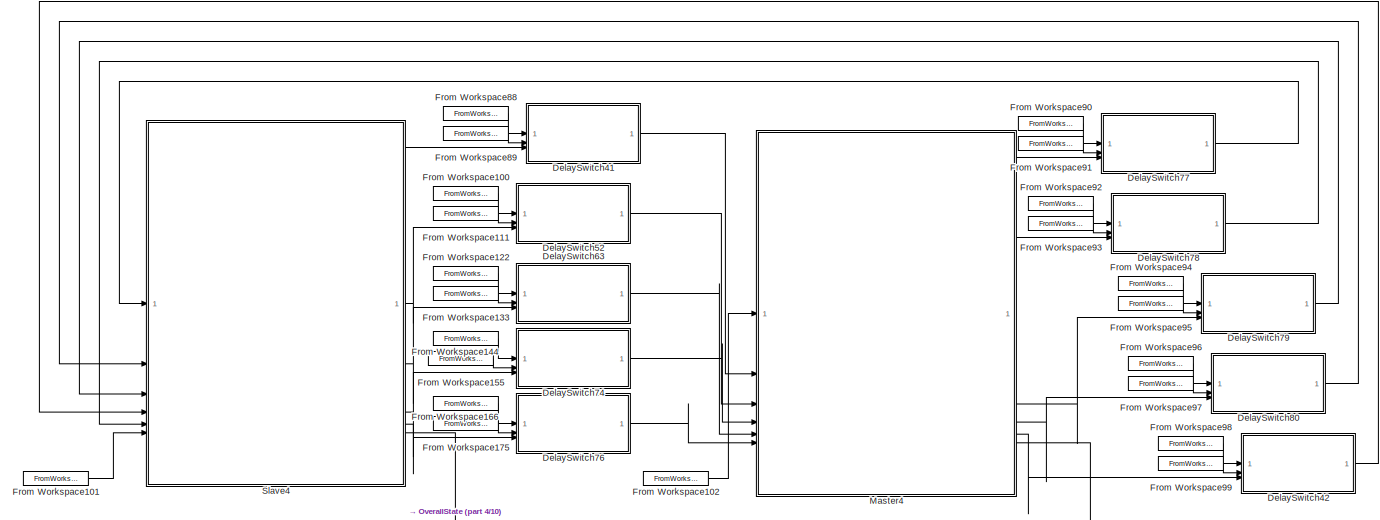
[diagram: root canvas - part 1/10, top left region]
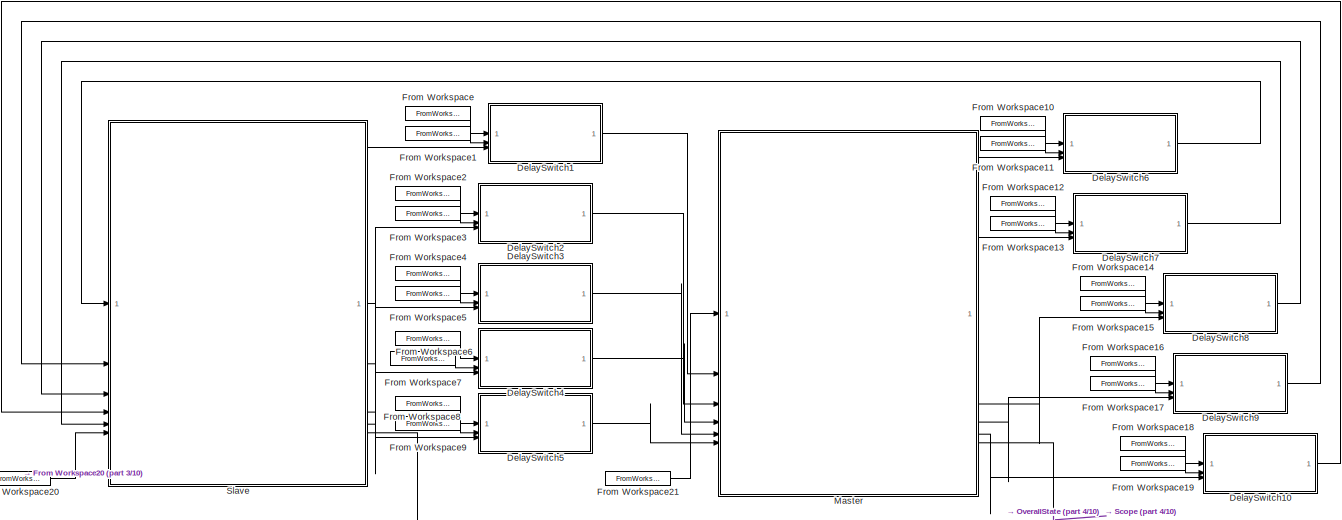
[diagram: root canvas - part 2/10, top right region]
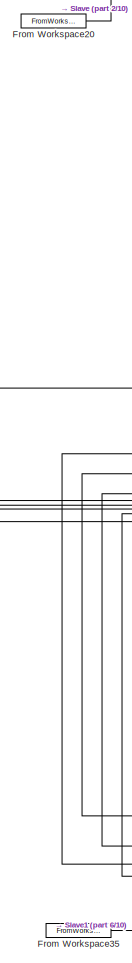
[diagram: root canvas - part 3/10, central region]
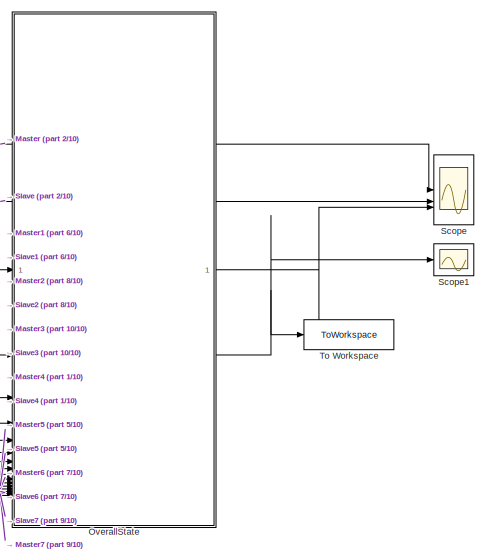
[diagram: root canvas - part 4/10, top right region]
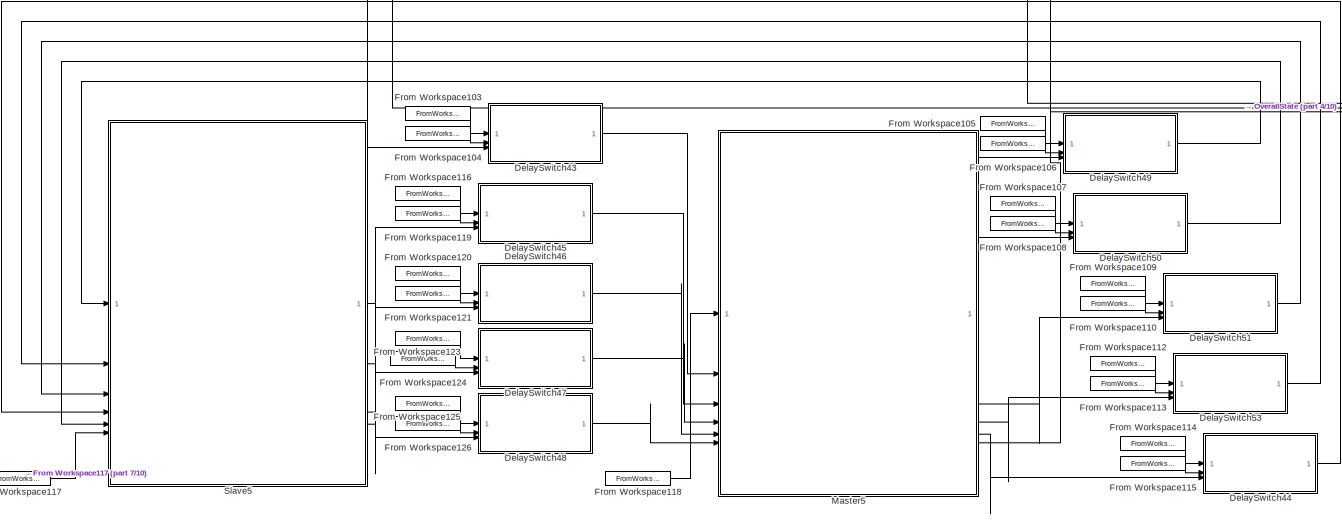
[diagram: root canvas - part 5/10, middle left region]
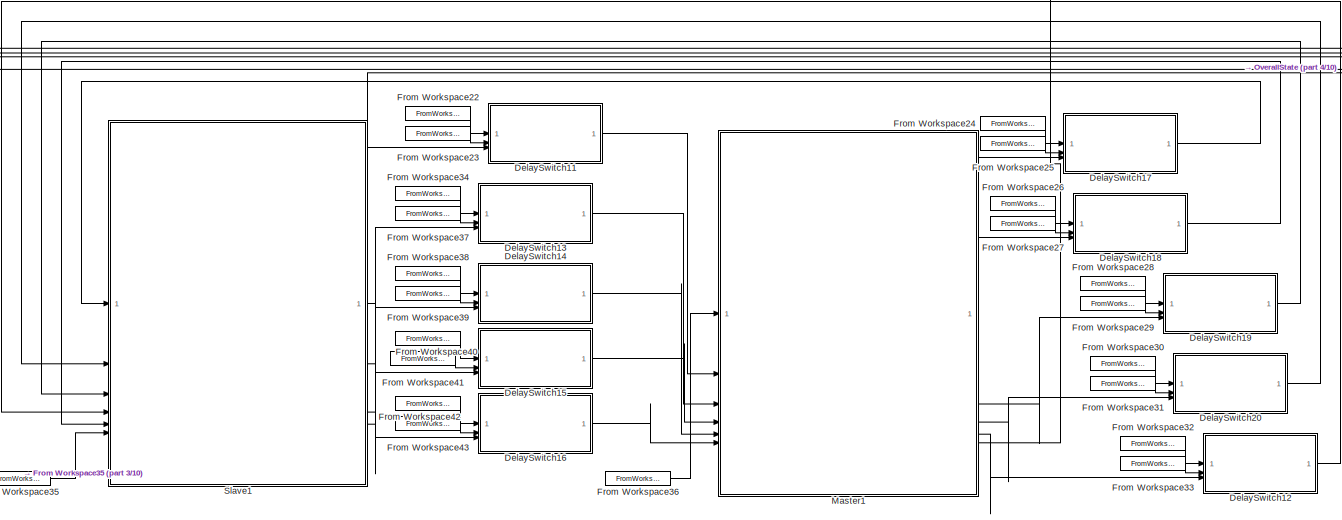
[diagram: root canvas - part 6/10, middle right region]
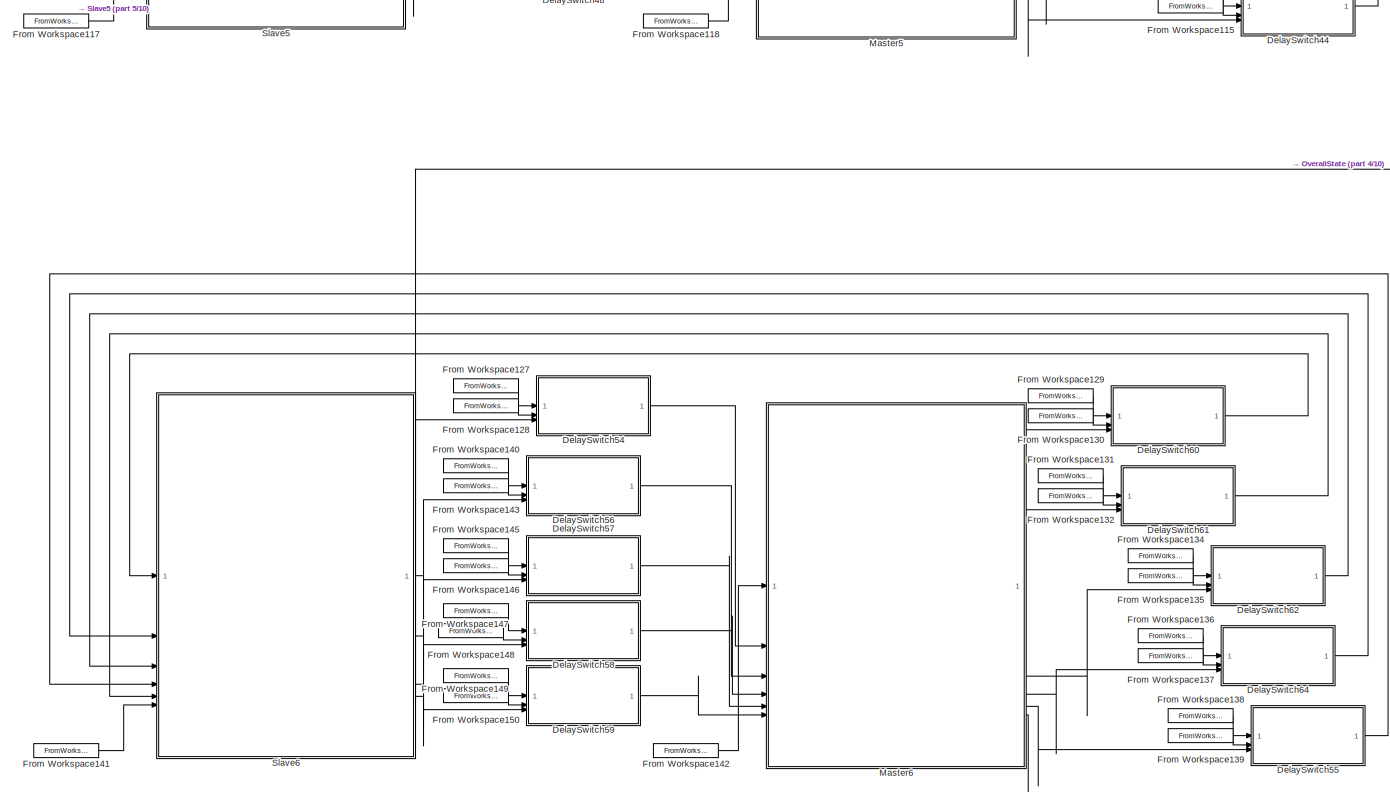
[diagram: root canvas - part 7/10, middle left region]
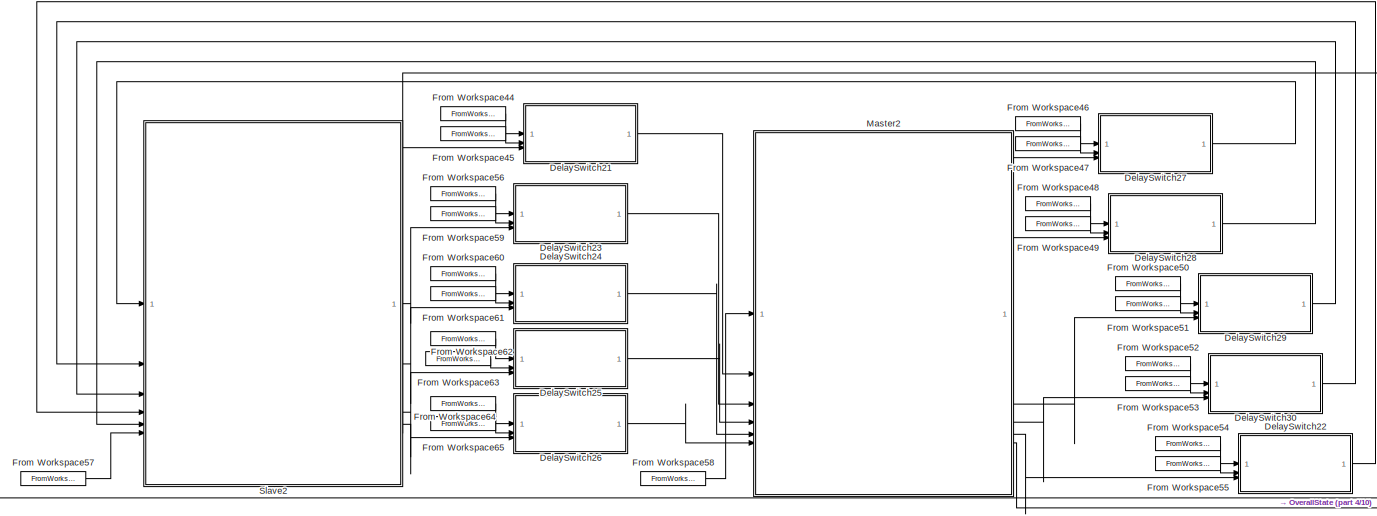
[diagram: root canvas - part 8/10, middle right region]
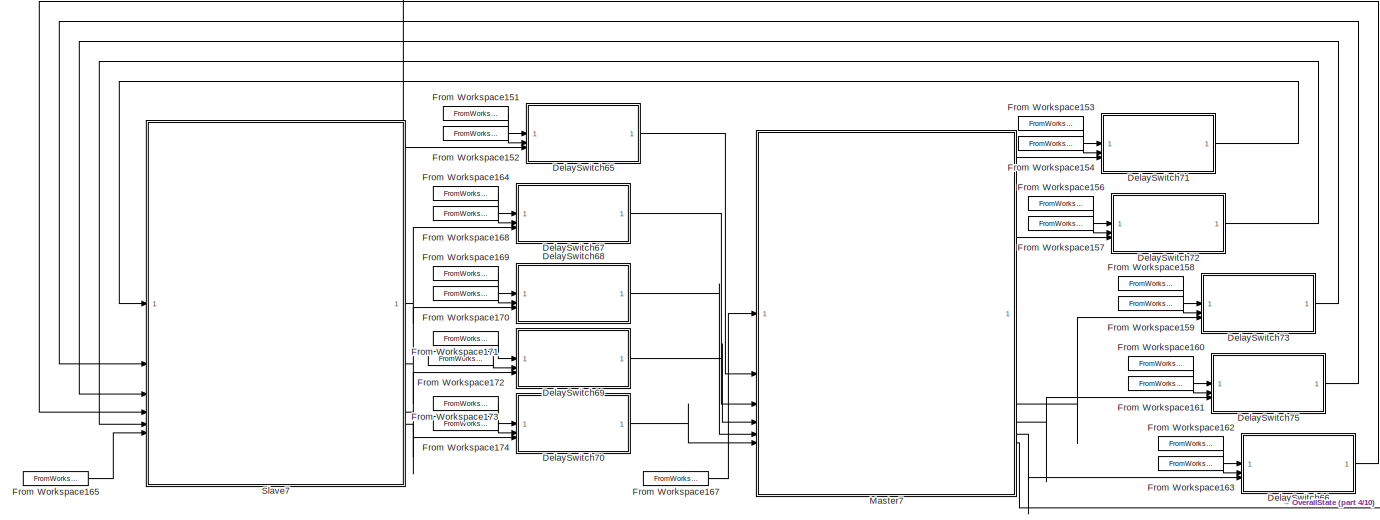
[diagram: root canvas - part 9/10, bottom left region]
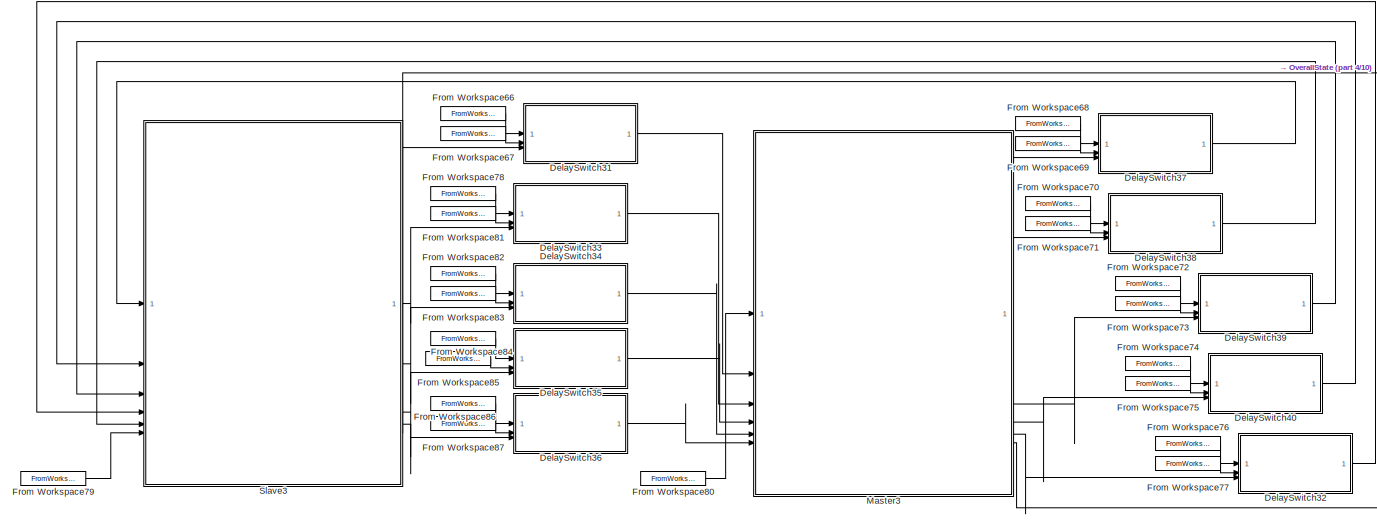
[diagram: root canvas - part 10/10, bottom right region]
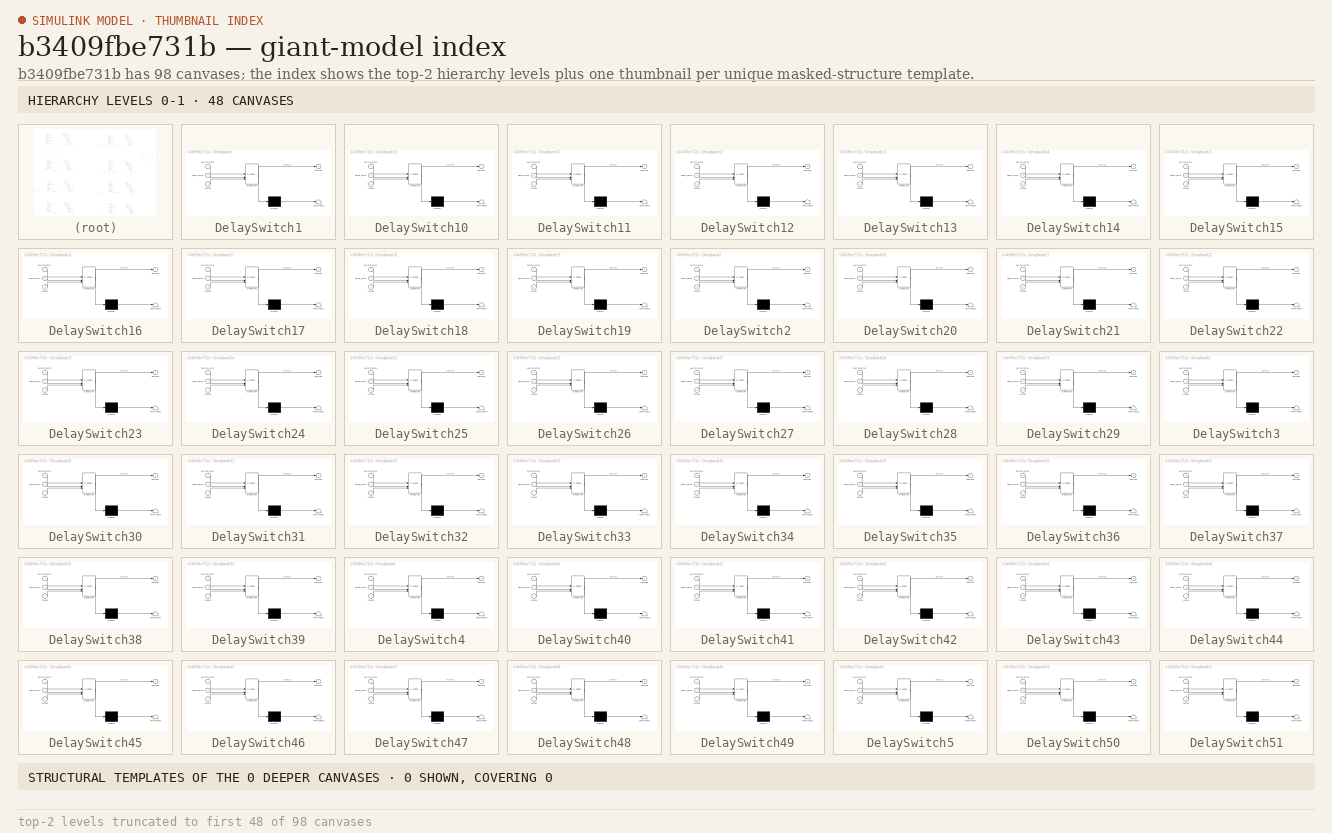
[diagram: thumbnail index - top-2 hierarchy levels (98 canvases (first 48 of 98 shown)) + 0 structural-template representatives of the remaining 0 canvases]
MODEL slx_b3409fbe731b
KIND model
CONFIG AbsTol = auto
CONFIG EnableMultiTasking = off
CONFIG FixedStep = auto
CONFIG InitFcn = RandStream.setGlobalStream(RandStream('mt19937ar','seed',sum(100*clock)));
CONFIG MaxStep = auto
CONFIG MinStep = auto
CONFIG RelTol = 1e-3
CONFIG SampleTimeConstraint = Unconstrained
CONFIG SolverName = VariableStepAuto
CONFIG StartTime = 0.0
CONFIG StopTime = 30
BLOCK [SubSystem] DelaySwitch1
  ErrorFcn = Stateflow.Translate.translate
  PermitHierarchicalResolution = ExplicitOnly
  SFBlockType = Chart
  TreatAsAtomicUnit = on
BLOCK [Demux] DelaySwitch1/ Demux 
  Outputs = 1
BLOCK [S-Function] DelaySwitch1/ SFunction 
  EnableBusSupport = on
  FunctionName = sf_sfun
  InputPortMessageModes = n,n,m
  OutputPortMessageModes = n,m
  PortCounts = [3 2]
  SFcnIsStateOwnerBlock = off
  SFunctionDeploymentMode = off
  Tag = Stateflow S-Function 1
BLOCK [Terminator] DelaySwitch1/ Terminator 
BLOCK [Inport] DelaySwitch1/delay_array
  Port = 2
BLOCK [Inport] DelaySwitch1/inMsg
  Port = 3
BLOCK [Outport] DelaySwitch1/outMsg
BLOCK [Inport] DelaySwitch1/switch_array
BLOCK [SubSystem] DelaySwitch10
  ErrorFcn = Stateflow.Translate.translate
  PermitHierarchicalResolution = ExplicitOnly
  SFBlockType = Chart
  TreatAsAtomicUnit = on
BLOCK [Demux] DelaySwitch10/ Demux 
  Outputs = 1
BLOCK [S-Function] DelaySwitch10/ SFunction 
  EnableBusSupport = on
  FunctionName = sf_sfun
  InputPortMessageModes = n,n,m
  OutputPortMessageModes = n,m
  PortCounts = [3 2]
  SFcnIsStateOwnerBlock = off
  SFunctionDeploymentMode = off
  Tag = Stateflow S-Function 12
BLOCK [Terminator] DelaySwitch10/ Terminator 
BLOCK [Inport] DelaySwitch10/delay_array
  Port = 2
BLOCK [Inport] DelaySwitch10/inMsg
  Port = 3
BLOCK [Outport] DelaySwitch10/outMsg
BLOCK [Inport] DelaySwitch10/switch_array
BLOCK [SubSystem] DelaySwitch11
  ErrorFcn = Stateflow.Translate.translate
  PermitHierarchicalResolution = ExplicitOnly
  SFBlockType = Chart
  TreatAsAtomicUnit = on
BLOCK [Demux] DelaySwitch11/ Demux 
  Outputs = 1
BLOCK [S-Function] DelaySwitch11/ SFunction 
  EnableBusSupport = on
  FunctionName = sf_sfun
  InputPortMessageModes = n,n,m
  OutputPortMessageModes = n,m
  PortCounts = [3 2]
  SFcnIsStateOwnerBlock = off
  SFunctionDeploymentMode = off
  Tag = Stateflow S-Function 14
BLOCK [Terminator] DelaySwitch11/ Terminator 
BLOCK [Inport] DelaySwitch11/delay_array
  Port = 2
BLOCK [Inport] DelaySwitch11/inMsg
  Port = 3
BLOCK [Outport] DelaySwitch11/outMsg
BLOCK [Inport] DelaySwitch11/switch_array
BLOCK [SubSystem] DelaySwitch12
  ErrorFcn = Stateflow.Translate.translate
  PermitHierarchicalResolution = ExplicitOnly
  SFBlockType = Chart
  TreatAsAtomicUnit = on
BLOCK [Demux] DelaySwitch12/ Demux 
  Outputs = 1
BLOCK [S-Function] DelaySwitch12/ SFunction 
  EnableBusSupport = on
  FunctionName = sf_sfun
  InputPortMessageModes = n,n,m
  OutputPortMessageModes = n,m
  PortCounts = [3 2]
  SFcnIsStateOwnerBlock = off
  SFunctionDeploymentMode = off
  Tag = Stateflow S-Function 15
BLOCK [Terminator] DelaySwitch12/ Terminator 
BLOCK [Inport] DelaySwitch12/delay_array
  Port = 2
BLOCK [Inport] DelaySwitch12/inMsg
  Port = 3
BLOCK [Outport] DelaySwitch12/outMsg
BLOCK [Inport] DelaySwitch12/switch_array
BLOCK [SubSystem] DelaySwitch13
  ErrorFcn = Stateflow.Translate.translate
  PermitHierarchicalResolution = ExplicitOnly
  SFBlockType = Chart
  TreatAsAtomicUnit = on
BLOCK [Demux] DelaySwitch13/ Demux 
  Outputs = 1
BLOCK [S-Function] DelaySwitch13/ SFunction 
  EnableBusSupport = on
  FunctionName = sf_sfun
  InputPortMessageModes = n,n,m
  OutputPortMessageModes = n,m
  PortCounts = [3 2]
  SFcnIsStateOwnerBlock = off
  SFunctionDeploymentMode = off
  Tag = Stateflow S-Function 16
BLOCK [Terminator] DelaySwitch13/ Terminator 
BLOCK [Inport] DelaySwitch13/delay_array
  Port = 2
BLOCK [Inport] DelaySwitch13/inMsg
  Port = 3
BLOCK [Outport] DelaySwitch13/outMsg
BLOCK [Inport] DelaySwitch13/switch_array
BLOCK [SubSystem] DelaySwitch14
  ErrorFcn = Stateflow.Translate.translate
  PermitHierarchicalResolution = ExplicitOnly
  SFBlockType = Chart
  TreatAsAtomicUnit = on
BLOCK [Demux] DelaySwitch14/ Demux 
  Outputs = 1
BLOCK [S-Function] DelaySwitch14/ SFunction 
  EnableBusSupport = on
  FunctionName = sf_sfun
  InputPortMessageModes = n,n,m
  OutputPortMessageModes = n,m
  PortCounts = [3 2]
  SFcnIsStateOwnerBlock = off
  SFunctionDeploymentMode = off
  Tag = Stateflow S-Function 17
BLOCK [Terminator] DelaySwitch14/ Terminator 
BLOCK [Inport] DelaySwitch14/delay_array
  Port = 2
BLOCK [Inport] DelaySwitch14/inMsg
  Port = 3
BLOCK [Outport] DelaySwitch14/outMsg
BLOCK [Inport] DelaySwitch14/switch_array
BLOCK [SubSystem] DelaySwitch15
  ErrorFcn = Stateflow.Translate.translate
  PermitHierarchicalResolution = ExplicitOnly
  SFBlockType = Chart
  TreatAsAtomicUnit = on
BLOCK [Demux] DelaySwitch15/ Demux 
  Outputs = 1
BLOCK [S-Function] DelaySwitch15/ SFunction 
  EnableBusSupport = on
  FunctionName = sf_sfun
  InputPortMessageModes = n,n,m
  OutputPortMessageModes = n,m
  PortCounts = [3 2]
  SFcnIsStateOwnerBlock = off
  SFunctionDeploymentMode = off
  Tag = Stateflow S-Function 18
BLOCK [Terminator] DelaySwitch15/ Terminator 
BLOCK [Inport] DelaySwitch15/delay_array
  Port = 2
BLOCK [Inport] DelaySwitch15/inMsg
  Port = 3
BLOCK [Outport] DelaySwitch15/outMsg
BLOCK [Inport] DelaySwitch15/switch_array
BLOCK [SubSystem] DelaySwitch16
  ErrorFcn = Stateflow.Translate.translate
  PermitHierarchicalResolution = ExplicitOnly
  SFBlockType = Chart
  TreatAsAtomicUnit = on
BLOCK [Demux] DelaySwitch16/ Demux 
  Outputs = 1
BLOCK [S-Function] DelaySwitch16/ SFunction 
  EnableBusSupport = on
  FunctionName = sf_sfun
  InputPortMessageModes = n,n,m
  OutputPortMessageModes = n,m
  PortCounts = [3 2]
  SFcnIsStateOwnerBlock = off
  SFunctionDeploymentMode = off
  Tag = Stateflow S-Function 19
BLOCK [Terminator] DelaySwitch16/ Terminator 
BLOCK [Inport] DelaySwitch16/delay_array
  Port = 2
BLOCK [Inport] DelaySwitch16/inMsg
  Port = 3
BLOCK [Outport] DelaySwitch16/outMsg
BLOCK [Inport] DelaySwitch16/switch_array
BLOCK [SubSystem] DelaySwitch17
  ErrorFcn = Stateflow.Translate.translate
  PermitHierarchicalResolution = ExplicitOnly
  SFBlockType = Chart
  TreatAsAtomicUnit = on
BLOCK [Demux] DelaySwitch17/ Demux 
  Outputs = 1
BLOCK [S-Function] DelaySwitch17/ SFunction 
  EnableBusSupport = on
  FunctionName = sf_sfun
  InputPortMessageModes = n,n,m
  OutputPortMessageModes = n,m
  PortCounts = [3 2]
  SFcnIsStateOwnerBlock = off
  SFunctionDeploymentMode = off
  Tag = Stateflow S-Function 20
BLOCK [Terminator] DelaySwitch17/ Terminator 
BLOCK [Inport] DelaySwitch17/delay_array
  Port = 2
BLOCK [Inport] DelaySwitch17/inMsg
  Port = 3
BLOCK [Outport] DelaySwitch17/outMsg
BLOCK [Inport] DelaySwitch17/switch_array
BLOCK [SubSystem] DelaySwitch18
  ErrorFcn = Stateflow.Translate.translate
  PermitHierarchicalResolution = ExplicitOnly
  SFBlockType = Chart
  TreatAsAtomicUnit = on
BLOCK [Demux] DelaySwitch18/ Demux 
  Outputs = 1
BLOCK [S-Function] DelaySwitch18/ SFunction 
  EnableBusSupport = on
  FunctionName = sf_sfun
  InputPortMessageModes = n,n,m
  OutputPortMessageModes = n,m
  PortCounts = [3 2]
  SFcnIsStateOwnerBlock = off
  SFunctionDeploymentMode = off
  Tag = Stateflow S-Function 21
BLOCK [Terminator] DelaySwitch18/ Terminator 
BLOCK [Inport] DelaySwitch18/delay_array
  Port = 2
BLOCK [Inport] DelaySwitch18/inMsg
  Port = 3
BLOCK [Outport] DelaySwitch18/outMsg
BLOCK [Inport] DelaySwitch18/switch_array
BLOCK [SubSystem] DelaySwitch19
  ErrorFcn = Stateflow.Translate.translate
  PermitHierarchicalResolution = ExplicitOnly
  SFBlockType = Chart
  TreatAsAtomicUnit = on
BLOCK [Demux] DelaySwitch19/ Demux 
  Outputs = 1
BLOCK [S-Function] DelaySwitch19/ SFunction 
  EnableBusSupport = on
  FunctionName = sf_sfun
  InputPortMessageModes = n,n,m
  OutputPortMessageModes = n,m
  PortCounts = [3 2]
  SFcnIsStateOwnerBlock = off
  SFunctionDeploymentMode = off
  Tag = Stateflow S-Function 22
BLOCK [Terminator] DelaySwitch19/ Terminator 
BLOCK [Inport] DelaySwitch19/delay_array
  Port = 2
BLOCK [Inport] DelaySwitch19/inMsg
  Port = 3
BLOCK [Outport] DelaySwitch19/outMsg
BLOCK [Inport] DelaySwitch19/switch_array
BLOCK [SubSystem] DelaySwitch2
  ErrorFcn = Stateflow.Translate.translate
  PermitHierarchicalResolution = ExplicitOnly
  SFBlockType = Chart
  TreatAsAtomicUnit = on
BLOCK [Demux] DelaySwitch2/ Demux 
  Outputs = 1
BLOCK [S-Function] DelaySwitch2/ SFunction 
  EnableBusSupport = on
  FunctionName = sf_sfun
  InputPortMessageModes = n,n,m
  OutputPortMessageModes = n,m
  PortCounts = [3 2]
  SFcnIsStateOwnerBlock = off
  SFunctionDeploymentMode = off
  Tag = Stateflow S-Function 2
BLOCK [Terminator] DelaySwitch2/ Terminator 
BLOCK [Inport] DelaySwitch2/delay_array
  Port = 2
BLOCK [Inport] DelaySwitch2/inMsg
  Port = 3
BLOCK [Outport] DelaySwitch2/outMsg
BLOCK [Inport] DelaySwitch2/switch_array
BLOCK [SubSystem] DelaySwitch20
  ErrorFcn = Stateflow.Translate.translate
  PermitHierarchicalResolution = ExplicitOnly
  SFBlockType = Chart
  TreatAsAtomicUnit = on
BLOCK [Demux] DelaySwitch20/ Demux 
  Outputs = 1
BLOCK [S-Function] DelaySwitch20/ SFunction 
  EnableBusSupport = on
  FunctionName = sf_sfun
  InputPortMessageModes = n,n,m
  OutputPortMessageModes = n,m
  PortCounts = [3 2]
  SFcnIsStateOwnerBlock = off
  SFunctionDeploymentMode = off
  Tag = Stateflow S-Function 23
BLOCK [Terminator] DelaySwitch20/ Terminator 
BLOCK [Inport] DelaySwitch20/delay_array
  Port = 2
BLOCK [Inport] DelaySwitch20/inMsg
  Port = 3
BLOCK [Outport] DelaySwitch20/outMsg
BLOCK [Inport] DelaySwitch20/switch_array
BLOCK [SubSystem] DelaySwitch21
  ErrorFcn = Stateflow.Translate.translate
  PermitHierarchicalResolution = ExplicitOnly
  SFBlockType = Chart
  TreatAsAtomicUnit = on
BLOCK [Demux] DelaySwitch21/ Demux 
  Outputs = 1
BLOCK [S-Function] DelaySwitch21/ SFunction 
  EnableBusSupport = on
  FunctionName = sf_sfun
  InputPortMessageModes = n,n,m
  OutputPortMessageModes = n,m
  PortCounts = [3 2]
  SFcnIsStateOwnerBlock = off
  SFunctionDeploymentMode = off
  Tag = Stateflow S-Function 26
BLOCK [Terminator] DelaySwitch21/ Terminator 
BLOCK [Inport] DelaySwitch21/delay_array
  Port = 2
BLOCK [Inport] DelaySwitch21/inMsg
  Port = 3
BLOCK [Outport] DelaySwitch21/outMsg
BLOCK [Inport] DelaySwitch21/switch_array
BLOCK [SubSystem] DelaySwitch22
  ErrorFcn = Stateflow.Translate.translate
  PermitHierarchicalResolution = ExplicitOnly
  SFBlockType = Chart
  TreatAsAtomicUnit = on
BLOCK [Demux] DelaySwitch22/ Demux 
  Outputs = 1
BLOCK [S-Function] DelaySwitch22/ SFunction 
  EnableBusSupport = on
  FunctionName = sf_sfun
  InputPortMessageModes = n,n,m
  OutputPortMessageModes = n,m
  PortCounts = [3 2]
  SFcnIsStateOwnerBlock = off
  SFunctionDeploymentMode = off
  Tag = Stateflow S-Function 27
BLOCK [Terminator] DelaySwitch22/ Terminator 
BLOCK [Inport] DelaySwitch22/delay_array
  Port = 2
BLOCK [Inport] DelaySwitch22/inMsg
  Port = 3
BLOCK [Outport] DelaySwitch22/outMsg
BLOCK [Inport] DelaySwitch22/switch_array
BLOCK [SubSystem] DelaySwitch23
  ErrorFcn = Stateflow.Translate.translate
  PermitHierarchicalResolution = ExplicitOnly
  SFBlockType = Chart
  TreatAsAtomicUnit = on
BLOCK [Demux] DelaySwitch23/ Demux 
  Outputs = 1
BLOCK [S-Function] DelaySwitch23/ SFunction 
  EnableBusSupport = on
  FunctionName = sf_sfun
  InputPortMessageModes = n,n,m
  OutputPortMessageModes = n,m
  PortCounts = [3 2]
  SFcnIsStateOwnerBlock = off
  SFunctionDeploymentMode = off
  Tag = Stateflow S-Function 28
BLOCK [Terminator] DelaySwitch23/ Terminator 
BLOCK [Inport] DelaySwitch23/delay_array
  Port = 2
BLOCK [Inport] DelaySwitch23/inMsg
  Port = 3
BLOCK [Outport] DelaySwitch23/outMsg
BLOCK [Inport] DelaySwitch23/switch_array
BLOCK [SubSystem] DelaySwitch24
  ErrorFcn = Stateflow.Translate.translate
  PermitHierarchicalResolution = ExplicitOnly
  SFBlockType = Chart
  TreatAsAtomicUnit = on
BLOCK [Demux] DelaySwitch24/ Demux 
  Outputs = 1
BLOCK [S-Function] DelaySwitch24/ SFunction 
  EnableBusSupport = on
  FunctionName = sf_sfun
  InputPortMessageModes = n,n,m
  OutputPortMessageModes = n,m
  PortCounts = [3 2]
  SFcnIsStateOwnerBlock = off
  SFunctionDeploymentMode = off
  Tag = Stateflow S-Function 29
BLOCK [Terminator] DelaySwitch24/ Terminator 
BLOCK [Inport] DelaySwitch24/delay_array
  Port = 2
BLOCK [Inport] DelaySwitch24/inMsg
  Port = 3
BLOCK [Outport] DelaySwitch24/outMsg
BLOCK [Inport] DelaySwitch24/switch_array
BLOCK [SubSystem] DelaySwitch25
  ErrorFcn = Stateflow.Translate.translate
  PermitHierarchicalResolution = ExplicitOnly
  SFBlockType = Chart
  TreatAsAtomicUnit = on
BLOCK [Demux] DelaySwitch25/ Demux 
  Outputs = 1
BLOCK [S-Function] DelaySwitch25/ SFunction 
  EnableBusSupport = on
  FunctionName = sf_sfun
  InputPortMessageModes = n,n,m
  OutputPortMessageModes = n,m
  PortCounts = [3 2]
  SFcnIsStateOwnerBlock = off
  SFunctionDeploymentMode = off
  Tag = Stateflow S-Function 30
BLOCK [Terminator] DelaySwitch25/ Terminator 
BLOCK [Inport] DelaySwitch25/delay_array
  Port = 2
BLOCK [Inport] DelaySwitch25/inMsg
  Port = 3
BLOCK [Outport] DelaySwitch25/outMsg
BLOCK [Inport] DelaySwitch25/switch_array
BLOCK [SubSystem] DelaySwitch26
  ErrorFcn = Stateflow.Translate.translate
  PermitHierarchicalResolution = ExplicitOnly
  SFBlockType = Chart
  TreatAsAtomicUnit = on
BLOCK [Demux] DelaySwitch26/ Demux 
  Outputs = 1
BLOCK [S-Function] DelaySwitch26/ SFunction 
  EnableBusSupport = on
  FunctionName = sf_sfun
  InputPortMessageModes = n,n,m
  OutputPortMessageModes = n,m
  PortCounts = [3 2]
  SFcnIsStateOwnerBlock = off
  SFunctionDeploymentMode = off
  Tag = Stateflow S-Function 31
BLOCK [Terminator] DelaySwitch26/ Terminator 
BLOCK [Inport] DelaySwitch26/delay_array
  Port = 2
BLOCK [Inport] DelaySwitch26/inMsg
  Port = 3
BLOCK [Outport] DelaySwitch26/outMsg
BLOCK [Inport] DelaySwitch26/switch_array
BLOCK [SubSystem] DelaySwitch27
  ErrorFcn = Stateflow.Translate.translate
  PermitHierarchicalResolution = ExplicitOnly
  SFBlockType = Chart
  TreatAsAtomicUnit = on
BLOCK [Demux] DelaySwitch27/ Demux 
  Outputs = 1
BLOCK [S-Function] DelaySwitch27/ SFunction 
  EnableBusSupport = on
  FunctionName = sf_sfun
  InputPortMessageModes = n,n,m
  OutputPortMessageModes = n,m
  PortCounts = [3 2]
  SFcnIsStateOwnerBlock = off
  SFunctionDeploymentMode = off
  Tag = Stateflow S-Function 32
BLOCK [Terminator] DelaySwitch27/ Terminator 
BLOCK [Inport] DelaySwitch27/delay_array
  Port = 2
BLOCK [Inport] DelaySwitch27/inMsg
  Port = 3
BLOCK [Outport] DelaySwitch27/outMsg
BLOCK [Inport] DelaySwitch27/switch_array
BLOCK [SubSystem] DelaySwitch28
  ErrorFcn = Stateflow.Translate.translate
  PermitHierarchicalResolution = ExplicitOnly
  SFBlockType = Chart
  TreatAsAtomicUnit = on
BLOCK [Demux] DelaySwitch28/ Demux 
  Outputs = 1
BLOCK [S-Function] DelaySwitch28/ SFunction 
  EnableBusSupport = on
  FunctionName = sf_sfun
  InputPortMessageModes = n,n,m
  OutputPortMessageModes = n,m
  PortCounts = [3 2]
  SFcnIsStateOwnerBlock = off
  SFunctionDeploymentMode = off
  Tag = Stateflow S-Function 33
BLOCK [Terminator] DelaySwitch28/ Terminator 
BLOCK [Inport] DelaySwitch28/delay_array
  Port = 2
BLOCK [Inport] DelaySwitch28/inMsg
  Port = 3
BLOCK [Outport] DelaySwitch28/outMsg
BLOCK [Inport] DelaySwitch28/switch_array
BLOCK [SubSystem] DelaySwitch29
  ErrorFcn = Stateflow.Translate.translate
  PermitHierarchicalResolution = ExplicitOnly
  SFBlockType = Chart
  TreatAsAtomicUnit = on
BLOCK [Demux] DelaySwitch29/ Demux 
  Outputs = 1
BLOCK [S-Function] DelaySwitch29/ SFunction 
  EnableBusSupport = on
  FunctionName = sf_sfun
  InputPortMessageModes = n,n,m
  OutputPortMessageModes = n,m
  PortCounts = [3 2]
  SFcnIsStateOwnerBlock = off
  SFunctionDeploymentMode = off
  Tag = Stateflow S-Function 34
BLOCK [Terminator] DelaySwitch29/ Terminator 
BLOCK [Inport] DelaySwitch29/delay_array
  Port = 2
BLOCK [Inport] DelaySwitch29/inMsg
  Port = 3
BLOCK [Outport] DelaySwitch29/outMsg
BLOCK [Inport] DelaySwitch29/switch_array
BLOCK [SubSystem] DelaySwitch3
  ErrorFcn = Stateflow.Translate.translate
  PermitHierarchicalResolution = ExplicitOnly
  SFBlockType = Chart
  TreatAsAtomicUnit = on
BLOCK [Demux] DelaySwitch3/ Demux 
  Outputs = 1
BLOCK [S-Function] DelaySwitch3/ SFunction 
  EnableBusSupport = on
  FunctionName = sf_sfun
  InputPortMessageModes = n,n,m
  OutputPortMessageModes = n,m
  PortCounts = [3 2]
  SFcnIsStateOwnerBlock = off
  SFunctionDeploymentMode = off
  Tag = Stateflow S-Function 4
BLOCK [Terminator] DelaySwitch3/ Terminator 
BLOCK [Inport] DelaySwitch3/delay_array
  Port = 2
BLOCK [Inport] DelaySwitch3/inMsg
  Port = 3
BLOCK [Outport] DelaySwitch3/outMsg
BLOCK [Inport] DelaySwitch3/switch_array
BLOCK [SubSystem] DelaySwitch30
  ErrorFcn = Stateflow.Translate.translate
  PermitHierarchicalResolution = ExplicitOnly
  SFBlockType = Chart
  TreatAsAtomicUnit = on
BLOCK [Demux] DelaySwitch30/ Demux 
  Outputs = 1
BLOCK [S-Function] DelaySwitch30/ SFunction 
  EnableBusSupport = on
  FunctionName = sf_sfun
  InputPortMessageModes = n,n,m
  OutputPortMessageModes = n,m
  PortCounts = [3 2]
  SFcnIsStateOwnerBlock = off
  SFunctionDeploymentMode = off
  Tag = Stateflow S-Function 35
BLOCK [Terminator] DelaySwitch30/ Terminator 
BLOCK [Inport] DelaySwitch30/delay_array
  Port = 2
BLOCK [Inport] DelaySwitch30/inMsg
  Port = 3
BLOCK [Outport] DelaySwitch30/outMsg
BLOCK [Inport] DelaySwitch30/switch_array
BLOCK [SubSystem] DelaySwitch31
  ErrorFcn = Stateflow.Translate.translate
  PermitHierarchicalResolution = ExplicitOnly
  SFBlockType = Chart
  TreatAsAtomicUnit = on
BLOCK [Demux] DelaySwitch31/ Demux 
  Outputs = 1
BLOCK [S-Function] DelaySwitch31/ SFunction 
  EnableBusSupport = on
  FunctionName = sf_sfun
  InputPortMessageModes = n,n,m
  OutputPortMessageModes = n,m
  PortCounts = [3 2]
  SFcnIsStateOwnerBlock = off
  SFunctionDeploymentMode = off
  Tag = Stateflow S-Function 38
BLOCK [Terminator] DelaySwitch31/ Terminator 
BLOCK [Inport] DelaySwitch31/delay_array
  Port = 2
BLOCK [Inport] DelaySwitch31/inMsg
  Port = 3
BLOCK [Outport] DelaySwitch31/outMsg
BLOCK [Inport] DelaySwitch31/switch_array
BLOCK [SubSystem] DelaySwitch32
  ErrorFcn = Stateflow.Translate.translate
  PermitHierarchicalResolution = ExplicitOnly
  SFBlockType = Chart
  TreatAsAtomicUnit = on
BLOCK [Demux] DelaySwitch32/ Demux 
  Outputs = 1
BLOCK [S-Function] DelaySwitch32/ SFunction 
  EnableBusSupport = on
  FunctionName = sf_sfun
  InputPortMessageModes = n,n,m
  OutputPortMessageModes = n,m
  PortCounts = [3 2]
  SFcnIsStateOwnerBlock = off
  SFunctionDeploymentMode = off
  Tag = Stateflow S-Function 39
BLOCK [Terminator] DelaySwitch32/ Terminator 
BLOCK [Inport] DelaySwitch32/delay_array
  Port = 2
BLOCK [Inport] DelaySwitch32/inMsg
  Port = 3
BLOCK [Outport] DelaySwitch32/outMsg
BLOCK [Inport] DelaySwitch32/switch_array
BLOCK [SubSystem] DelaySwitch33
  ErrorFcn = Stateflow.Translate.translate
  PermitHierarchicalResolution = ExplicitOnly
  SFBlockType = Chart
  TreatAsAtomicUnit = on
BLOCK [Demux] DelaySwitch33/ Demux 
  Outputs = 1
BLOCK [S-Function] DelaySwitch33/ SFunction 
  EnableBusSupport = on
  FunctionName = sf_sfun
  InputPortMessageModes = n,n,m
  OutputPortMessageModes = n,m
  PortCounts = [3 2]
  SFcnIsStateOwnerBlock = off
  SFunctionDeploymentMode = off
  Tag = Stateflow S-Function 40
BLOCK [Terminator] DelaySwitch33/ Terminator 
BLOCK [Inport] DelaySwitch33/delay_array
  Port = 2
BLOCK [Inport] DelaySwitch33/inMsg
  Port = 3
BLOCK [Outport] DelaySwitch33/outMsg
BLOCK [Inport] DelaySwitch33/switch_array
BLOCK [SubSystem] DelaySwitch34
  ErrorFcn = Stateflow.Translate.translate
  PermitHierarchicalResolution = ExplicitOnly
  SFBlockType = Chart
  TreatAsAtomicUnit = on
BLOCK [Demux] DelaySwitch34/ Demux 
  Outputs = 1
BLOCK [S-Function] DelaySwitch34/ SFunction 
  EnableBusSupport = on
  FunctionName = sf_sfun
  InputPortMessageModes = n,n,m
  OutputPortMessageModes = n,m
  PortCounts = [3 2]
  SFcnIsStateOwnerBlock = off
  SFunctionDeploymentMode = off
  Tag = Stateflow S-Function 41
BLOCK [Terminator] DelaySwitch34/ Terminator 
BLOCK [Inport] DelaySwitch34/delay_array
  Port = 2
BLOCK [Inport] DelaySwitch34/inMsg
  Port = 3
BLOCK [Outport] DelaySwitch34/outMsg
BLOCK [Inport] DelaySwitch34/switch_array
BLOCK [SubSystem] DelaySwitch35
  ErrorFcn = Stateflow.Translate.translate
  PermitHierarchicalResolution = ExplicitOnly
  SFBlockType = Chart
  TreatAsAtomicUnit = on
BLOCK [Demux] DelaySwitch35/ Demux 
  Outputs = 1
BLOCK [S-Function] DelaySwitch35/ SFunction 
  EnableBusSupport = on
  FunctionName = sf_sfun
  InputPortMessageModes = n,n,m
  OutputPortMessageModes = n,m
  PortCounts = [3 2]
  SFcnIsStateOwnerBlock = off
  SFunctionDeploymentMode = off
  Tag = Stateflow S-Function 42
BLOCK [Terminator] DelaySwitch35/ Terminator 
BLOCK [Inport] DelaySwitch35/delay_array
  Port = 2
BLOCK [Inport] DelaySwitch35/inMsg
  Port = 3
BLOCK [Outport] DelaySwitch35/outMsg
BLOCK [Inport] DelaySwitch35/switch_array
BLOCK [SubSystem] DelaySwitch36
  ErrorFcn = Stateflow.Translate.translate
  PermitHierarchicalResolution = ExplicitOnly
  SFBlockType = Chart
  TreatAsAtomicUnit = on
BLOCK [Demux] DelaySwitch36/ Demux 
  Outputs = 1
BLOCK [S-Function] DelaySwitch36/ SFunction 
  EnableBusSupport = on
  FunctionName = sf_sfun
  InputPortMessageModes = n,n,m
  OutputPortMessageModes = n,m
  PortCounts = [3 2]
  SFcnIsStateOwnerBlock = off
  SFunctionDeploymentMode = off
  Tag = Stateflow S-Function 43
BLOCK [Terminator] DelaySwitch36/ Terminator 
BLOCK [Inport] DelaySwitch36/delay_array
  Port = 2
BLOCK [Inport] DelaySwitch36/inMsg
  Port = 3
BLOCK [Outport] DelaySwitch36/outMsg
BLOCK [Inport] DelaySwitch36/switch_array
BLOCK [SubSystem] DelaySwitch37
  ErrorFcn = Stateflow.Translate.translate
  PermitHierarchicalResolution = ExplicitOnly
  SFBlockType = Chart
  TreatAsAtomicUnit = on
BLOCK [Demux] DelaySwitch37/ Demux 
  Outputs = 1
BLOCK [S-Function] DelaySwitch37/ SFunction 
  EnableBusSupport = on
  FunctionName = sf_sfun
  InputPortMessageModes = n,n,m
  OutputPortMessageModes = n,m
  PortCounts = [3 2]
  SFcnIsStateOwnerBlock = off
  SFunctionDeploymentMode = off
  Tag = Stateflow S-Function 44
BLOCK [Terminator] DelaySwitch37/ Terminator 
BLOCK [Inport] DelaySwitch37/delay_array
  Port = 2
BLOCK [Inport] DelaySwitch37/inMsg
  Port = 3
BLOCK [Outport] DelaySwitch37/outMsg
BLOCK [Inport] DelaySwitch37/switch_array
BLOCK [SubSystem] DelaySwitch38
  ErrorFcn = Stateflow.Translate.translate
  PermitHierarchicalResolution = ExplicitOnly
  SFBlockType = Chart
  TreatAsAtomicUnit = on
BLOCK [Demux] DelaySwitch38/ Demux 
  Outputs = 1
BLOCK [S-Function] DelaySwitch38/ SFunction 
  EnableBusSupport = on
  FunctionName = sf_sfun
  InputPortMessageModes = n,n,m
  OutputPortMessageModes = n,m
  PortCounts = [3 2]
  SFcnIsStateOwnerBlock = off
  SFunctionDeploymentMode = off
  Tag = Stateflow S-Function 45
BLOCK [Terminator] DelaySwitch38/ Terminator 
BLOCK [Inport] DelaySwitch38/delay_array
  Port = 2
BLOCK [Inport] DelaySwitch38/inMsg
  Port = 3
BLOCK [Outport] DelaySwitch38/outMsg
BLOCK [Inport] DelaySwitch38/switch_array
BLOCK [SubSystem] DelaySwitch39
  ErrorFcn = Stateflow.Translate.translate
  PermitHierarchicalResolution = ExplicitOnly
  SFBlockType = Chart
  TreatAsAtomicUnit = on
BLOCK [Demux] DelaySwitch39/ Demux 
  Outputs = 1
BLOCK [S-Function] DelaySwitch39/ SFunction 
  EnableBusSupport = on
  FunctionName = sf_sfun
  InputPortMessageModes = n,n,m
  OutputPortMessageModes = n,m
  PortCounts = [3 2]
  SFcnIsStateOwnerBlock = off
  SFunctionDeploymentMode = off
  Tag = Stateflow S-Function 46
BLOCK [Terminator] DelaySwitch39/ Terminator 
BLOCK [Inport] DelaySwitch39/delay_array
  Port = 2
BLOCK [Inport] DelaySwitch39/inMsg
  Port = 3
BLOCK [Outport] DelaySwitch39/outMsg
BLOCK [Inport] DelaySwitch39/switch_array
BLOCK [SubSystem] DelaySwitch4
  ErrorFcn = Stateflow.Translate.translate
  PermitHierarchicalResolution = ExplicitOnly
  SFBlockType = Chart
  TreatAsAtomicUnit = on
BLOCK [Demux] DelaySwitch4/ Demux 
  Outputs = 1
BLOCK [S-Function] DelaySwitch4/ SFunction 
  EnableBusSupport = on
  FunctionName = sf_sfun
  InputPortMessageModes = n,n,m
  OutputPortMessageModes = n,m
  PortCounts = [3 2]
  SFcnIsStateOwnerBlock = off
  SFunctionDeploymentMode = off
  Tag = Stateflow S-Function 5
BLOCK [Terminator] DelaySwitch4/ Terminator 
BLOCK [Inport] DelaySwitch4/delay_array
  Port = 2
BLOCK [Inport] DelaySwitch4/inMsg
  Port = 3
BLOCK [Outport] DelaySwitch4/outMsg
BLOCK [Inport] DelaySwitch4/switch_array
BLOCK [SubSystem] DelaySwitch40
  ErrorFcn = Stateflow.Translate.translate
  PermitHierarchicalResolution = ExplicitOnly
  SFBlockType = Chart
  TreatAsAtomicUnit = on
BLOCK [Demux] DelaySwitch40/ Demux 
  Outputs = 1
BLOCK [S-Function] DelaySwitch40/ SFunction 
  EnableBusSupport = on
  FunctionName = sf_sfun
  InputPortMessageModes = n,n,m
  OutputPortMessageModes = n,m
  PortCounts = [3 2]
  SFcnIsStateOwnerBlock = off
  SFunctionDeploymentMode = off
  Tag = Stateflow S-Function 47
BLOCK [Terminator] DelaySwitch40/ Terminator 
BLOCK [Inport] DelaySwitch40/delay_array
  Port = 2
BLOCK [Inport] DelaySwitch40/inMsg
  Port = 3
BLOCK [Outport] DelaySwitch40/outMsg
BLOCK [Inport] DelaySwitch40/switch_array
BLOCK [SubSystem] DelaySwitch41
  ErrorFcn = Stateflow.Translate.translate
  PermitHierarchicalResolution = ExplicitOnly
  SFBlockType = Chart
  TreatAsAtomicUnit = on
BLOCK [Demux] DelaySwitch41/ Demux 
  Outputs = 1
BLOCK [S-Function] DelaySwitch41/ SFunction 
  EnableBusSupport = on
  FunctionName = sf_sfun
  InputPortMessageModes = n,n,m
  OutputPortMessageModes = n,m
  PortCounts = [3 2]
  SFcnIsStateOwnerBlock = off
  SFunctionDeploymentMode = off
  Tag = Stateflow S-Function 50
BLOCK [Terminator] DelaySwitch41/ Terminator 
BLOCK [Inport] DelaySwitch41/delay_array
  Port = 2
BLOCK [Inport] DelaySwitch41/inMsg
  Port = 3
BLOCK [Outport] DelaySwitch41/outMsg
BLOCK [Inport] DelaySwitch41/switch_array
BLOCK [SubSystem] DelaySwitch42
  ErrorFcn = Stateflow.Translate.translate
  PermitHierarchicalResolution = ExplicitOnly
  SFBlockType = Chart
  TreatAsAtomicUnit = on
BLOCK [Demux] DelaySwitch42/ Demux 
  Outputs = 1
BLOCK [S-Function] DelaySwitch42/ SFunction 
  EnableBusSupport = on
  FunctionName = sf_sfun
  InputPortMessageModes = n,n,m
  OutputPortMessageModes = n,m
  PortCounts = [3 2]
  SFcnIsStateOwnerBlock = off
  SFunctionDeploymentMode = off
  Tag = Stateflow S-Function 51
BLOCK [Terminator] DelaySwitch42/ Terminator 
BLOCK [Inport] DelaySwitch42/delay_array
  Port = 2
BLOCK [Inport] DelaySwitch42/inMsg
  Port = 3
BLOCK [Outport] DelaySwitch42/outMsg
BLOCK [Inport] DelaySwitch42/switch_array
BLOCK [SubSystem] DelaySwitch43
  ErrorFcn = Stateflow.Translate.translate
  PermitHierarchicalResolution = ExplicitOnly
  SFBlockType = Chart
  TreatAsAtomicUnit = on
BLOCK [Demux] DelaySwitch43/ Demux 
  Outputs = 1
BLOCK [S-Function] DelaySwitch43/ SFunction 
  EnableBusSupport = on
  FunctionName = sf_sfun
  InputPortMessageModes = n,n,m
  OutputPortMessageModes = n,m
  PortCounts = [3 2]
  SFcnIsStateOwnerBlock = off
  SFunctionDeploymentMode = off
  Tag = Stateflow S-Function 52
BLOCK [Terminator] DelaySwitch43/ Terminator 
BLOCK [Inport] DelaySwitch43/delay_array
  Port = 2
BLOCK [Inport] DelaySwitch43/inMsg
  Port = 3
BLOCK [Outport] DelaySwitch43/outMsg
BLOCK [Inport] DelaySwitch43/switch_array
BLOCK [SubSystem] DelaySwitch44
  ErrorFcn = Stateflow.Translate.translate
  PermitHierarchicalResolution = ExplicitOnly
  SFBlockType = Chart
  TreatAsAtomicUnit = on
BLOCK [Demux] DelaySwitch44/ Demux 
  Outputs = 1
BLOCK [S-Function] DelaySwitch44/ SFunction 
  EnableBusSupport = on
  FunctionName = sf_sfun
  InputPortMessageModes = n,n,m
  OutputPortMessageModes = n,m
  PortCounts = [3 2]
  SFcnIsStateOwnerBlock = off
  SFunctionDeploymentMode = off
  Tag = Stateflow S-Function 53
BLOCK [Terminator] DelaySwitch44/ Terminator 
BLOCK [Inport] DelaySwitch44/delay_array
  Port = 2
BLOCK [Inport] DelaySwitch44/inMsg
  Port = 3
BLOCK [Outport] DelaySwitch44/outMsg
BLOCK [Inport] DelaySwitch44/switch_array
BLOCK [SubSystem] DelaySwitch45
  ErrorFcn = Stateflow.Translate.translate
  PermitHierarchicalResolution = ExplicitOnly
  SFBlockType = Chart
  TreatAsAtomicUnit = on
BLOCK [Demux] DelaySwitch45/ Demux 
  Outputs = 1
BLOCK [S-Function] DelaySwitch45/ SFunction 
  EnableBusSupport = on
  FunctionName = sf_sfun
  InputPortMessageModes = n,n,m
  OutputPortMessageModes = n,m
  PortCounts = [3 2]
  SFcnIsStateOwnerBlock = off
  SFunctionDeploymentMode = off
  Tag = Stateflow S-Function 54
BLOCK [Terminator] DelaySwitch45/ Terminator 
BLOCK [Inport] DelaySwitch45/delay_array
  Port = 2
BLOCK [Inport] DelaySwitch45/inMsg
  Port = 3
BLOCK [Outport] DelaySwitch45/outMsg
BLOCK [Inport] DelaySwitch45/switch_array
BLOCK [SubSystem] DelaySwitch46
  ErrorFcn = Stateflow.Translate.translate
  PermitHierarchicalResolution = ExplicitOnly
  SFBlockType = Chart
  TreatAsAtomicUnit = on
BLOCK [Demux] DelaySwitch46/ Demux 
  Outputs = 1
BLOCK [S-Function] DelaySwitch46/ SFunction 
  EnableBusSupport = on
  FunctionName = sf_sfun
  InputPortMessageModes = n,n,m
  OutputPortMessageModes = n,m
  PortCounts = [3 2]
  SFcnIsStateOwnerBlock = off
  SFunctionDeploymentMode = off
  Tag = Stateflow S-Function 55
BLOCK [Terminator] DelaySwitch46/ Terminator 
BLOCK [Inport] DelaySwitch46/delay_array
  Port = 2
BLOCK [Inport] DelaySwitch46/inMsg
  Port = 3
BLOCK [Outport] DelaySwitch46/outMsg
BLOCK [Inport] DelaySwitch46/switch_array
BLOCK [SubSystem] DelaySwitch47
  ErrorFcn = Stateflow.Translate.translate
  PermitHierarchicalResolution = ExplicitOnly
  SFBlockType = Chart
  TreatAsAtomicUnit = on
BLOCK [Demux] DelaySwitch47/ Demux 
  Outputs = 1
BLOCK [S-Function] DelaySwitch47/ SFunction 
  EnableBusSupport = on
  FunctionName = sf_sfun
  InputPortMessageModes = n,n,m
  OutputPortMessageModes = n,m
  PortCounts = [3 2]
  SFcnIsStateOwnerBlock = off
  SFunctionDeploymentMode = off
  Tag = Stateflow S-Function 56
BLOCK [Terminator] DelaySwitch47/ Terminator 
BLOCK [Inport] DelaySwitch47/delay_array
  Port = 2
BLOCK [Inport] DelaySwitch47/inMsg
  Port = 3
BLOCK [Outport] DelaySwitch47/outMsg
BLOCK [Inport] DelaySwitch47/switch_array
BLOCK [SubSystem] DelaySwitch48
  ErrorFcn = Stateflow.Translate.translate
  PermitHierarchicalResolution = ExplicitOnly
  SFBlockType = Chart
  TreatAsAtomicUnit = on
BLOCK [Demux] DelaySwitch48/ Demux 
  Outputs = 1
BLOCK [S-Function] DelaySwitch48/ SFunction 
  EnableBusSupport = on
  FunctionName = sf_sfun
  InputPortMessageModes = n,n,m
  OutputPortMessageModes = n,m
  PortCounts = [3 2]
  SFcnIsStateOwnerBlock = off
  SFunctionDeploymentMode = off
  Tag = Stateflow S-Function 57
BLOCK [Terminator] DelaySwitch48/ Terminator 
BLOCK [Inport] DelaySwitch48/delay_array
  Port = 2
BLOCK [Inport] DelaySwitch48/inMsg
  Port = 3
BLOCK [Outport] DelaySwitch48/outMsg
BLOCK [Inport] DelaySwitch48/switch_array
BLOCK [SubSystem] DelaySwitch49
  ErrorFcn = Stateflow.Translate.translate
  PermitHierarchicalResolution = ExplicitOnly
  SFBlockType = Chart
  TreatAsAtomicUnit = on
BLOCK [Demux] DelaySwitch49/ Demux 
  Outputs = 1
BLOCK [S-Function] DelaySwitch49/ SFunction 
  EnableBusSupport = on
  FunctionName = sf_sfun
  InputPortMessageModes = n,n,m
  OutputPortMessageModes = n,m
  PortCounts = [3 2]
  SFcnIsStateOwnerBlock = off
  SFunctionDeploymentMode = off
  Tag = Stateflow S-Function 58
BLOCK [Terminator] DelaySwitch49/ Terminator 
BLOCK [Inport] DelaySwitch49/delay_array
  Port = 2
BLOCK [Inport] DelaySwitch49/inMsg
  Port = 3
BLOCK [Outport] DelaySwitch49/outMsg
BLOCK [Inport] DelaySwitch49/switch_array
BLOCK [SubSystem] DelaySwitch5
  ErrorFcn = Stateflow.Translate.translate
  PermitHierarchicalResolution = ExplicitOnly
  SFBlockType = Chart
  TreatAsAtomicUnit = on
BLOCK [Demux] DelaySwitch5/ Demux 
  Outputs = 1
BLOCK [S-Function] DelaySwitch5/ SFunction 
  EnableBusSupport = on
  FunctionName = sf_sfun
  InputPortMessageModes = n,n,m
  OutputPortMessageModes = n,m
  PortCounts = [3 2]
  SFcnIsStateOwnerBlock = off
  SFunctionDeploymentMode = off
  Tag = Stateflow S-Function 6
BLOCK [Terminator] DelaySwitch5/ Terminator 
BLOCK [Inport] DelaySwitch5/delay_array
  Port = 2
BLOCK [Inport] DelaySwitch5/inMsg
  Port = 3
BLOCK [Outport] DelaySwitch5/outMsg
BLOCK [Inport] DelaySwitch5/switch_array
BLOCK [SubSystem] DelaySwitch50
  ErrorFcn = Stateflow.Translate.translate
  PermitHierarchicalResolution = ExplicitOnly
  SFBlockType = Chart
  TreatAsAtomicUnit = on
BLOCK [Demux] DelaySwitch50/ Demux 
  Outputs = 1
BLOCK [S-Function] DelaySwitch50/ SFunction 
  EnableBusSupport = on
  FunctionName = sf_sfun
  InputPortMessageModes = n,n,m
  OutputPortMessageModes = n,m
  PortCounts = [3 2]
  SFcnIsStateOwnerBlock = off
  SFunctionDeploymentMode = off
  Tag = Stateflow S-Function 59
BLOCK [Terminator] DelaySwitch50/ Terminator 
BLOCK [Inport] DelaySwitch50/delay_array
  Port = 2
BLOCK [Inport] DelaySwitch50/inMsg
  Port = 3
BLOCK [Outport] DelaySwitch50/outMsg
BLOCK [Inport] DelaySwitch50/switch_array
BLOCK [SubSystem] DelaySwitch51
  ErrorFcn = Stateflow.Translate.translate
  PermitHierarchicalResolution = ExplicitOnly
  SFBlockType = Chart
  TreatAsAtomicUnit = on
BLOCK [Demux] DelaySwitch51/ Demux 
  Outputs = 1
BLOCK [S-Function] DelaySwitch51/ SFunction 
  EnableBusSupport = on
  FunctionName = sf_sfun
  InputPortMessageModes = n,n,m
  OutputPortMessageModes = n,m
  PortCounts = [3 2]
  SFcnIsStateOwnerBlock = off
  SFunctionDeploymentMode = off
  Tag = Stateflow S-Function 60
BLOCK [Terminator] DelaySwitch51/ Terminator 
BLOCK [Inport] DelaySwitch51/delay_array
  Port = 2
BLOCK [Inport] DelaySwitch51/inMsg
  Port = 3
BLOCK [Outport] DelaySwitch51/outMsg
BLOCK [Inport] DelaySwitch51/switch_array
BLOCK [SubSystem] DelaySwitch52
  ErrorFcn = Stateflow.Translate.translate
  PermitHierarchicalResolution = ExplicitOnly
  SFBlockType = Chart
  TreatAsAtomicUnit = on
BLOCK [Demux] DelaySwitch52/ Demux 
  Outputs = 1
BLOCK [S-Function] DelaySwitch52/ SFunction 
  EnableBusSupport = on
  FunctionName = sf_sfun
  InputPortMessageModes = n,n,m
  OutputPortMessageModes = n,m
  PortCounts = [3 2]
  SFcnIsStateOwnerBlock = off
  SFunctionDeploymentMode = off
  Tag = Stateflow S-Function 61
BLOCK [Terminator] DelaySwitch52/ Terminator 
BLOCK [Inport] DelaySwitch52/delay_array
  Port = 2
BLOCK [Inport] DelaySwitch52/inMsg
  Port = 3
BLOCK [Outport] DelaySwitch52/outMsg
BLOCK [Inport] DelaySwitch52/switch_array
BLOCK [SubSystem] DelaySwitch53
  ErrorFcn = Stateflow.Translate.translate
  PermitHierarchicalResolution = ExplicitOnly
  SFBlockType = Chart
  TreatAsAtomicUnit = on
BLOCK [Demux] DelaySwitch53/ Demux 
  Outputs = 1
BLOCK [S-Function] DelaySwitch53/ SFunction 
  EnableBusSupport = on
  FunctionName = sf_sfun
  InputPortMessageModes = n,n,m
  OutputPortMessageModes = n,m
  PortCounts = [3 2]
  SFcnIsStateOwnerBlock = off
  SFunctionDeploymentMode = off
  Tag = Stateflow S-Function 62
BLOCK [Terminator] DelaySwitch53/ Terminator 
BLOCK [Inport] DelaySwitch53/delay_array
  Port = 2
BLOCK [Inport] DelaySwitch53/inMsg
  Port = 3
BLOCK [Outport] DelaySwitch53/outMsg
BLOCK [Inport] DelaySwitch53/switch_array
BLOCK [SubSystem] DelaySwitch54
  ErrorFcn = Stateflow.Translate.translate
  PermitHierarchicalResolution = ExplicitOnly
  SFBlockType = Chart
  TreatAsAtomicUnit = on
BLOCK [Demux] DelaySwitch54/ Demux 
  Outputs = 1
BLOCK [S-Function] DelaySwitch54/ SFunction 
  EnableBusSupport = on
  FunctionName = sf_sfun
  InputPortMessageModes = n,n,m
  OutputPortMessageModes = n,m
  PortCounts = [3 2]
  SFcnIsStateOwnerBlock = off
  SFunctionDeploymentMode = off
  Tag = Stateflow S-Function 63
BLOCK [Terminator] DelaySwitch54/ Terminator 
BLOCK [Inport] DelaySwitch54/delay_array
  Port = 2
BLOCK [Inport] DelaySwitch54/inMsg
  Port = 3
BLOCK [Outport] DelaySwitch54/outMsg
BLOCK [Inport] DelaySwitch54/switch_array
BLOCK [SubSystem] DelaySwitch55
  ErrorFcn = Stateflow.Translate.translate
  PermitHierarchicalResolution = ExplicitOnly
  SFBlockType = Chart
  TreatAsAtomicUnit = on
BLOCK [Demux] DelaySwitch55/ Demux 
  Outputs = 1
BLOCK [S-Function] DelaySwitch55/ SFunction 
  EnableBusSupport = on
  FunctionName = sf_sfun
  InputPortMessageModes = n,n,m
  OutputPortMessageModes = n,m
  PortCounts = [3 2]
  SFcnIsStateOwnerBlock = off
  SFunctionDeploymentMode = off
  Tag = Stateflow S-Function 64
BLOCK [Terminator] DelaySwitch55/ Terminator 
BLOCK [Inport] DelaySwitch55/delay_array
  Port = 2
BLOCK [Inport] DelaySwitch55/inMsg
  Port = 3
BLOCK [Outport] DelaySwitch55/outMsg
BLOCK [Inport] DelaySwitch55/switch_array
BLOCK [SubSystem] DelaySwitch56
  ErrorFcn = Stateflow.Translate.translate
  PermitHierarchicalResolution = ExplicitOnly
  SFBlockType = Chart
  TreatAsAtomicUnit = on
BLOCK [Demux] DelaySwitch56/ Demux 
  Outputs = 1
BLOCK [S-Function] DelaySwitch56/ SFunction 
  EnableBusSupport = on
  FunctionName = sf_sfun
  InputPortMessageModes = n,n,m
  OutputPortMessageModes = n,m
  PortCounts = [3 2]
  SFcnIsStateOwnerBlock = off
  SFunctionDeploymentMode = off
  Tag = Stateflow S-Function 65
BLOCK [Terminator] DelaySwitch56/ Terminator 
BLOCK [Inport] DelaySwitch56/delay_array
  Port = 2
BLOCK [Inport] DelaySwitch56/inMsg
  Port = 3
BLOCK [Outport] DelaySwitch56/outMsg
BLOCK [Inport] DelaySwitch56/switch_array
BLOCK [SubSystem] DelaySwitch57
  ErrorFcn = Stateflow.Translate.translate
  PermitHierarchicalResolution = ExplicitOnly
  SFBlockType = Chart
  TreatAsAtomicUnit = on
BLOCK [Demux] DelaySwitch57/ Demux 
  Outputs = 1
BLOCK [S-Function] DelaySwitch57/ SFunction 
  EnableBusSupport = on
  FunctionName = sf_sfun
  InputPortMessageModes = n,n,m
  OutputPortMessageModes = n,m
  PortCounts = [3 2]
  SFcnIsStateOwnerBlock = off
  SFunctionDeploymentMode = off
  Tag = Stateflow S-Function 66
BLOCK [Terminator] DelaySwitch57/ Terminator 
BLOCK [Inport] DelaySwitch57/delay_array
  Port = 2
BLOCK [Inport] DelaySwitch57/inMsg
  Port = 3
BLOCK [Outport] DelaySwitch57/outMsg
BLOCK [Inport] DelaySwitch57/switch_array
BLOCK [SubSystem] DelaySwitch58
  ErrorFcn = Stateflow.Translate.translate
  PermitHierarchicalResolution = ExplicitOnly
  SFBlockType = Chart
  TreatAsAtomicUnit = on
BLOCK [Demux] DelaySwitch58/ Demux 
  Outputs = 1
BLOCK [S-Function] DelaySwitch58/ SFunction 
  EnableBusSupport = on
  FunctionName = sf_sfun
  InputPortMessageModes = n,n,m
  OutputPortMessageModes = n,m
  PortCounts = [3 2]
  SFcnIsStateOwnerBlock = off
  SFunctionDeploymentMode = off
  Tag = Stateflow S-Function 67
BLOCK [Terminator] DelaySwitch58/ Terminator 
BLOCK [Inport] DelaySwitch58/delay_array
  Port = 2
BLOCK [Inport] DelaySwitch58/inMsg
  Port = 3
BLOCK [Outport] DelaySwitch58/outMsg
BLOCK [Inport] DelaySwitch58/switch_array
BLOCK [SubSystem] DelaySwitch59
  ErrorFcn = Stateflow.Translate.translate
  PermitHierarchicalResolution = ExplicitOnly
  SFBlockType = Chart
  TreatAsAtomicUnit = on
BLOCK [Demux] DelaySwitch59/ Demux 
  Outputs = 1
BLOCK [S-Function] DelaySwitch59/ SFunction 
  EnableBusSupport = on
  FunctionName = sf_sfun
  InputPortMessageModes = n,n,m
  OutputPortMessageModes = n,m
  PortCounts = [3 2]
  SFcnIsStateOwnerBlock = off
  SFunctionDeploymentMode = off
  Tag = Stateflow S-Function 68
BLOCK [Terminator] DelaySwitch59/ Terminator 
BLOCK [Inport] DelaySwitch59/delay_array
  Port = 2
BLOCK [Inport] DelaySwitch59/inMsg
  Port = 3
BLOCK [Outport] DelaySwitch59/outMsg
BLOCK [Inport] DelaySwitch59/switch_array
BLOCK [SubSystem] DelaySwitch6
  ErrorFcn = Stateflow.Translate.translate
  PermitHierarchicalResolution = ExplicitOnly
  SFBlockType = Chart
  TreatAsAtomicUnit = on
BLOCK [Demux] DelaySwitch6/ Demux 
  Outputs = 1
BLOCK [S-Function] DelaySwitch6/ SFunction 
  EnableBusSupport = on
  FunctionName = sf_sfun
  InputPortMessageModes = n,n,m
  OutputPortMessageModes = n,m
  PortCounts = [3 2]
  SFcnIsStateOwnerBlock = off
  SFunctionDeploymentMode = off
  Tag = Stateflow S-Function 7
BLOCK [Terminator] DelaySwitch6/ Terminator 
BLOCK [Inport] DelaySwitch6/delay_array
  Port = 2
BLOCK [Inport] DelaySwitch6/inMsg
  Port = 3
BLOCK [Outport] DelaySwitch6/outMsg
BLOCK [Inport] DelaySwitch6/switch_array
BLOCK [SubSystem] DelaySwitch60
  ErrorFcn = Stateflow.Translate.translate
  PermitHierarchicalResolution = ExplicitOnly
  SFBlockType = Chart
  TreatAsAtomicUnit = on
BLOCK [Demux] DelaySwitch60/ Demux 
  Outputs = 1
BLOCK [S-Function] DelaySwitch60/ SFunction 
  EnableBusSupport = on
  FunctionName = sf_sfun
  InputPortMessageModes = n,n,m
  OutputPortMessageModes = n,m
  PortCounts = [3 2]
  SFcnIsStateOwnerBlock = off
  SFunctionDeploymentMode = off
  Tag = Stateflow S-Function 69
BLOCK [Terminator] DelaySwitch60/ Terminator 
BLOCK [Inport] DelaySwitch60/delay_array
  Port = 2
BLOCK [Inport] DelaySwitch60/inMsg
  Port = 3
BLOCK [Outport] DelaySwitch60/outMsg
BLOCK [Inport] DelaySwitch60/switch_array
BLOCK [SubSystem] DelaySwitch61
  ErrorFcn = Stateflow.Translate.translate
  PermitHierarchicalResolution = ExplicitOnly
  SFBlockType = Chart
  TreatAsAtomicUnit = on
BLOCK [Demux] DelaySwitch61/ Demux 
  Outputs = 1
BLOCK [S-Function] DelaySwitch61/ SFunction 
  EnableBusSupport = on
  FunctionName = sf_sfun
  InputPortMessageModes = n,n,m
  OutputPortMessageModes = n,m
  PortCounts = [3 2]
  SFcnIsStateOwnerBlock = off
  SFunctionDeploymentMode = off
  Tag = Stateflow S-Function 70
BLOCK [Terminator] DelaySwitch61/ Terminator 
BLOCK [Inport] DelaySwitch61/delay_array
  Port = 2
BLOCK [Inport] DelaySwitch61/inMsg
  Port = 3
BLOCK [Outport] DelaySwitch61/outMsg
BLOCK [Inport] DelaySwitch61/switch_array
BLOCK [SubSystem] DelaySwitch62
  ErrorFcn = Stateflow.Translate.translate
  PermitHierarchicalResolution = ExplicitOnly
  SFBlockType = Chart
  TreatAsAtomicUnit = on
BLOCK [Demux] DelaySwitch62/ Demux 
  Outputs = 1
BLOCK [S-Function] DelaySwitch62/ SFunction 
  EnableBusSupport = on
  FunctionName = sf_sfun
  InputPortMessageModes = n,n,m
  OutputPortMessageModes = n,m
  PortCounts = [3 2]
  SFcnIsStateOwnerBlock = off
  SFunctionDeploymentMode = off
  Tag = Stateflow S-Function 71
BLOCK [Terminator] DelaySwitch62/ Terminator 
BLOCK [Inport] DelaySwitch62/delay_array
  Port = 2
BLOCK [Inport] DelaySwitch62/inMsg
  Port = 3
BLOCK [Outport] DelaySwitch62/outMsg
BLOCK [Inport] DelaySwitch62/switch_array
BLOCK [SubSystem] DelaySwitch63
  ErrorFcn = Stateflow.Translate.translate
  PermitHierarchicalResolution = ExplicitOnly
  SFBlockType = Chart
  TreatAsAtomicUnit = on
BLOCK [Demux] DelaySwitch63/ Demux 
  Outputs = 1
BLOCK [S-Function] DelaySwitch63/ SFunction 
  EnableBusSupport = on
  FunctionName = sf_sfun
  InputPortMessageModes = n,n,m
  OutputPortMessageModes = n,m
  PortCounts = [3 2]
  SFcnIsStateOwnerBlock = off
  SFunctionDeploymentMode = off
  Tag = Stateflow S-Function 72
BLOCK [Terminator] DelaySwitch63/ Terminator 
BLOCK [Inport] DelaySwitch63/delay_array
  Port = 2
BLOCK [Inport] DelaySwitch63/inMsg
  Port = 3
BLOCK [Outport] DelaySwitch63/outMsg
BLOCK [Inport] DelaySwitch63/switch_array
BLOCK [SubSystem] DelaySwitch64
  ErrorFcn = Stateflow.Translate.translate
  PermitHierarchicalResolution = ExplicitOnly
  SFBlockType = Chart
  TreatAsAtomicUnit = on
BLOCK [Demux] DelaySwitch64/ Demux 
  Outputs = 1
BLOCK [S-Function] DelaySwitch64/ SFunction 
  EnableBusSupport = on
  FunctionName = sf_sfun
  InputPortMessageModes = n,n,m
  OutputPortMessageModes = n,m
  PortCounts = [3 2]
  SFcnIsStateOwnerBlock = off
  SFunctionDeploymentMode = off
  Tag = Stateflow S-Function 73
BLOCK [Terminator] DelaySwitch64/ Terminator 
BLOCK [Inport] DelaySwitch64/delay_array
  Port = 2
BLOCK [Inport] DelaySwitch64/inMsg
  Port = 3
BLOCK [Outport] DelaySwitch64/outMsg
BLOCK [Inport] DelaySwitch64/switch_array
BLOCK [SubSystem] DelaySwitch65
  ErrorFcn = Stateflow.Translate.translate
  PermitHierarchicalResolution = ExplicitOnly
  SFBlockType = Chart
  TreatAsAtomicUnit = on
BLOCK [Demux] DelaySwitch65/ Demux 
  Outputs = 1
BLOCK [S-Function] DelaySwitch65/ SFunction 
  EnableBusSupport = on
  FunctionName = sf_sfun
  InputPortMessageModes = n,n,m
  OutputPortMessageModes = n,m
  PortCounts = [3 2]
  SFcnIsStateOwnerBlock = off
  SFunctionDeploymentMode = off
  Tag = Stateflow S-Function 74
BLOCK [Terminator] DelaySwitch65/ Terminator 
BLOCK [Inport] DelaySwitch65/delay_array
  Port = 2
BLOCK [Inport] DelaySwitch65/inMsg
  Port = 3
BLOCK [Outport] DelaySwitch65/outMsg
BLOCK [Inport] DelaySwitch65/switch_array
BLOCK [SubSystem] DelaySwitch66
  ErrorFcn = Stateflow.Translate.translate
  PermitHierarchicalResolution = ExplicitOnly
  SFBlockType = Chart
  TreatAsAtomicUnit = on
BLOCK [Demux] DelaySwitch66/ Demux 
  Outputs = 1
BLOCK [S-Function] DelaySwitch66/ SFunction 
  EnableBusSupport = on
  FunctionName = sf_sfun
  InputPortMessageModes = n,n,m
  OutputPortMessageModes = n,m
  PortCounts = [3 2]
  SFcnIsStateOwnerBlock = off
  SFunctionDeploymentMode = off
  Tag = Stateflow S-Function 75
BLOCK [Terminator] DelaySwitch66/ Terminator 
BLOCK [Inport] DelaySwitch66/delay_array
  Port = 2
BLOCK [Inport] DelaySwitch66/inMsg
  Port = 3
BLOCK [Outport] DelaySwitch66/outMsg
BLOCK [Inport] DelaySwitch66/switch_array
BLOCK [SubSystem] DelaySwitch67
  ErrorFcn = Stateflow.Translate.translate
  PermitHierarchicalResolution = ExplicitOnly
  SFBlockType = Chart
  TreatAsAtomicUnit = on
BLOCK [Demux] DelaySwitch67/ Demux 
  Outputs = 1
BLOCK [S-Function] DelaySwitch67/ SFunction 
  EnableBusSupport = on
  FunctionName = sf_sfun
  InputPortMessageModes = n,n,m
  OutputPortMessageModes = n,m
  PortCounts = [3 2]
  SFcnIsStateOwnerBlock = off
  SFunctionDeploymentMode = off
  Tag = Stateflow S-Function 76
BLOCK [Terminator] DelaySwitch67/ Terminator 
BLOCK [Inport] DelaySwitch67/delay_array
  Port = 2
BLOCK [Inport] DelaySwitch67/inMsg
  Port = 3
BLOCK [Outport] DelaySwitch67/outMsg
BLOCK [Inport] DelaySwitch67/switch_array
BLOCK [SubSystem] DelaySwitch68
  ErrorFcn = Stateflow.Translate.translate
  PermitHierarchicalResolution = ExplicitOnly
  SFBlockType = Chart
  TreatAsAtomicUnit = on
BLOCK [Demux] DelaySwitch68/ Demux 
  Outputs = 1
BLOCK [S-Function] DelaySwitch68/ SFunction 
  EnableBusSupport = on
  FunctionName = sf_sfun
  InputPortMessageModes = n,n,m
  OutputPortMessageModes = n,m
  PortCounts = [3 2]
  SFcnIsStateOwnerBlock = off
  SFunctionDeploymentMode = off
  Tag = Stateflow S-Function 77
BLOCK [Terminator] DelaySwitch68/ Terminator 
BLOCK [Inport] DelaySwitch68/delay_array
  Port = 2
BLOCK [Inport] DelaySwitch68/inMsg
  Port = 3
BLOCK [Outport] DelaySwitch68/outMsg
BLOCK [Inport] DelaySwitch68/switch_array
BLOCK [SubSystem] DelaySwitch69
  ErrorFcn = Stateflow.Translate.translate
  PermitHierarchicalResolution = ExplicitOnly
  SFBlockType = Chart
  TreatAsAtomicUnit = on
BLOCK [Demux] DelaySwitch69/ Demux 
  Outputs = 1
BLOCK [S-Function] DelaySwitch69/ SFunction 
  EnableBusSupport = on
  FunctionName = sf_sfun
  InputPortMessageModes = n,n,m
  OutputPortMessageModes = n,m
  PortCounts = [3 2]
  SFcnIsStateOwnerBlock = off
  SFunctionDeploymentMode = off
  Tag = Stateflow S-Function 78
BLOCK [Terminator] DelaySwitch69/ Terminator 
BLOCK [Inport] DelaySwitch69/delay_array
  Port = 2
BLOCK [Inport] DelaySwitch69/inMsg
  Port = 3
BLOCK [Outport] DelaySwitch69/outMsg
BLOCK [Inport] DelaySwitch69/switch_array
BLOCK [SubSystem] DelaySwitch7
  ErrorFcn = Stateflow.Translate.translate
  PermitHierarchicalResolution = ExplicitOnly
  SFBlockType = Chart
  TreatAsAtomicUnit = on
BLOCK [Demux] DelaySwitch7/ Demux 
  Outputs = 1
BLOCK [S-Function] DelaySwitch7/ SFunction 
  EnableBusSupport = on
  FunctionName = sf_sfun
  InputPortMessageModes = n,n,m
  OutputPortMessageModes = n,m
  PortCounts = [3 2]
  SFcnIsStateOwnerBlock = off
  SFunctionDeploymentMode = off
  Tag = Stateflow S-Function 9
BLOCK [Terminator] DelaySwitch7/ Terminator 
BLOCK [Inport] DelaySwitch7/delay_array
  Port = 2
BLOCK [Inport] DelaySwitch7/inMsg
  Port = 3
BLOCK [Outport] DelaySwitch7/outMsg
BLOCK [Inport] DelaySwitch7/switch_array
BLOCK [SubSystem] DelaySwitch70
  ErrorFcn = Stateflow.Translate.translate
  PermitHierarchicalResolution = ExplicitOnly
  SFBlockType = Chart
  TreatAsAtomicUnit = on
BLOCK [Demux] DelaySwitch70/ Demux 
  Outputs = 1
BLOCK [S-Function] DelaySwitch70/ SFunction 
  EnableBusSupport = on
  FunctionName = sf_sfun
  InputPortMessageModes = n,n,m
  OutputPortMessageModes = n,m
  PortCounts = [3 2]
  SFcnIsStateOwnerBlock = off
  SFunctionDeploymentMode = off
  Tag = Stateflow S-Function 79
BLOCK [Terminator] DelaySwitch70/ Terminator 
BLOCK [Inport] DelaySwitch70/delay_array
  Port = 2
BLOCK [Inport] DelaySwitch70/inMsg
  Port = 3
BLOCK [Outport] DelaySwitch70/outMsg
BLOCK [Inport] DelaySwitch70/switch_array
BLOCK [SubSystem] DelaySwitch71
  ErrorFcn = Stateflow.Translate.translate
  PermitHierarchicalResolution = ExplicitOnly
  SFBlockType = Chart
  TreatAsAtomicUnit = on
BLOCK [Demux] DelaySwitch71/ Demux 
  Outputs = 1
BLOCK [S-Function] DelaySwitch71/ SFunction 
  EnableBusSupport = on
  FunctionName = sf_sfun
  InputPortMessageModes = n,n,m
  OutputPortMessageModes = n,m
  PortCounts = [3 2]
  SFcnIsStateOwnerBlock = off
  SFunctionDeploymentMode = off
  Tag = Stateflow S-Function 80
BLOCK [Terminator] DelaySwitch71/ Terminator 
BLOCK [Inport] DelaySwitch71/delay_array
  Port = 2
BLOCK [Inport] DelaySwitch71/inMsg
  Port = 3
BLOCK [Outport] DelaySwitch71/outMsg
BLOCK [Inport] DelaySwitch71/switch_array
BLOCK [SubSystem] DelaySwitch72
  ErrorFcn = Stateflow.Translate.translate
  PermitHierarchicalResolution = ExplicitOnly
  SFBlockType = Chart
  TreatAsAtomicUnit = on
BLOCK [Demux] DelaySwitch72/ Demux 
  Outputs = 1
BLOCK [S-Function] DelaySwitch72/ SFunction 
  EnableBusSupport = on
  FunctionName = sf_sfun
  InputPortMessageModes = n,n,m
  OutputPortMessageModes = n,m
  PortCounts = [3 2]
  SFcnIsStateOwnerBlock = off
  SFunctionDeploymentMode = off
  Tag = Stateflow S-Function 81
BLOCK [Terminator] DelaySwitch72/ Terminator 
BLOCK [Inport] DelaySwitch72/delay_array
  Port = 2
BLOCK [Inport] DelaySwitch72/inMsg
  Port = 3
BLOCK [Outport] DelaySwitch72/outMsg
BLOCK [Inport] DelaySwitch72/switch_array
BLOCK [SubSystem] DelaySwitch73
  ErrorFcn = Stateflow.Translate.translate
  PermitHierarchicalResolution = ExplicitOnly
  SFBlockType = Chart
  TreatAsAtomicUnit = on
BLOCK [Demux] DelaySwitch73/ Demux 
  Outputs = 1
BLOCK [S-Function] DelaySwitch73/ SFunction 
  EnableBusSupport = on
  FunctionName = sf_sfun
  InputPortMessageModes = n,n,m
  OutputPortMessageModes = n,m
  PortCounts = [3 2]
  SFcnIsStateOwnerBlock = off
  SFunctionDeploymentMode = off
  Tag = Stateflow S-Function 82
BLOCK [Terminator] DelaySwitch73/ Terminator 
BLOCK [Inport] DelaySwitch73/delay_array
  Port = 2
BLOCK [Inport] DelaySwitch73/inMsg
  Port = 3
BLOCK [Outport] DelaySwitch73/outMsg
BLOCK [Inport] DelaySwitch73/switch_array
BLOCK [SubSystem] DelaySwitch74
  ErrorFcn = Stateflow.Translate.translate
  PermitHierarchicalResolution = ExplicitOnly
  SFBlockType = Chart
  TreatAsAtomicUnit = on
BLOCK [Demux] DelaySwitch74/ Demux 
  Outputs = 1
BLOCK [S-Function] DelaySwitch74/ SFunction 
  EnableBusSupport = on
  FunctionName = sf_sfun
  InputPortMessageModes = n,n,m
  OutputPortMessageModes = n,m
  PortCounts = [3 2]
  SFcnIsStateOwnerBlock = off
  SFunctionDeploymentMode = off
  Tag = Stateflow S-Function 83
BLOCK [Terminator] DelaySwitch74/ Terminator 
BLOCK [Inport] DelaySwitch74/delay_array
  Port = 2
BLOCK [Inport] DelaySwitch74/inMsg
  Port = 3
BLOCK [Outport] DelaySwitch74/outMsg
BLOCK [Inport] DelaySwitch74/switch_array
BLOCK [SubSystem] DelaySwitch75
  ErrorFcn = Stateflow.Translate.translate
  PermitHierarchicalResolution = ExplicitOnly
  SFBlockType = Chart
  TreatAsAtomicUnit = on
BLOCK [Demux] DelaySwitch75/ Demux 
  Outputs = 1
BLOCK [S-Function] DelaySwitch75/ SFunction 
  EnableBusSupport = on
  FunctionName = sf_sfun
  InputPortMessageModes = n,n,m
  OutputPortMessageModes = n,m
  PortCounts = [3 2]
  SFcnIsStateOwnerBlock = off
  SFunctionDeploymentMode = off
  Tag = Stateflow S-Function 84
BLOCK [Terminator] DelaySwitch75/ Terminator 
BLOCK [Inport] DelaySwitch75/delay_array
  Port = 2
BLOCK [Inport] DelaySwitch75/inMsg
  Port = 3
BLOCK [Outport] DelaySwitch75/outMsg
BLOCK [Inport] DelaySwitch75/switch_array
BLOCK [SubSystem] DelaySwitch76
  ErrorFcn = Stateflow.Translate.translate
  PermitHierarchicalResolution = ExplicitOnly
  SFBlockType = Chart
  TreatAsAtomicUnit = on
BLOCK [Demux] DelaySwitch76/ Demux 
  Outputs = 1
BLOCK [S-Function] DelaySwitch76/ SFunction 
  EnableBusSupport = on
  FunctionName = sf_sfun
  InputPortMessageModes = n,n,m
  OutputPortMessageModes = n,m
  PortCounts = [3 2]
  SFcnIsStateOwnerBlock = off
  SFunctionDeploymentMode = off
  Tag = Stateflow S-Function 85
BLOCK [Terminator] DelaySwitch76/ Terminator 
BLOCK [Inport] DelaySwitch76/delay_array
  Port = 2
BLOCK [Inport] DelaySwitch76/inMsg
  Port = 3
BLOCK [Outport] DelaySwitch76/outMsg
BLOCK [Inport] DelaySwitch76/switch_array
BLOCK [SubSystem] DelaySwitch77
  ErrorFcn = Stateflow.Translate.translate
  PermitHierarchicalResolution = ExplicitOnly
  SFBlockType = Chart
  TreatAsAtomicUnit = on
BLOCK [Demux] DelaySwitch77/ Demux 
  Outputs = 1
BLOCK [S-Function] DelaySwitch77/ SFunction 
  EnableBusSupport = on
  FunctionName = sf_sfun
  InputPortMessageModes = n,n,m
  OutputPortMessageModes = n,m
  PortCounts = [3 2]
  SFcnIsStateOwnerBlock = off
  SFunctionDeploymentMode = off
  Tag = Stateflow S-Function 86
BLOCK [Terminator] DelaySwitch77/ Terminator 
BLOCK [Inport] DelaySwitch77/delay_array
  Port = 2
BLOCK [Inport] DelaySwitch77/inMsg
  Port = 3
BLOCK [Outport] DelaySwitch77/outMsg
BLOCK [Inport] DelaySwitch77/switch_array
BLOCK [SubSystem] DelaySwitch78
  ErrorFcn = Stateflow.Translate.translate
  PermitHierarchicalResolution = ExplicitOnly
  SFBlockType = Chart
  TreatAsAtomicUnit = on
BLOCK [Demux] DelaySwitch78/ Demux 
  Outputs = 1
BLOCK [S-Function] DelaySwitch78/ SFunction 
  EnableBusSupport = on
  FunctionName = sf_sfun
  InputPortMessageModes = n,n,m
  OutputPortMessageModes = n,m
  PortCounts = [3 2]
  SFcnIsStateOwnerBlock = off
  SFunctionDeploymentMode = off
  Tag = Stateflow S-Function 87
BLOCK [Terminator] DelaySwitch78/ Terminator 
BLOCK [Inport] DelaySwitch78/delay_array
  Port = 2
BLOCK [Inport] DelaySwitch78/inMsg
  Port = 3
BLOCK [Outport] DelaySwitch78/outMsg
BLOCK [Inport] DelaySwitch78/switch_array
BLOCK [SubSystem] DelaySwitch79
  ErrorFcn = Stateflow.Translate.translate
  PermitHierarchicalResolution = ExplicitOnly
  SFBlockType = Chart
  TreatAsAtomicUnit = on
BLOCK [Demux] DelaySwitch79/ Demux 
  Outputs = 1
BLOCK [S-Function] DelaySwitch79/ SFunction 
  EnableBusSupport = on
  FunctionName = sf_sfun
  InputPortMessageModes = n,n,m
  OutputPortMessageModes = n,m
  PortCounts = [3 2]
  SFcnIsStateOwnerBlock = off
  SFunctionDeploymentMode = off
  Tag = Stateflow S-Function 88
BLOCK [Terminator] DelaySwitch79/ Terminator 
BLOCK [Inport] DelaySwitch79/delay_array
  Port = 2
BLOCK [Inport] DelaySwitch79/inMsg
  Port = 3
BLOCK [Outport] DelaySwitch79/outMsg
BLOCK [Inport] DelaySwitch79/switch_array
BLOCK [SubSystem] DelaySwitch8
  ErrorFcn = Stateflow.Translate.translate
  PermitHierarchicalResolution = ExplicitOnly
  SFBlockType = Chart
  TreatAsAtomicUnit = on
BLOCK [Demux] DelaySwitch8/ Demux 
  Outputs = 1
BLOCK [S-Function] DelaySwitch8/ SFunction 
  EnableBusSupport = on
  FunctionName = sf_sfun
  InputPortMessageModes = n,n,m
  OutputPortMessageModes = n,m
  PortCounts = [3 2]
  SFcnIsStateOwnerBlock = off
  SFunctionDeploymentMode = off
  Tag = Stateflow S-Function 10
BLOCK [Terminator] DelaySwitch8/ Terminator 
BLOCK [Inport] DelaySwitch8/delay_array
  Port = 2
BLOCK [Inport] DelaySwitch8/inMsg
  Port = 3
BLOCK [Outport] DelaySwitch8/outMsg
BLOCK [Inport] DelaySwitch8/switch_array
BLOCK [SubSystem] DelaySwitch80
  ErrorFcn = Stateflow.Translate.translate
  PermitHierarchicalResolution = ExplicitOnly
  SFBlockType = Chart
  TreatAsAtomicUnit = on
BLOCK [Demux] DelaySwitch80/ Demux 
  Outputs = 1
BLOCK [S-Function] DelaySwitch80/ SFunction 
  EnableBusSupport = on
  FunctionName = sf_sfun
  InputPortMessageModes = n,n,m
  OutputPortMessageModes = n,m
  PortCounts = [3 2]
  SFcnIsStateOwnerBlock = off
  SFunctionDeploymentMode = off
  Tag = Stateflow S-Function 89
BLOCK [Terminator] DelaySwitch80/ Terminator 
BLOCK [Inport] DelaySwitch80/delay_array
  Port = 2
BLOCK [Inport] DelaySwitch80/inMsg
  Port = 3
BLOCK [Outport] DelaySwitch80/outMsg
BLOCK [Inport] DelaySwitch80/switch_array
BLOCK [SubSystem] DelaySwitch9
  ErrorFcn = Stateflow.Translate.translate
  PermitHierarchicalResolution = ExplicitOnly
  SFBlockType = Chart
  TreatAsAtomicUnit = on
BLOCK [Demux] DelaySwitch9/ Demux 
  Outputs = 1
BLOCK [S-Function] DelaySwitch9/ SFunction 
  EnableBusSupport = on
  FunctionName = sf_sfun
  InputPortMessageModes = n,n,m
  OutputPortMessageModes = n,m
  PortCounts = [3 2]
  SFcnIsStateOwnerBlock = off
  SFunctionDeploymentMode = off
  Tag = Stateflow S-Function 11
BLOCK [Terminator] DelaySwitch9/ Terminator 
BLOCK [Inport] DelaySwitch9/delay_array
  Port = 2
BLOCK [Inport] DelaySwitch9/inMsg
  Port = 3
BLOCK [Outport] DelaySwitch9/outMsg
BLOCK [Inport] DelaySwitch9/switch_array
BLOCK [FromWorkspace] From Workspace
  Interpolate = off
  OutputAfterFinalValue = Holding final value
  SampleTime = -1
  VariableName = switch_array_1
  ZeroCross = off
BLOCK [FromWorkspace] From Workspace1
  Interpolate = off
  OutputAfterFinalValue = Holding final value
  SampleTime = -1
  VariableName = delay_array_1
  ZeroCross = off
BLOCK [FromWorkspace] From Workspace10
  Interpolate = off
  OutputAfterFinalValue = Holding final value
  SampleTime = -1
  VariableName = switch_array_6
  ZeroCross = off
BLOCK [FromWorkspace] From Workspace100
  Interpolate = off
  OutputAfterFinalValue = Holding final value
  SampleTime = -1
  VariableName = switch_array_52
  ZeroCross = off
BLOCK [FromWorkspace] From Workspace101
  Interpolate = off
  OutputAfterFinalValue = Holding final value
  SampleTime = -1
  VariableName = delay_array_S5
  ZeroCross = off
BLOCK [FromWorkspace] From Workspace102
  Interpolate = off
  OutputAfterFinalValue = Holding final value
  SampleTime = -1
  VariableName = delay_array_M5
  ZeroCross = off
BLOCK [FromWorkspace] From Workspace103
  Interpolate = off
  OutputAfterFinalValue = Holding final value
  SampleTime = -1
  VariableName = switch_array_61
  ZeroCross = off
BLOCK [FromWorkspace] From Workspace104
  Interpolate = off
  OutputAfterFinalValue = Holding final value
  SampleTime = -1
  VariableName = delay_array_61
  ZeroCross = off
BLOCK [FromWorkspace] From Workspace105
  Interpolate = off
  OutputAfterFinalValue = Holding final value
  SampleTime = -1
  VariableName = switch_array_66
  ZeroCross = off
BLOCK [FromWorkspace] From Workspace106
  Interpolate = off
  OutputAfterFinalValue = Holding final value
  SampleTime = -1
  VariableName = delay_array_66
  ZeroCross = off
BLOCK [FromWorkspace] From Workspace107
  Interpolate = off
  OutputAfterFinalValue = Holding final value
  SampleTime = -1
  VariableName = switch_array_67
  ZeroCross = off
BLOCK [FromWorkspace] From Workspace108
  Interpolate = off
  OutputAfterFinalValue = Holding final value
  SampleTime = -1
  VariableName = delay_array_67
  ZeroCross = off
BLOCK [FromWorkspace] From Workspace109
  Interpolate = off
  OutputAfterFinalValue = Holding final value
  SampleTime = -1
  VariableName = switch_array_68
  ZeroCross = off
BLOCK [FromWorkspace] From Workspace11
  Interpolate = off
  OutputAfterFinalValue = Holding final value
  SampleTime = -1
  VariableName = delay_array_6
  ZeroCross = off
BLOCK [FromWorkspace] From Workspace110
  Interpolate = off
  OutputAfterFinalValue = Holding final value
  SampleTime = -1
  VariableName = delay_array_68
  ZeroCross = off
BLOCK [FromWorkspace] From Workspace111
  Interpolate = off
  OutputAfterFinalValue = Holding final value
  SampleTime = -1
  VariableName = delay_array_52
  ZeroCross = off
BLOCK [FromWorkspace] From Workspace112
  Interpolate = off
  OutputAfterFinalValue = Holding final value
  SampleTime = -1
  VariableName = switch_array_69
  ZeroCross = off
BLOCK [FromWorkspace] From Workspace113
  Interpolate = off
  OutputAfterFinalValue = Holding final value
  SampleTime = -1
  VariableName = delay_array_69
  ZeroCross = off
BLOCK [FromWorkspace] From Workspace114
  Interpolate = off
  OutputAfterFinalValue = Holding final value
  SampleTime = -1
  VariableName = switch_array_70
  ZeroCross = off
BLOCK [FromWorkspace] From Workspace115
  Interpolate = off
  OutputAfterFinalValue = Holding final value
  SampleTime = -1
  VariableName = delay_array_70
  ZeroCross = off
BLOCK [FromWorkspace] From Workspace116
  Interpolate = off
  OutputAfterFinalValue = Holding final value
  SampleTime = -1
  VariableName = switch_array_62
  ZeroCross = off
BLOCK [FromWorkspace] From Workspace117
  Interpolate = off
  OutputAfterFinalValue = Holding final value
  SampleTime = -1
  VariableName = delay_array_S6
  ZeroCross = off
BLOCK [FromWorkspace] From Workspace118
  Interpolate = off
  OutputAfterFinalValue = Holding final value
  SampleTime = -1
  VariableName = delay_array_M6
  ZeroCross = off
BLOCK [FromWorkspace] From Workspace119
  Interpolate = off
  OutputAfterFinalValue = Holding final value
  SampleTime = -1
  VariableName = delay_array_62
  ZeroCross = off
BLOCK [FromWorkspace] From Workspace12
  Interpolate = off
  OutputAfterFinalValue = Holding final value
  SampleTime = -1
  VariableName = switch_array_7
  ZeroCross = off
BLOCK [FromWorkspace] From Workspace120
  Interpolate = off
  OutputAfterFinalValue = Holding final value
  SampleTime = -1
  VariableName = switch_array_63
  ZeroCross = off
BLOCK [FromWorkspace] From Workspace121
  Interpolate = off
  OutputAfterFinalValue = Holding final value
  SampleTime = -1
  VariableName = delay_array_63
  ZeroCross = off
BLOCK [FromWorkspace] From Workspace122
  Interpolate = off
  OutputAfterFinalValue = Holding final value
  SampleTime = -1
  VariableName = switch_array_53
  ZeroCross = off
BLOCK [FromWorkspace] From Workspace123
  Interpolate = off
  OutputAfterFinalValue = Holding final value
  SampleTime = -1
  VariableName = switch_array_64
  ZeroCross = off
BLOCK [FromWorkspace] From Workspace124
  Interpolate = off
  OutputAfterFinalValue = Holding final value
  SampleTime = -1
  VariableName = delay_array_64
  ZeroCross = off
BLOCK [FromWorkspace] From Workspace125
  Interpolate = off
  OutputAfterFinalValue = Holding final value
  SampleTime = -1
  VariableName = switch_array_65
  ZeroCross = off
BLOCK [FromWorkspace] From Workspace126
  Interpolate = off
  OutputAfterFinalValue = Holding final value
  SampleTime = -1
  VariableName = delay_array_65
  ZeroCross = off
BLOCK [FromWorkspace] From Workspace127
  Interpolate = off
  OutputAfterFinalValue = Holding final value
  SampleTime = -1
  VariableName = switch_array_71
  ZeroCross = off
BLOCK [FromWorkspace] From Workspace128
  Interpolate = off
  OutputAfterFinalValue = Holding final value
  SampleTime = -1
  VariableName = delay_array_71
  ZeroCross = off
BLOCK [FromWorkspace] From Workspace129
  Interpolate = off
  OutputAfterFinalValue = Holding final value
  SampleTime = -1
  VariableName = switch_array_76
  ZeroCross = off
BLOCK [FromWorkspace] From Workspace13
  Interpolate = off
  OutputAfterFinalValue = Holding final value
  SampleTime = -1
  VariableName = delay_array_7
  ZeroCross = off
BLOCK [FromWorkspace] From Workspace130
  Interpolate = off
  OutputAfterFinalValue = Holding final value
  SampleTime = -1
  VariableName = delay_array_76
  ZeroCross = off
BLOCK [FromWorkspace] From Workspace131
  Interpolate = off
  OutputAfterFinalValue = Holding final value
  SampleTime = -1
  VariableName = switch_array_77
  ZeroCross = off
BLOCK [FromWorkspace] From Workspace132
  Interpolate = off
  OutputAfterFinalValue = Holding final value
  SampleTime = -1
  VariableName = delay_array_77
  ZeroCross = off
BLOCK [FromWorkspace] From Workspace133
  Interpolate = off
  OutputAfterFinalValue = Holding final value
  SampleTime = -1
  VariableName = delay_array_53
  ZeroCross = off
BLOCK [FromWorkspace] From Workspace134
  Interpolate = off
  OutputAfterFinalValue = Holding final value
  SampleTime = -1
  VariableName = switch_array_78
  ZeroCross = off
BLOCK [FromWorkspace] From Workspace135
  Interpolate = off
  OutputAfterFinalValue = Holding final value
  SampleTime = -1
  VariableName = delay_array_78
  ZeroCross = off
BLOCK [FromWorkspace] From Workspace136
  Interpolate = off
  OutputAfterFinalValue = Holding final value
  SampleTime = -1
  VariableName = switch_array_79
  ZeroCross = off
BLOCK [FromWorkspace] From Workspace137
  Interpolate = off
  OutputAfterFinalValue = Holding final value
  SampleTime = -1
  VariableName = delay_array_79
  ZeroCross = off
BLOCK [FromWorkspace] From Workspace138
  Interpolate = off
  OutputAfterFinalValue = Holding final value
  SampleTime = -1
  VariableName = switch_array_80
  ZeroCross = off
BLOCK [FromWorkspace] From Workspace139
  Interpolate = off
  OutputAfterFinalValue = Holding final value
  SampleTime = -1
  VariableName = delay_array_80
  ZeroCross = off
BLOCK [FromWorkspace] From Workspace14
  Interpolate = off
  OutputAfterFinalValue = Holding final value
  SampleTime = -1
  VariableName = switch_array_8
  ZeroCross = off
BLOCK [FromWorkspace] From Workspace140
  Interpolate = off
  OutputAfterFinalValue = Holding final value
  SampleTime = -1
  VariableName = switch_array_72
  ZeroCross = off
BLOCK [FromWorkspace] From Workspace141
  Interpolate = off
  OutputAfterFinalValue = Holding final value
  SampleTime = -1
  VariableName = delay_array_S7
  ZeroCross = off
BLOCK [FromWorkspace] From Workspace142
  Interpolate = off
  OutputAfterFinalValue = Holding final value
  SampleTime = -1
  VariableName = delay_array_M7
  ZeroCross = off
BLOCK [FromWorkspace] From Workspace143
  Interpolate = off
  OutputAfterFinalValue = Holding final value
  SampleTime = -1
  VariableName = delay_array_72
  ZeroCross = off
BLOCK [FromWorkspace] From Workspace144
  Interpolate = off
  OutputAfterFinalValue = Holding final value
  SampleTime = -1
  VariableName = switch_array_54
  ZeroCross = off
BLOCK [FromWorkspace] From Workspace145
  Interpolate = off
  OutputAfterFinalValue = Holding final value
  SampleTime = -1
  VariableName = switch_array_73
  ZeroCross = off
BLOCK [FromWorkspace] From Workspace146
  Interpolate = off
  OutputAfterFinalValue = Holding final value
  SampleTime = -1
  VariableName = delay_array_73
  ZeroCross = off
BLOCK [FromWorkspace] From Workspace147
  Interpolate = off
  OutputAfterFinalValue = Holding final value
  SampleTime = -1
  VariableName = switch_array_74
  ZeroCross = off
BLOCK [FromWorkspace] From Workspace148
  Interpolate = off
  OutputAfterFinalValue = Holding final value
  SampleTime = -1
  VariableName = delay_array_74
  ZeroCross = off
BLOCK [FromWorkspace] From Workspace149
  Interpolate = off
  OutputAfterFinalValue = Holding final value
  SampleTime = -1
  VariableName = switch_array_75
  ZeroCross = off
BLOCK [FromWorkspace] From Workspace15
  Interpolate = off
  OutputAfterFinalValue = Holding final value
  SampleTime = -1
  VariableName = delay_array_8
  ZeroCross = off
BLOCK [FromWorkspace] From Workspace150
  Interpolate = off
  OutputAfterFinalValue = Holding final value
  SampleTime = -1
  VariableName = delay_array_75
  ZeroCross = off
BLOCK [FromWorkspace] From Workspace151
  Interpolate = off
  OutputAfterFinalValue = Holding final value
  SampleTime = -1
  VariableName = switch_array_81
  ZeroCross = off
BLOCK [FromWorkspace] From Workspace152
  Interpolate = off
  OutputAfterFinalValue = Holding final value
  SampleTime = -1
  VariableName = delay_array_81
  ZeroCross = off
BLOCK [FromWorkspace] From Workspace153
  Interpolate = off
  OutputAfterFinalValue = Holding final value
  SampleTime = -1
  VariableName = switch_array_86
  ZeroCross = off
BLOCK [FromWorkspace] From Workspace154
  Interpolate = off
  OutputAfterFinalValue = Holding final value
  SampleTime = -1
  VariableName = delay_array_86
  ZeroCross = off
BLOCK [FromWorkspace] From Workspace155
  Interpolate = off
  OutputAfterFinalValue = Holding final value
  SampleTime = -1
  VariableName = delay_array_54
  ZeroCross = off
BLOCK [FromWorkspace] From Workspace156
  Interpolate = off
  OutputAfterFinalValue = Holding final value
  SampleTime = -1
  VariableName = switch_array_87
  ZeroCross = off
BLOCK [FromWorkspace] From Workspace157
  Interpolate = off
  OutputAfterFinalValue = Holding final value
  SampleTime = -1
  VariableName = delay_array_87
  ZeroCross = off
BLOCK [FromWorkspace] From Workspace158
  Interpolate = off
  OutputAfterFinalValue = Holding final value
  SampleTime = -1
  VariableName = switch_array_88
  ZeroCross = off
BLOCK [FromWorkspace] From Workspace159
  Interpolate = off
  OutputAfterFinalValue = Holding final value
  SampleTime = -1
  VariableName = delay_array_88
  ZeroCross = off
BLOCK [FromWorkspace] From Workspace16
  Interpolate = off
  OutputAfterFinalValue = Holding final value
  SampleTime = -1
  VariableName = switch_array_9
  ZeroCross = off
BLOCK [FromWorkspace] From Workspace160
  Interpolate = off
  OutputAfterFinalValue = Holding final value
  SampleTime = -1
  VariableName = switch_array_89
  ZeroCross = off
BLOCK [FromWorkspace] From Workspace161
  Interpolate = off
  OutputAfterFinalValue = Holding final value
  SampleTime = -1
  VariableName = delay_array_89
  ZeroCross = off
BLOCK [FromWorkspace] From Workspace162
  Interpolate = off
  OutputAfterFinalValue = Holding final value
  SampleTime = -1
  VariableName = switch_array_90
  ZeroCross = off
BLOCK [FromWorkspace] From Workspace163
  Interpolate = off
  OutputAfterFinalValue = Holding final value
  SampleTime = -1
  VariableName = delay_array_90
  ZeroCross = off
BLOCK [FromWorkspace] From Workspace164
  Interpolate = off
  OutputAfterFinalValue = Holding final value
  SampleTime = -1
  VariableName = switch_array_82
  ZeroCross = off
BLOCK [FromWorkspace] From Workspace165
  Interpolate = off
  OutputAfterFinalValue = Holding final value
  SampleTime = -1
  VariableName = delay_array_S8
  ZeroCross = off
BLOCK [FromWorkspace] From Workspace166
  Interpolate = off
  OutputAfterFinalValue = Holding final value
  SampleTime = -1
  VariableName = switch_array_55
  ZeroCross = off
BLOCK [FromWorkspace] From Workspace167
  Interpolate = off
  OutputAfterFinalValue = Holding final value
  SampleTime = -1
  VariableName = delay_array_M8
  ZeroCross = off
BLOCK [FromWorkspace] From Workspace168
  Interpolate = off
  OutputAfterFinalValue = Holding final value
  SampleTime = -1
  VariableName = delay_array_82
  ZeroCross = off
BLOCK [FromWorkspace] From Workspace169
  Interpolate = off
  OutputAfterFinalValue = Holding final value
  SampleTime = -1
  VariableName = switch_array_83
  ZeroCross = off
BLOCK [FromWorkspace] From Workspace17
  Interpolate = off
  OutputAfterFinalValue = Holding final value
  SampleTime = -1
  VariableName = delay_array_9
  ZeroCross = off
BLOCK [FromWorkspace] From Workspace170
  Interpolate = off
  OutputAfterFinalValue = Holding final value
  SampleTime = -1
  VariableName = delay_array_83
  ZeroCross = off
BLOCK [FromWorkspace] From Workspace171
  Interpolate = off
  OutputAfterFinalValue = Holding final value
  SampleTime = -1
  VariableName = switch_array_84
  ZeroCross = off
BLOCK [FromWorkspace] From Workspace172
  Interpolate = off
  OutputAfterFinalValue = Holding final value
  SampleTime = -1
  VariableName = delay_array_84
  ZeroCross = off
BLOCK [FromWorkspace] From Workspace173
  Interpolate = off
  OutputAfterFinalValue = Holding final value
  SampleTime = -1
  VariableName = switch_array_85
  ZeroCross = off
BLOCK [FromWorkspace] From Workspace174
  Interpolate = off
  OutputAfterFinalValue = Holding final value
  SampleTime = -1
  VariableName = delay_array_85
  ZeroCross = off
BLOCK [FromWorkspace] From Workspace175
  Interpolate = off
  OutputAfterFinalValue = Holding final value
  SampleTime = -1
  VariableName = delay_array_55
  ZeroCross = off
BLOCK [FromWorkspace] From Workspace18
  Interpolate = off
  OutputAfterFinalValue = Holding final value
  SampleTime = -1
  VariableName = switch_array_10
  ZeroCross = off
BLOCK [FromWorkspace] From Workspace19
  Interpolate = off
  OutputAfterFinalValue = Holding final value
  SampleTime = -1
  VariableName = delay_array_10
  ZeroCross = off
BLOCK [FromWorkspace] From Workspace2
  Interpolate = off
  OutputAfterFinalValue = Holding final value
  SampleTime = -1
  VariableName = switch_array_2
  ZeroCross = off
BLOCK [FromWorkspace] From Workspace20
  Interpolate = off
  OutputAfterFinalValue = Holding final value
  SampleTime = -1
  VariableName = delay_array_S1
  ZeroCross = off
BLOCK [FromWorkspace] From Workspace21
  Interpolate = off
  OutputAfterFinalValue = Holding final value
  SampleTime = -1
  VariableName = delay_array_M1
  ZeroCross = off
BLOCK [FromWorkspace] From Workspace22
  Interpolate = off
  OutputAfterFinalValue = Holding final value
  SampleTime = -1
  VariableName = switch_array_11
  ZeroCross = off
BLOCK [FromWorkspace] From Workspace23
  Interpolate = off
  OutputAfterFinalValue = Holding final value
  SampleTime = -1
  VariableName = delay_array_11
  ZeroCross = off
BLOCK [FromWorkspace] From Workspace24
  Interpolate = off
  OutputAfterFinalValue = Holding final value
  SampleTime = -1
  VariableName = switch_array_16
  ZeroCross = off
BLOCK [FromWorkspace] From Workspace25
  Interpolate = off
  OutputAfterFinalValue = Holding final value
  SampleTime = -1
  VariableName = delay_array_16
  ZeroCross = off
BLOCK [FromWorkspace] From Workspace26
  Interpolate = off
  OutputAfterFinalValue = Holding final value
  SampleTime = -1
  VariableName = switch_array_17
  ZeroCross = off
BLOCK [FromWorkspace] From Workspace27
  Interpolate = off
  OutputAfterFinalValue = Holding final value
  SampleTime = -1
  VariableName = delay_array_17
  ZeroCross = off
BLOCK [FromWorkspace] From Workspace28
  Interpolate = off
  OutputAfterFinalValue = Holding final value
  SampleTime = -1
  VariableName = switch_array_18
  ZeroCross = off
BLOCK [FromWorkspace] From Workspace29
  Interpolate = off
  OutputAfterFinalValue = Holding final value
  SampleTime = -1
  VariableName = delay_array_18
  ZeroCross = off
BLOCK [FromWorkspace] From Workspace3
  Interpolate = off
  OutputAfterFinalValue = Holding final value
  SampleTime = -1
  VariableName = delay_array_2
  ZeroCross = off
BLOCK [FromWorkspace] From Workspace30
  Interpolate = off
  OutputAfterFinalValue = Holding final value
  SampleTime = -1
  VariableName = switch_array_19
  ZeroCross = off
BLOCK [FromWorkspace] From Workspace31
  Interpolate = off
  OutputAfterFinalValue = Holding final value
  SampleTime = -1
  VariableName = delay_array_19
  ZeroCross = off
BLOCK [FromWorkspace] From Workspace32
  Interpolate = off
  OutputAfterFinalValue = Holding final value
  SampleTime = -1
  VariableName = switch_array_20
  ZeroCross = off
BLOCK [FromWorkspace] From Workspace33
  Interpolate = off
  OutputAfterFinalValue = Holding final value
  SampleTime = -1
  VariableName = delay_array_20
  ZeroCross = off
BLOCK [FromWorkspace] From Workspace34
  Interpolate = off
  OutputAfterFinalValue = Holding final value
  SampleTime = -1
  VariableName = switch_array_12
  ZeroCross = off
BLOCK [FromWorkspace] From Workspace35
  Interpolate = off
  OutputAfterFinalValue = Holding final value
  SampleTime = -1
  VariableName = delay_array_S2
  ZeroCross = off
BLOCK [FromWorkspace] From Workspace36
  Interpolate = off
  OutputAfterFinalValue = Holding final value
  SampleTime = -1
  VariableName = delay_array_M2
  ZeroCross = off
BLOCK [FromWorkspace] From Workspace37
  Interpolate = off
  OutputAfterFinalValue = Holding final value
  SampleTime = -1
  VariableName = delay_array_12
  ZeroCross = off
BLOCK [FromWorkspace] From Workspace38
  Interpolate = off
  OutputAfterFinalValue = Holding final value
  SampleTime = -1
  VariableName = switch_array_13
  ZeroCross = off
BLOCK [FromWorkspace] From Workspace39
  Interpolate = off
  OutputAfterFinalValue = Holding final value
  SampleTime = -1
  VariableName = delay_array_13
  ZeroCross = off
BLOCK [FromWorkspace] From Workspace4
  Interpolate = off
  OutputAfterFinalValue = Holding final value
  SampleTime = -1
  VariableName = switch_array_3
  ZeroCross = off
BLOCK [FromWorkspace] From Workspace40
  Interpolate = off
  OutputAfterFinalValue = Holding final value
  SampleTime = -1
  VariableName = switch_array_14
  ZeroCross = off
BLOCK [FromWorkspace] From Workspace41
  Interpolate = off
  OutputAfterFinalValue = Holding final value
  SampleTime = -1
  VariableName = delay_array_14
  ZeroCross = off
BLOCK [FromWorkspace] From Workspace42
  Interpolate = off
  OutputAfterFinalValue = Holding final value
  SampleTime = -1
  VariableName = switch_array_15
  ZeroCross = off
BLOCK [FromWorkspace] From Workspace43
  Interpolate = off
  OutputAfterFinalValue = Holding final value
  SampleTime = -1
  VariableName = delay_array_15
  ZeroCross = off
BLOCK [FromWorkspace] From Workspace44
  Interpolate = off
  OutputAfterFinalValue = Holding final value
  SampleTime = -1
  VariableName = switch_array_31
  ZeroCross = off
BLOCK [FromWorkspace] From Workspace45
  Interpolate = off
  OutputAfterFinalValue = Holding final value
  SampleTime = -1
  VariableName = delay_array_31
  ZeroCross = off
BLOCK [FromWorkspace] From Workspace46
  Interpolate = off
  OutputAfterFinalValue = Holding final value
  SampleTime = -1
  VariableName = switch_array_36
  ZeroCross = off
BLOCK [FromWorkspace] From Workspace47
  Interpolate = off
  OutputAfterFinalValue = Holding final value
  SampleTime = -1
  VariableName = delay_array_36
  ZeroCross = off
BLOCK [FromWorkspace] From Workspace48
  Interpolate = off
  OutputAfterFinalValue = Holding final value
  SampleTime = -1
  VariableName = switch_array_37
  ZeroCross = off
BLOCK [FromWorkspace] From Workspace49
  Interpolate = off
  OutputAfterFinalValue = Holding final value
  SampleTime = -1
  VariableName = delay_array_37
  ZeroCross = off
BLOCK [FromWorkspace] From Workspace5
  Interpolate = off
  OutputAfterFinalValue = Holding final value
  SampleTime = -1
  VariableName = delay_array_3
  ZeroCross = off
BLOCK [FromWorkspace] From Workspace50
  Interpolate = off
  OutputAfterFinalValue = Holding final value
  SampleTime = -1
  VariableName = switch_array_38
  ZeroCross = off
BLOCK [FromWorkspace] From Workspace51
  Interpolate = off
  OutputAfterFinalValue = Holding final value
  SampleTime = -1
  VariableName = delay_array_38
  ZeroCross = off
BLOCK [FromWorkspace] From Workspace52
  Interpolate = off
  OutputAfterFinalValue = Holding final value
  SampleTime = -1
  VariableName = switch_array_39
  ZeroCross = off
BLOCK [FromWorkspace] From Workspace53
  Interpolate = off
  OutputAfterFinalValue = Holding final value
  SampleTime = -1
  VariableName = delay_array_39
  ZeroCross = off
BLOCK [FromWorkspace] From Workspace54
  Interpolate = off
  OutputAfterFinalValue = Holding final value
  SampleTime = -1
  VariableName = switch_array_40
  ZeroCross = off
BLOCK [FromWorkspace] From Workspace55
  Interpolate = off
  OutputAfterFinalValue = Holding final value
  SampleTime = -1
  VariableName = delay_array_40
  ZeroCross = off
BLOCK [FromWorkspace] From Workspace56
  Interpolate = off
  OutputAfterFinalValue = Holding final value
  SampleTime = -1
  VariableName = switch_array_32
  ZeroCross = off
BLOCK [FromWorkspace] From Workspace57
  Interpolate = off
  OutputAfterFinalValue = Holding final value
  SampleTime = -1
  VariableName = delay_array_S3
  ZeroCross = off
BLOCK [FromWorkspace] From Workspace58
  Interpolate = off
  OutputAfterFinalValue = Holding final value
  SampleTime = -1
  VariableName = delay_array_M3
  ZeroCross = off
BLOCK [FromWorkspace] From Workspace59
  Interpolate = off
  OutputAfterFinalValue = Holding final value
  SampleTime = -1
  VariableName = delay_array_32
  ZeroCross = off
BLOCK [FromWorkspace] From Workspace6
  Interpolate = off
  OutputAfterFinalValue = Holding final value
  SampleTime = -1
  VariableName = switch_array_4
  ZeroCross = off
BLOCK [FromWorkspace] From Workspace60
  Interpolate = off
  OutputAfterFinalValue = Holding final value
  SampleTime = -1
  VariableName = switch_array_33
  ZeroCross = off
BLOCK [FromWorkspace] From Workspace61
  Interpolate = off
  OutputAfterFinalValue = Holding final value
  SampleTime = -1
  VariableName = delay_array_33
  ZeroCross = off
BLOCK [FromWorkspace] From Workspace62
  Interpolate = off
  OutputAfterFinalValue = Holding final value
  SampleTime = -1
  VariableName = switch_array_34
  ZeroCross = off
BLOCK [FromWorkspace] From Workspace63
  Interpolate = off
  OutputAfterFinalValue = Holding final value
  SampleTime = -1
  VariableName = delay_array_34
  ZeroCross = off
BLOCK [FromWorkspace] From Workspace64
  Interpolate = off
  OutputAfterFinalValue = Holding final value
  SampleTime = -1
  VariableName = switch_array_35
  ZeroCross = off
BLOCK [FromWorkspace] From Workspace65
  Interpolate = off
  OutputAfterFinalValue = Holding final value
  SampleTime = -1
  VariableName = delay_array_35
  ZeroCross = off
BLOCK [FromWorkspace] From Workspace66
  Interpolate = off
  OutputAfterFinalValue = Holding final value
  SampleTime = -1
  VariableName = switch_array_41
  ZeroCross = off
BLOCK [FromWorkspace] From Workspace67
  Interpolate = off
  OutputAfterFinalValue = Holding final value
  SampleTime = -1
  VariableName = delay_array_41
  ZeroCross = off
BLOCK [FromWorkspace] From Workspace68
  Interpolate = off
  OutputAfterFinalValue = Holding final value
  SampleTime = -1
  VariableName = switch_array_46
  ZeroCross = off
BLOCK [FromWorkspace] From Workspace69
  Interpolate = off
  OutputAfterFinalValue = Holding final value
  SampleTime = -1
  VariableName = delay_array_46
  ZeroCross = off
BLOCK [FromWorkspace] From Workspace7
  Interpolate = off
  OutputAfterFinalValue = Holding final value
  SampleTime = -1
  VariableName = delay_array_4
  ZeroCross = off
BLOCK [FromWorkspace] From Workspace70
  Interpolate = off
  OutputAfterFinalValue = Holding final value
  SampleTime = -1
  VariableName = switch_array_47
  ZeroCross = off
BLOCK [FromWorkspace] From Workspace71
  Interpolate = off
  OutputAfterFinalValue = Holding final value
  SampleTime = -1
  VariableName = delay_array_47
  ZeroCross = off
BLOCK [FromWorkspace] From Workspace72
  Interpolate = off
  OutputAfterFinalValue = Holding final value
  SampleTime = -1
  VariableName = switch_array_48
  ZeroCross = off
BLOCK [FromWorkspace] From Workspace73
  Interpolate = off
  OutputAfterFinalValue = Holding final value
  SampleTime = -1
  VariableName = delay_array_48
  ZeroCross = off
BLOCK [FromWorkspace] From Workspace74
  Interpolate = off
  OutputAfterFinalValue = Holding final value
  SampleTime = -1
  VariableName = switch_array_49
  ZeroCross = off
BLOCK [FromWorkspace] From Workspace75
  Interpolate = off
  OutputAfterFinalValue = Holding final value
  SampleTime = -1
  VariableName = delay_array_49
  ZeroCross = off
BLOCK [FromWorkspace] From Workspace76
  Interpolate = off
  OutputAfterFinalValue = Holding final value
  SampleTime = -1
  VariableName = switch_array_50
  ZeroCross = off
BLOCK [FromWorkspace] From Workspace77
  Interpolate = off
  OutputAfterFinalValue = Holding final value
  SampleTime = -1
  VariableName = delay_array_50
  ZeroCross = off
BLOCK [FromWorkspace] From Workspace78
  Interpolate = off
  OutputAfterFinalValue = Holding final value
  SampleTime = -1
  VariableName = switch_array_42
  ZeroCross = off
BLOCK [FromWorkspace] From Workspace79
  Interpolate = off
  OutputAfterFinalValue = Holding final value
  SampleTime = -1
  VariableName = delay_array_S4
  ZeroCross = off
BLOCK [FromWorkspace] From Workspace8
  Interpolate = off
  OutputAfterFinalValue = Holding final value
  SampleTime = -1
  VariableName = switch_array_5
  ZeroCross = off
BLOCK [FromWorkspace] From Workspace80
  Interpolate = off
  OutputAfterFinalValue = Holding final value
  SampleTime = -1
  VariableName = delay_array_M4
  ZeroCross = off
BLOCK [FromWorkspace] From Workspace81
  Interpolate = off
  OutputAfterFinalValue = Holding final value
  SampleTime = -1
  VariableName = delay_array_42
  ZeroCross = off
BLOCK [FromWorkspace] From Workspace82
  Interpolate = off
  OutputAfterFinalValue = Holding final value
  SampleTime = -1
  VariableName = switch_array_43
  ZeroCross = off
BLOCK [FromWorkspace] From Workspace83
  Interpolate = off
  OutputAfterFinalValue = Holding final value
  SampleTime = -1
  VariableName = delay_array_43
  ZeroCross = off
BLOCK [FromWorkspace] From Workspace84
  Interpolate = off
  OutputAfterFinalValue = Holding final value
  SampleTime = -1
  VariableName = switch_array_44
  ZeroCross = off
BLOCK [FromWorkspace] From Workspace85
  Interpolate = off
  OutputAfterFinalValue = Holding final value
  SampleTime = -1
  VariableName = delay_array_44
  ZeroCross = off
BLOCK [FromWorkspace] From Workspace86
  Interpolate = off
  OutputAfterFinalValue = Holding final value
  SampleTime = -1
  VariableName = switch_array_45
  ZeroCross = off
BLOCK [FromWorkspace] From Workspace87
  Interpolate = off
  OutputAfterFinalValue = Holding final value
  SampleTime = -1
  VariableName = delay_array_45
  ZeroCross = off
BLOCK [FromWorkspace] From Workspace88
  Interpolate = off
  OutputAfterFinalValue = Holding final value
  SampleTime = -1
  VariableName = switch_array_51
  ZeroCross = off
BLOCK [FromWorkspace] From Workspace89
  Interpolate = off
  OutputAfterFinalValue = Holding final value
  SampleTime = -1
  VariableName = delay_array_51
  ZeroCross = off
BLOCK [FromWorkspace] From Workspace9
  Interpolate = off
  OutputAfterFinalValue = Holding final value
  SampleTime = -1
  VariableName = delay_array_5
  ZeroCross = off
BLOCK [FromWorkspace] From Workspace90
  Interpolate = off
  OutputAfterFinalValue = Holding final value
  SampleTime = -1
  VariableName = switch_array_56
  ZeroCross = off
BLOCK [FromWorkspace] From Workspace91
  Interpolate = off
  OutputAfterFinalValue = Holding final value
  SampleTime = -1
  VariableName = delay_array_56
  ZeroCross = off
BLOCK [FromWorkspace] From Workspace92
  Interpolate = off
  OutputAfterFinalValue = Holding final value
  SampleTime = -1
  VariableName = switch_array_57
  ZeroCross = off
BLOCK [FromWorkspace] From Workspace93
  Interpolate = off
  OutputAfterFinalValue = Holding final value
  SampleTime = -1
  VariableName = delay_array_57
  ZeroCross = off
BLOCK [FromWorkspace] From Workspace94
  Interpolate = off
  OutputAfterFinalValue = Holding final value
  SampleTime = -1
  VariableName = switch_array_58
  ZeroCross = off
BLOCK [FromWorkspace] From Workspace95
  Interpolate = off
  OutputAfterFinalValue = Holding final value
  SampleTime = -1
  VariableName = delay_array_58
  ZeroCross = off
BLOCK [FromWorkspace] From Workspace96
  Interpolate = off
  OutputAfterFinalValue = Holding final value
  SampleTime = -1
  VariableName = switch_array_59
  ZeroCross = off
BLOCK [FromWorkspace] From Workspace97
  Interpolate = off
  OutputAfterFinalValue = Holding final value
  SampleTime = -1
  VariableName = delay_array_59
  ZeroCross = off
BLOCK [FromWorkspace] From Workspace98
  Interpolate = off
  OutputAfterFinalValue = Holding final value
  SampleTime = -1
  VariableName = switch_array_60
  ZeroCross = off
BLOCK [FromWorkspace] From Workspace99
  Interpolate = off
  OutputAfterFinalValue = Holding final value
  SampleTime = -1
  VariableName = delay_array_60
  ZeroCross = off
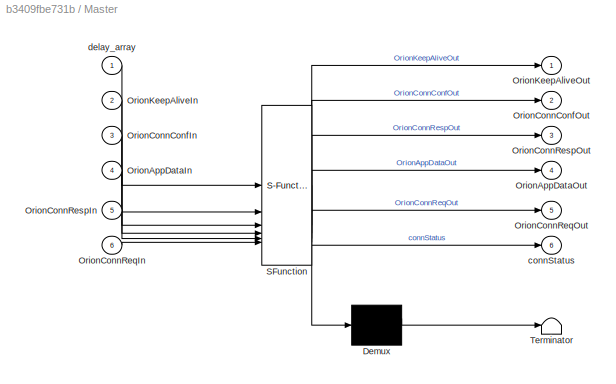
BLOCK [SubSystem] Master
  ErrorFcn = Stateflow.Translate.translate
  PermitHierarchicalResolution = ExplicitOnly
  PortSchema = {"entries":[{"content":{"sides":[{"content":{"connectorIds":["In2","In3","In5","In4","In6","In1"]},"type":"ConnectorPlacement.EquallySpacedRectSide","uuid":"93190a42-59cb-4d31-aa72-080cef5549db"},{"content":{"connectorIds":["Out1","Out2","Out3","Out4","Out5","Out6"],"side":"RIGHT"},"type":"ConnectorPlacement.EquallySpacedRectSide","uuid":"4a04e977-42e8-4d3e-8e66-86884aeb71d4"},{"content":{"side":"...<+413ch>  <repeated x8 — deduplicated; at blocks: Master, Master1, Master2, Master3, Master4, Master5, Master6, Master7>
  SFBlockType = Chart
  TreatAsAtomicUnit = on
BLOCK [Demux] Master/ Demux 
  Outputs = 1
BLOCK [S-Function] Master/ SFunction 
  EnableBusSupport = on
  FunctionName = sf_sfun
  InputPortMessageModes = n,m,m,m,m,m
  OutputPortMessageModes = n,m,m,m,m,m,n
  PortCounts = [6 7]
  SFcnIsStateOwnerBlock = off
  SFunctionDeploymentMode = off
  Tag = Stateflow S-Function 3
BLOCK [Terminator] Master/ Terminator 
BLOCK [Inport] Master/OrionAppDataIn
  Port = 4
BLOCK [Outport] Master/OrionAppDataOut
  Port = 4
BLOCK [Inport] Master/OrionConnConfIn
  Port = 3
BLOCK [Outport] Master/OrionConnConfOut
  Port = 2
BLOCK [Inport] Master/OrionConnReqIn
  Port = 6
BLOCK [Outport] Master/OrionConnReqOut
  Port = 5
BLOCK [Inport] Master/OrionConnRespIn
  Port = 5
BLOCK [Outport] Master/OrionConnRespOut
  Port = 3
BLOCK [Inport] Master/OrionKeepAliveIn
  Port = 2
BLOCK [Outport] Master/OrionKeepAliveOut
BLOCK [Outport] Master/connStatus
  Port = 6
BLOCK [Inport] Master/delay_array
BLOCK [SubSystem] Master1
  ErrorFcn = Stateflow.Translate.translate
  PermitHierarchicalResolution = ExplicitOnly
  SFBlockType = Chart
  TreatAsAtomicUnit = on
BLOCK [Demux] Master1/ Demux 
  Outputs = 1
BLOCK [S-Function] Master1/ SFunction 
  EnableBusSupport = on
  FunctionName = sf_sfun
  InputPortMessageModes = n,m,m,m,m,m
  OutputPortMessageModes = n,m,m,m,m,m,n
  PortCounts = [6 7]
  SFcnIsStateOwnerBlock = off
  SFunctionDeploymentMode = off
  Tag = Stateflow S-Function 24
BLOCK [Terminator] Master1/ Terminator 
BLOCK [Inport] Master1/OrionAppDataIn
  Port = 4
BLOCK [Outport] Master1/OrionAppDataOut
  Port = 4
BLOCK [Inport] Master1/OrionConnConfIn
  Port = 3
BLOCK [Outport] Master1/OrionConnConfOut
  Port = 2
BLOCK [Inport] Master1/OrionConnReqIn
  Port = 6
BLOCK [Outport] Master1/OrionConnReqOut
  Port = 5
BLOCK [Inport] Master1/OrionConnRespIn
  Port = 5
BLOCK [Outport] Master1/OrionConnRespOut
  Port = 3
BLOCK [Inport] Master1/OrionKeepAliveIn
  Port = 2
BLOCK [Outport] Master1/OrionKeepAliveOut
BLOCK [Outport] Master1/connStatus
  Port = 6
BLOCK [Inport] Master1/delay_array
BLOCK [SubSystem] Master2
  ErrorFcn = Stateflow.Translate.translate
  PermitHierarchicalResolution = ExplicitOnly
  SFBlockType = Chart
  TreatAsAtomicUnit = on
BLOCK [Demux] Master2/ Demux 
  Outputs = 1
BLOCK [S-Function] Master2/ SFunction 
  EnableBusSupport = on
  FunctionName = sf_sfun
  InputPortMessageModes = n,m,m,m,m,m
  OutputPortMessageModes = n,m,m,m,m,m,n
  PortCounts = [6 7]
  SFcnIsStateOwnerBlock = off
  SFunctionDeploymentMode = off
  Tag = Stateflow S-Function 36
BLOCK [Terminator] Master2/ Terminator 
BLOCK [Inport] Master2/OrionAppDataIn
  Port = 4
BLOCK [Outport] Master2/OrionAppDataOut
  Port = 4
BLOCK [Inport] Master2/OrionConnConfIn
  Port = 3
BLOCK [Outport] Master2/OrionConnConfOut
  Port = 2
BLOCK [Inport] Master2/OrionConnReqIn
  Port = 6
BLOCK [Outport] Master2/OrionConnReqOut
  Port = 5
BLOCK [Inport] Master2/OrionConnRespIn
  Port = 5
BLOCK [Outport] Master2/OrionConnRespOut
  Port = 3
BLOCK [Inport] Master2/OrionKeepAliveIn
  Port = 2
BLOCK [Outport] Master2/OrionKeepAliveOut
BLOCK [Outport] Master2/connStatus
  Port = 6
BLOCK [Inport] Master2/delay_array
BLOCK [SubSystem] Master3
  ErrorFcn = Stateflow.Translate.translate
  PermitHierarchicalResolution = ExplicitOnly
  SFBlockType = Chart
  TreatAsAtomicUnit = on
BLOCK [Demux] Master3/ Demux 
  Outputs = 1
BLOCK [S-Function] Master3/ SFunction 
  EnableBusSupport = on
  FunctionName = sf_sfun
  InputPortMessageModes = n,m,m,m,m,m
  OutputPortMessageModes = n,m,m,m,m,m,n
  PortCounts = [6 7]
  SFcnIsStateOwnerBlock = off
  SFunctionDeploymentMode = off
  Tag = Stateflow S-Function 48
BLOCK [Terminator] Master3/ Terminator 
BLOCK [Inport] Master3/OrionAppDataIn
  Port = 4
BLOCK [Outport] Master3/OrionAppDataOut
  Port = 4
BLOCK [Inport] Master3/OrionConnConfIn
  Port = 3
BLOCK [Outport] Master3/OrionConnConfOut
  Port = 2
BLOCK [Inport] Master3/OrionConnReqIn
  Port = 6
BLOCK [Outport] Master3/OrionConnReqOut
  Port = 5
BLOCK [Inport] Master3/OrionConnRespIn
  Port = 5
BLOCK [Outport] Master3/OrionConnRespOut
  Port = 3
BLOCK [Inport] Master3/OrionKeepAliveIn
  Port = 2
BLOCK [Outport] Master3/OrionKeepAliveOut
BLOCK [Outport] Master3/connStatus
  Port = 6
BLOCK [Inport] Master3/delay_array
BLOCK [SubSystem] Master4
  ErrorFcn = Stateflow.Translate.translate
  PermitHierarchicalResolution = ExplicitOnly
  SFBlockType = Chart
  TreatAsAtomicUnit = on
BLOCK [Demux] Master4/ Demux 
  Outputs = 1
BLOCK [S-Function] Master4/ SFunction 
  EnableBusSupport = on
  FunctionName = sf_sfun
  InputPortMessageModes = n,m,m,m,m,m
  OutputPortMessageModes = n,m,m,m,m,m,n
  PortCounts = [6 7]
  SFcnIsStateOwnerBlock = off
  SFunctionDeploymentMode = off
  Tag = Stateflow S-Function 90
BLOCK [Terminator] Master4/ Terminator 
BLOCK [Inport] Master4/OrionAppDataIn
  Port = 4
BLOCK [Outport] Master4/OrionAppDataOut
  Port = 4
BLOCK [Inport] Master4/OrionConnConfIn
  Port = 3
BLOCK [Outport] Master4/OrionConnConfOut
  Port = 2
BLOCK [Inport] Master4/OrionConnReqIn
  Port = 6
BLOCK [Outport] Master4/OrionConnReqOut
  Port = 5
BLOCK [Inport] Master4/OrionConnRespIn
  Port = 5
BLOCK [Outport] Master4/OrionConnRespOut
  Port = 3
BLOCK [Inport] Master4/OrionKeepAliveIn
  Port = 2
BLOCK [Outport] Master4/OrionKeepAliveOut
BLOCK [Outport] Master4/connStatus
  Port = 6
BLOCK [Inport] Master4/delay_array
BLOCK [SubSystem] Master5
  ErrorFcn = Stateflow.Translate.translate
  PermitHierarchicalResolution = ExplicitOnly
  SFBlockType = Chart
  TreatAsAtomicUnit = on
BLOCK [Demux] Master5/ Demux 
  Outputs = 1
BLOCK [S-Function] Master5/ SFunction 
  EnableBusSupport = on
  FunctionName = sf_sfun
  InputPortMessageModes = n,m,m,m,m,m
  OutputPortMessageModes = n,m,m,m,m,m,n
  PortCounts = [6 7]
  SFcnIsStateOwnerBlock = off
  SFunctionDeploymentMode = off
  Tag = Stateflow S-Function 91
BLOCK [Terminator] Master5/ Terminator 
BLOCK [Inport] Master5/OrionAppDataIn
  Port = 4
BLOCK [Outport] Master5/OrionAppDataOut
  Port = 4
BLOCK [Inport] Master5/OrionConnConfIn
  Port = 3
BLOCK [Outport] Master5/OrionConnConfOut
  Port = 2
BLOCK [Inport] Master5/OrionConnReqIn
  Port = 6
BLOCK [Outport] Master5/OrionConnReqOut
  Port = 5
BLOCK [Inport] Master5/OrionConnRespIn
  Port = 5
BLOCK [Outport] Master5/OrionConnRespOut
  Port = 3
BLOCK [Inport] Master5/OrionKeepAliveIn
  Port = 2
BLOCK [Outport] Master5/OrionKeepAliveOut
BLOCK [Outport] Master5/connStatus
  Port = 6
BLOCK [Inport] Master5/delay_array
BLOCK [SubSystem] Master6
  ErrorFcn = Stateflow.Translate.translate
  PermitHierarchicalResolution = ExplicitOnly
  SFBlockType = Chart
  TreatAsAtomicUnit = on
BLOCK [Demux] Master6/ Demux 
  Outputs = 1
BLOCK [S-Function] Master6/ SFunction 
  EnableBusSupport = on
  FunctionName = sf_sfun
  InputPortMessageModes = n,m,m,m,m,m
  OutputPortMessageModes = n,m,m,m,m,m,n
  PortCounts = [6 7]
  SFcnIsStateOwnerBlock = off
  SFunctionDeploymentMode = off
  Tag = Stateflow S-Function 92
BLOCK [Terminator] Master6/ Terminator 
BLOCK [Inport] Master6/OrionAppDataIn
  Port = 4
BLOCK [Outport] Master6/OrionAppDataOut
  Port = 4
BLOCK [Inport] Master6/OrionConnConfIn
  Port = 3
BLOCK [Outport] Master6/OrionConnConfOut
  Port = 2
BLOCK [Inport] Master6/OrionConnReqIn
  Port = 6
BLOCK [Outport] Master6/OrionConnReqOut
  Port = 5
BLOCK [Inport] Master6/OrionConnRespIn
  Port = 5
BLOCK [Outport] Master6/OrionConnRespOut
  Port = 3
BLOCK [Inport] Master6/OrionKeepAliveIn
  Port = 2
BLOCK [Outport] Master6/OrionKeepAliveOut
BLOCK [Outport] Master6/connStatus
  Port = 6
BLOCK [Inport] Master6/delay_array
BLOCK [SubSystem] Master7
  ErrorFcn = Stateflow.Translate.translate
  PermitHierarchicalResolution = ExplicitOnly
  SFBlockType = Chart
  TreatAsAtomicUnit = on
BLOCK [Demux] Master7/ Demux 
  Outputs = 1
BLOCK [S-Function] Master7/ SFunction 
  EnableBusSupport = on
  FunctionName = sf_sfun
  InputPortMessageModes = n,m,m,m,m,m
  OutputPortMessageModes = n,m,m,m,m,m,n
  PortCounts = [6 7]
  SFcnIsStateOwnerBlock = off
  SFunctionDeploymentMode = off
  Tag = Stateflow S-Function 93
BLOCK [Terminator] Master7/ Terminator 
BLOCK [Inport] Master7/OrionAppDataIn
  Port = 4
BLOCK [Outport] Master7/OrionAppDataOut
  Port = 4
BLOCK [Inport] Master7/OrionConnConfIn
  Port = 3
BLOCK [Outport] Master7/OrionConnConfOut
  Port = 2
BLOCK [Inport] Master7/OrionConnReqIn
  Port = 6
BLOCK [Outport] Master7/OrionConnReqOut
  Port = 5
BLOCK [Inport] Master7/OrionConnRespIn
  Port = 5
BLOCK [Outport] Master7/OrionConnRespOut
  Port = 3
BLOCK [Inport] Master7/OrionKeepAliveIn
  Port = 2
BLOCK [Outport] Master7/OrionKeepAliveOut
BLOCK [Outport] Master7/connStatus
  Port = 6
BLOCK [Inport] Master7/delay_array
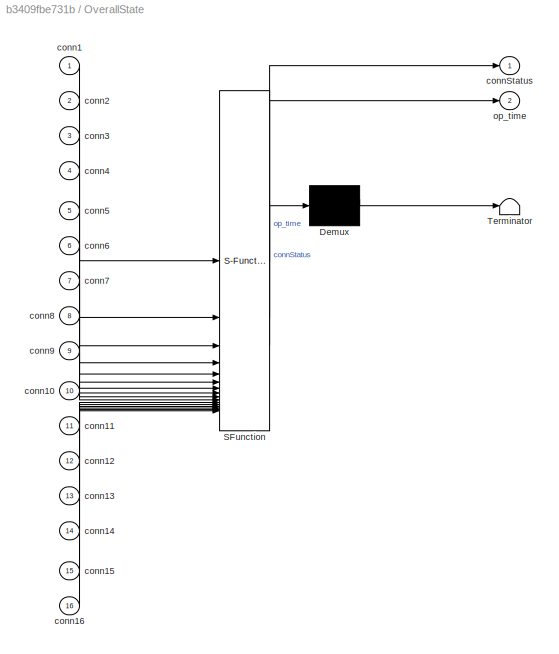
BLOCK [SubSystem] OverallState
  ErrorFcn = Stateflow.Translate.translate
  PermitHierarchicalResolution = ExplicitOnly
  SFBlockType = Chart
  TreatAsAtomicUnit = on
BLOCK [Demux] OverallState/ Demux 
  Outputs = 1
BLOCK [S-Function] OverallState/ SFunction 
  EnableBusSupport = on
  FunctionName = sf_sfun
  PortCounts = [16 3]
  SFcnIsStateOwnerBlock = off
  SFunctionDeploymentMode = off
  Tag = Stateflow S-Function 13
BLOCK [Terminator] OverallState/ Terminator 
BLOCK [Inport] OverallState/conn1
BLOCK [Inport] OverallState/conn10
  Port = 10
BLOCK [Inport] OverallState/conn11
  Port = 11
BLOCK [Inport] OverallState/conn12
  Port = 12
BLOCK [Inport] OverallState/conn13
  Port = 13
BLOCK [Inport] OverallState/conn14
  Port = 14
BLOCK [Inport] OverallState/conn15
  Port = 15
BLOCK [Inport] OverallState/conn16
  Port = 16
BLOCK [Inport] OverallState/conn2
  Port = 2
BLOCK [Inport] OverallState/conn3
  Port = 3
BLOCK [Inport] OverallState/conn4
  Port = 4
BLOCK [Inport] OverallState/conn5
  Port = 5
BLOCK [Inport] OverallState/conn6
  Port = 6
BLOCK [Inport] OverallState/conn7
  Port = 7
BLOCK [Inport] OverallState/conn8
  Port = 8
BLOCK [Inport] OverallState/conn9
  Port = 9
BLOCK [Outport] OverallState/connStatus
BLOCK [Outport] OverallState/op_time
  Port = 2
BLOCK [Scope] Scope
  Floating = off
  NumInputPorts = 3
  ScopeSpecificationString = Simulink.scopes.TimeScopeBlockCfg('CurrentConfiguration', extmgr.ConfigurationSet(extmgr.Configuration('Core','General UI',true),extmgr.Configuration('Core','Source UI',true),extmgr.Configuration('Sources','WiredSimulink',true),extmgr.Configuration('Visuals','Time Domain',true,'SerializedDisplays',{struct('MinYLimReal','-0.25','MaxYLimReal','2.25','YLabelReal','','MinYLimMag','0.00000','MaxYLimMag...<+1329ch>
BLOCK [Scope] Scope1
  Floating = off
  NumInputPorts = 1
  ScopeSpecificationString = Simulink.scopes.TimeScopeBlockCfg('CurrentConfiguration', extmgr.ConfigurationSet(extmgr.Configuration('Core','General UI',true),extmgr.Configuration('Core','Source UI',true),extmgr.Configuration('Sources','WiredSimulink',true,'DataLoggingVariableName','ScopeData1'),extmgr.Configuration('Visuals','Time Domain',true,'SerializedDisplays',{struct('MinYLimReal','-2417.99419','MaxYLimReal','21761.94769...<+1405ch>
BLOCK [SubSystem] Slave
  ErrorFcn = Stateflow.Translate.translate
  PermitHierarchicalResolution = ExplicitOnly
  PortSchema = {"entries":[{"content":{"sides":[{"content":{"connectorIds":["In1","In5","In3","In2","In4","In6"]},"type":"ConnectorPlacement.EquallySpacedRectSide","uuid":"93190a42-59cb-4d31-aa72-080cef5549db"},{"content":{"connectorIds":["Out3","Out1","Out2","Out4","Out5","Out6"],"side":"RIGHT"},"type":"ConnectorPlacement.EquallySpacedRectSide","uuid":"4a04e977-42e8-4d3e-8e66-86884aeb71d4"},{"content":{"side":"...<+287ch>  <repeated x8 — deduplicated; at blocks: Slave, Slave1, Slave2, Slave3, Slave4, Slave5, Slave6, Slave7>
  SFBlockType = Chart
  TreatAsAtomicUnit = on
BLOCK [Demux] Slave/ Demux 
  Outputs = 1
BLOCK [S-Function] Slave/ SFunction 
  EnableBusSupport = on
  FunctionName = sf_sfun
  InputPortMessageModes = m,m,m,m,m,n
  OutputPortMessageModes = n,m,m,m,m,m,n
  PortCounts = [6 7]
  SFcnIsStateOwnerBlock = off
  SFunctionDeploymentMode = off
  Tag = Stateflow S-Function 8
BLOCK [Terminator] Slave/ Terminator 
BLOCK [Inport] Slave/OrionAppDataIn
  Port = 2
BLOCK [Outport] Slave/OrionAppDataOut
  Port = 4
BLOCK [Inport] Slave/OrionConnConfIn
  Port = 5
BLOCK [Outport] Slave/OrionConnConfOut
BLOCK [Inport] Slave/OrionConnReqIn
  Port = 4
BLOCK [Outport] Slave/OrionConnReqOut
  Port = 5
BLOCK [Inport] Slave/OrionConnRespIn
  Port = 3
BLOCK [Outport] Slave/OrionConnRespOut
  Port = 2
BLOCK [Inport] Slave/OrionKeepAliveIn
BLOCK [Outport] Slave/OrionKeepAliveOut
  Port = 3
BLOCK [Outport] Slave/connStatus
  Port = 6
BLOCK [Inport] Slave/delay_array
  Port = 6
BLOCK [SubSystem] Slave1
  ErrorFcn = Stateflow.Translate.translate
  PermitHierarchicalResolution = ExplicitOnly
  SFBlockType = Chart
  TreatAsAtomicUnit = on
BLOCK [Demux] Slave1/ Demux 
  Outputs = 1
BLOCK [S-Function] Slave1/ SFunction 
  EnableBusSupport = on
  FunctionName = sf_sfun
  InputPortMessageModes = m,m,m,m,m,n
  OutputPortMessageModes = n,m,m,m,m,m,n
  PortCounts = [6 7]
  SFcnIsStateOwnerBlock = off
  SFunctionDeploymentMode = off
  Tag = Stateflow S-Function 25
BLOCK [Terminator] Slave1/ Terminator 
BLOCK [Inport] Slave1/OrionAppDataIn
  Port = 2
BLOCK [Outport] Slave1/OrionAppDataOut
  Port = 4
BLOCK [Inport] Slave1/OrionConnConfIn
  Port = 5
BLOCK [Outport] Slave1/OrionConnConfOut
BLOCK [Inport] Slave1/OrionConnReqIn
  Port = 4
BLOCK [Outport] Slave1/OrionConnReqOut
  Port = 5
BLOCK [Inport] Slave1/OrionConnRespIn
  Port = 3
BLOCK [Outport] Slave1/OrionConnRespOut
  Port = 2
BLOCK [Inport] Slave1/OrionKeepAliveIn
BLOCK [Outport] Slave1/OrionKeepAliveOut
  Port = 3
BLOCK [Outport] Slave1/connStatus
  Port = 6
BLOCK [Inport] Slave1/delay_array
  Port = 6
BLOCK [SubSystem] Slave2
  ErrorFcn = Stateflow.Translate.translate
  PermitHierarchicalResolution = ExplicitOnly
  SFBlockType = Chart
  TreatAsAtomicUnit = on
BLOCK [Demux] Slave2/ Demux 
  Outputs = 1
BLOCK [S-Function] Slave2/ SFunction 
  EnableBusSupport = on
  FunctionName = sf_sfun
  InputPortMessageModes = m,m,m,m,m,n
  OutputPortMessageModes = n,m,m,m,m,m,n
  PortCounts = [6 7]
  SFcnIsStateOwnerBlock = off
  SFunctionDeploymentMode = off
  Tag = Stateflow S-Function 37
BLOCK [Terminator] Slave2/ Terminator 
BLOCK [Inport] Slave2/OrionAppDataIn
  Port = 2
BLOCK [Outport] Slave2/OrionAppDataOut
  Port = 4
BLOCK [Inport] Slave2/OrionConnConfIn
  Port = 5
BLOCK [Outport] Slave2/OrionConnConfOut
BLOCK [Inport] Slave2/OrionConnReqIn
  Port = 4
BLOCK [Outport] Slave2/OrionConnReqOut
  Port = 5
BLOCK [Inport] Slave2/OrionConnRespIn
  Port = 3
BLOCK [Outport] Slave2/OrionConnRespOut
  Port = 2
BLOCK [Inport] Slave2/OrionKeepAliveIn
BLOCK [Outport] Slave2/OrionKeepAliveOut
  Port = 3
BLOCK [Outport] Slave2/connStatus
  Port = 6
BLOCK [Inport] Slave2/delay_array
  Port = 6
BLOCK [SubSystem] Slave3
  ErrorFcn = Stateflow.Translate.translate
  PermitHierarchicalResolution = ExplicitOnly
  SFBlockType = Chart
  TreatAsAtomicUnit = on
BLOCK [Demux] Slave3/ Demux 
  Outputs = 1
BLOCK [S-Function] Slave3/ SFunction 
  EnableBusSupport = on
  FunctionName = sf_sfun
  InputPortMessageModes = m,m,m,m,m,n
  OutputPortMessageModes = n,m,m,m,m,m,n
  PortCounts = [6 7]
  SFcnIsStateOwnerBlock = off
  SFunctionDeploymentMode = off
  Tag = Stateflow S-Function 49
BLOCK [Terminator] Slave3/ Terminator 
BLOCK [Inport] Slave3/OrionAppDataIn
  Port = 2
BLOCK [Outport] Slave3/OrionAppDataOut
  Port = 4
BLOCK [Inport] Slave3/OrionConnConfIn
  Port = 5
BLOCK [Outport] Slave3/OrionConnConfOut
BLOCK [Inport] Slave3/OrionConnReqIn
  Port = 4
BLOCK [Outport] Slave3/OrionConnReqOut
  Port = 5
BLOCK [Inport] Slave3/OrionConnRespIn
  Port = 3
BLOCK [Outport] Slave3/OrionConnRespOut
  Port = 2
BLOCK [Inport] Slave3/OrionKeepAliveIn
BLOCK [Outport] Slave3/OrionKeepAliveOut
  Port = 3
BLOCK [Outport] Slave3/connStatus
  Port = 6
BLOCK [Inport] Slave3/delay_array
  Port = 6
BLOCK [SubSystem] Slave4
  ErrorFcn = Stateflow.Translate.translate
  PermitHierarchicalResolution = ExplicitOnly
  SFBlockType = Chart
  TreatAsAtomicUnit = on
BLOCK [Demux] Slave4/ Demux 
  Outputs = 1
BLOCK [S-Function] Slave4/ SFunction 
  EnableBusSupport = on
  FunctionName = sf_sfun
  InputPortMessageModes = m,m,m,m,m,n
  OutputPortMessageModes = n,m,m,m,m,m,n
  PortCounts = [6 7]
  SFcnIsStateOwnerBlock = off
  SFunctionDeploymentMode = off
  Tag = Stateflow S-Function 94
BLOCK [Terminator] Slave4/ Terminator 
BLOCK [Inport] Slave4/OrionAppDataIn
  Port = 2
BLOCK [Outport] Slave4/OrionAppDataOut
  Port = 4
BLOCK [Inport] Slave4/OrionConnConfIn
  Port = 5
BLOCK [Outport] Slave4/OrionConnConfOut
BLOCK [Inport] Slave4/OrionConnReqIn
  Port = 4
BLOCK [Outport] Slave4/OrionConnReqOut
  Port = 5
BLOCK [Inport] Slave4/OrionConnRespIn
  Port = 3
BLOCK [Outport] Slave4/OrionConnRespOut
  Port = 2
BLOCK [Inport] Slave4/OrionKeepAliveIn
BLOCK [Outport] Slave4/OrionKeepAliveOut
  Port = 3
BLOCK [Outport] Slave4/connStatus
  Port = 6
BLOCK [Inport] Slave4/delay_array
  Port = 6
BLOCK [SubSystem] Slave5
  ErrorFcn = Stateflow.Translate.translate
  PermitHierarchicalResolution = ExplicitOnly
  SFBlockType = Chart
  TreatAsAtomicUnit = on
BLOCK [Demux] Slave5/ Demux 
  Outputs = 1
BLOCK [S-Function] Slave5/ SFunction 
  EnableBusSupport = on
  FunctionName = sf_sfun
  InputPortMessageModes = m,m,m,m,m,n
  OutputPortMessageModes = n,m,m,m,m,m,n
  PortCounts = [6 7]
  SFcnIsStateOwnerBlock = off
  SFunctionDeploymentMode = off
  Tag = Stateflow S-Function 95
BLOCK [Terminator] Slave5/ Terminator 
BLOCK [Inport] Slave5/OrionAppDataIn
  Port = 2
BLOCK [Outport] Slave5/OrionAppDataOut
  Port = 4
BLOCK [Inport] Slave5/OrionConnConfIn
  Port = 5
BLOCK [Outport] Slave5/OrionConnConfOut
BLOCK [Inport] Slave5/OrionConnReqIn
  Port = 4
BLOCK [Outport] Slave5/OrionConnReqOut
  Port = 5
BLOCK [Inport] Slave5/OrionConnRespIn
  Port = 3
BLOCK [Outport] Slave5/OrionConnRespOut
  Port = 2
BLOCK [Inport] Slave5/OrionKeepAliveIn
BLOCK [Outport] Slave5/OrionKeepAliveOut
  Port = 3
BLOCK [Outport] Slave5/connStatus
  Port = 6
BLOCK [Inport] Slave5/delay_array
  Port = 6
BLOCK [SubSystem] Slave6
  ErrorFcn = Stateflow.Translate.translate
  PermitHierarchicalResolution = ExplicitOnly
  SFBlockType = Chart
  TreatAsAtomicUnit = on
BLOCK [Demux] Slave6/ Demux 
  Outputs = 1
BLOCK [S-Function] Slave6/ SFunction 
  EnableBusSupport = on
  FunctionName = sf_sfun
  InputPortMessageModes = m,m,m,m,m,n
  OutputPortMessageModes = n,m,m,m,m,m,n
  PortCounts = [6 7]
  SFcnIsStateOwnerBlock = off
  SFunctionDeploymentMode = off
  Tag = Stateflow S-Function 96
BLOCK [Terminator] Slave6/ Terminator 
BLOCK [Inport] Slave6/OrionAppDataIn
  Port = 2
BLOCK [Outport] Slave6/OrionAppDataOut
  Port = 4
BLOCK [Inport] Slave6/OrionConnConfIn
  Port = 5
BLOCK [Outport] Slave6/OrionConnConfOut
BLOCK [Inport] Slave6/OrionConnReqIn
  Port = 4
BLOCK [Outport] Slave6/OrionConnReqOut
  Port = 5
BLOCK [Inport] Slave6/OrionConnRespIn
  Port = 3
BLOCK [Outport] Slave6/OrionConnRespOut
  Port = 2
BLOCK [Inport] Slave6/OrionKeepAliveIn
BLOCK [Outport] Slave6/OrionKeepAliveOut
  Port = 3
BLOCK [Outport] Slave6/connStatus
  Port = 6
BLOCK [Inport] Slave6/delay_array
  Port = 6
BLOCK [SubSystem] Slave7
  ErrorFcn = Stateflow.Translate.translate
  PermitHierarchicalResolution = ExplicitOnly
  SFBlockType = Chart
  TreatAsAtomicUnit = on
BLOCK [Demux] Slave7/ Demux 
  Outputs = 1
BLOCK [S-Function] Slave7/ SFunction 
  EnableBusSupport = on
  FunctionName = sf_sfun
  InputPortMessageModes = m,m,m,m,m,n
  OutputPortMessageModes = n,m,m,m,m,m,n
  PortCounts = [6 7]
  SFcnIsStateOwnerBlock = off
  SFunctionDeploymentMode = off
  Tag = Stateflow S-Function 97
BLOCK [Terminator] Slave7/ Terminator 
BLOCK [Inport] Slave7/OrionAppDataIn
  Port = 2
BLOCK [Outport] Slave7/OrionAppDataOut
  Port = 4
BLOCK [Inport] Slave7/OrionConnConfIn
  Port = 5
BLOCK [Outport] Slave7/OrionConnConfOut
BLOCK [Inport] Slave7/OrionConnReqIn
  Port = 4
BLOCK [Outport] Slave7/OrionConnReqOut
  Port = 5
BLOCK [Inport] Slave7/OrionConnRespIn
  Port = 3
BLOCK [Outport] Slave7/OrionConnRespOut
  Port = 2
BLOCK [Inport] Slave7/OrionKeepAliveIn
BLOCK [Outport] Slave7/OrionKeepAliveOut
  Port = 3
BLOCK [Outport] Slave7/connStatus
  Port = 6
BLOCK [Inport] Slave7/delay_array
  Port = 6
BLOCK [ToWorkspace] To Workspace
  FixptAsFi = on
  MaxDataPoints = inf
  SampleTime = -1
  SaveFormat = Timeseries
  VariableName = conn_time
LINE DelaySwitch10:1 -> Slave:4
LINE DelaySwitch11:1 -> Master1:2
LINE DelaySwitch12:1 -> Slave1:4
LINE DelaySwitch13:1 -> Master1:3
LINE DelaySwitch14:1 -> Master1:5
LINE DelaySwitch15:1 -> Master1:4
LINE DelaySwitch16:1 -> Master1:6
LINE DelaySwitch17:1 -> Slave1:1
LINE DelaySwitch18:1 -> Slave1:5
LINE DelaySwitch19:1 -> Slave1:3
LINE DelaySwitch1:1 -> Master:2
LINE DelaySwitch20:1 -> Slave1:2
LINE DelaySwitch21:1 -> Master2:2
LINE DelaySwitch22:1 -> Slave2:4
LINE DelaySwitch23:1 -> Master2:3
LINE DelaySwitch24:1 -> Master2:5
LINE DelaySwitch25:1 -> Master2:4
LINE DelaySwitch26:1 -> Master2:6
LINE DelaySwitch27:1 -> Slave2:1
LINE DelaySwitch28:1 -> Slave2:5
LINE DelaySwitch29:1 -> Slave2:3
LINE DelaySwitch2:1 -> Master:3
LINE DelaySwitch30:1 -> Slave2:2
LINE DelaySwitch31:1 -> Master3:2
LINE DelaySwitch32:1 -> Slave3:4
LINE DelaySwitch33:1 -> Master3:3
LINE DelaySwitch34:1 -> Master3:5
LINE DelaySwitch35:1 -> Master3:4
LINE DelaySwitch36:1 -> Master3:6
LINE DelaySwitch37:1 -> Slave3:1
LINE DelaySwitch38:1 -> Slave3:5
LINE DelaySwitch39:1 -> Slave3:3
LINE DelaySwitch3:1 -> Master:5
LINE DelaySwitch40:1 -> Slave3:2
LINE DelaySwitch41:1 -> Master4:2
LINE DelaySwitch42:1 -> Slave4:4
LINE DelaySwitch43:1 -> Master5:2
LINE DelaySwitch44:1 -> Slave5:4
LINE DelaySwitch45:1 -> Master5:3
LINE DelaySwitch46:1 -> Master5:5
LINE DelaySwitch47:1 -> Master5:4
LINE DelaySwitch48:1 -> Master5:6
LINE DelaySwitch49:1 -> Slave5:1
LINE DelaySwitch4:1 -> Master:4
LINE DelaySwitch50:1 -> Slave5:5
LINE DelaySwitch51:1 -> Slave5:3
LINE DelaySwitch52:1 -> Master4:3
LINE DelaySwitch53:1 -> Slave5:2
LINE DelaySwitch54:1 -> Master6:2
LINE DelaySwitch55:1 -> Slave6:4
LINE DelaySwitch56:1 -> Master6:3
LINE DelaySwitch57:1 -> Master6:5
LINE DelaySwitch58:1 -> Master6:4
LINE DelaySwitch59:1 -> Master6:6
LINE DelaySwitch5:1 -> Master:6
LINE DelaySwitch60:1 -> Slave6:1
LINE DelaySwitch61:1 -> Slave6:5
LINE DelaySwitch62:1 -> Slave6:3
LINE DelaySwitch63:1 -> Master4:5
LINE DelaySwitch64:1 -> Slave6:2
LINE DelaySwitch65:1 -> Master7:2
LINE DelaySwitch66:1 -> Slave7:4
LINE DelaySwitch67:1 -> Master7:3
LINE DelaySwitch68:1 -> Master7:5
LINE DelaySwitch69:1 -> Master7:4
LINE DelaySwitch6:1 -> Slave:1
LINE DelaySwitch70:1 -> Master7:6
LINE DelaySwitch71:1 -> Slave7:1
LINE DelaySwitch72:1 -> Slave7:5
LINE DelaySwitch73:1 -> Slave7:3
LINE DelaySwitch74:1 -> Master4:4
LINE DelaySwitch75:1 -> Slave7:2
LINE DelaySwitch76:1 -> Master4:6
LINE DelaySwitch77:1 -> Slave4:1
LINE DelaySwitch78:1 -> Slave4:5
LINE DelaySwitch79:1 -> Slave4:3
LINE DelaySwitch7:1 -> Slave:5
LINE DelaySwitch80:1 -> Slave4:2
LINE DelaySwitch8:1 -> Slave:3
LINE DelaySwitch9:1 -> Slave:2
LINE From Workspace100:1 -> DelaySwitch52:1
LINE From Workspace101:1 -> Slave4:6
LINE From Workspace102:1 -> Master4:1
LINE From Workspace103:1 -> DelaySwitch43:1
LINE From Workspace104:1 -> DelaySwitch43:2
LINE From Workspace105:1 -> DelaySwitch49:1
LINE From Workspace106:1 -> DelaySwitch49:2
LINE From Workspace107:1 -> DelaySwitch50:1
LINE From Workspace108:1 -> DelaySwitch50:2
LINE From Workspace109:1 -> DelaySwitch51:1
LINE From Workspace10:1 -> DelaySwitch6:1
LINE From Workspace110:1 -> DelaySwitch51:2
LINE From Workspace111:1 -> DelaySwitch52:2
LINE From Workspace112:1 -> DelaySwitch53:1
LINE From Workspace113:1 -> DelaySwitch53:2
LINE From Workspace114:1 -> DelaySwitch44:1
LINE From Workspace115:1 -> DelaySwitch44:2
LINE From Workspace116:1 -> DelaySwitch45:1
LINE From Workspace117:1 -> Slave5:6
LINE From Workspace118:1 -> Master5:1
LINE From Workspace119:1 -> DelaySwitch45:2
LINE From Workspace11:1 -> DelaySwitch6:2
LINE From Workspace120:1 -> DelaySwitch46:1
LINE From Workspace121:1 -> DelaySwitch46:2
LINE From Workspace122:1 -> DelaySwitch63:1
LINE From Workspace123:1 -> DelaySwitch47:1
LINE From Workspace124:1 -> DelaySwitch47:2
LINE From Workspace125:1 -> DelaySwitch48:1
LINE From Workspace126:1 -> DelaySwitch48:2
LINE From Workspace127:1 -> DelaySwitch54:1
LINE From Workspace128:1 -> DelaySwitch54:2
LINE From Workspace129:1 -> DelaySwitch60:1
LINE From Workspace12:1 -> DelaySwitch7:1
LINE From Workspace130:1 -> DelaySwitch60:2
LINE From Workspace131:1 -> DelaySwitch61:1
LINE From Workspace132:1 -> DelaySwitch61:2
LINE From Workspace133:1 -> DelaySwitch63:2
LINE From Workspace134:1 -> DelaySwitch62:1
LINE From Workspace135:1 -> DelaySwitch62:2
LINE From Workspace136:1 -> DelaySwitch64:1
LINE From Workspace137:1 -> DelaySwitch64:2
LINE From Workspace138:1 -> DelaySwitch55:1
LINE From Workspace139:1 -> DelaySwitch55:2
LINE From Workspace13:1 -> DelaySwitch7:2
LINE From Workspace140:1 -> DelaySwitch56:1
LINE From Workspace141:1 -> Slave6:6
LINE From Workspace142:1 -> Master6:1
LINE From Workspace143:1 -> DelaySwitch56:2
LINE From Workspace144:1 -> DelaySwitch74:1
LINE From Workspace145:1 -> DelaySwitch57:1
LINE From Workspace146:1 -> DelaySwitch57:2
LINE From Workspace147:1 -> DelaySwitch58:1
LINE From Workspace148:1 -> DelaySwitch58:2
LINE From Workspace149:1 -> DelaySwitch59:1
LINE From Workspace14:1 -> DelaySwitch8:1
LINE From Workspace150:1 -> DelaySwitch59:2
LINE From Workspace151:1 -> DelaySwitch65:1
LINE From Workspace152:1 -> DelaySwitch65:2
LINE From Workspace153:1 -> DelaySwitch71:1
LINE From Workspace154:1 -> DelaySwitch71:2
LINE From Workspace155:1 -> DelaySwitch74:2
LINE From Workspace156:1 -> DelaySwitch72:1
LINE From Workspace157:1 -> DelaySwitch72:2
LINE From Workspace158:1 -> DelaySwitch73:1
LINE From Workspace159:1 -> DelaySwitch73:2
LINE From Workspace15:1 -> DelaySwitch8:2
LINE From Workspace160:1 -> DelaySwitch75:1
LINE From Workspace161:1 -> DelaySwitch75:2
LINE From Workspace162:1 -> DelaySwitch66:1
LINE From Workspace163:1 -> DelaySwitch66:2
LINE From Workspace164:1 -> DelaySwitch67:1
LINE From Workspace165:1 -> Slave7:6
LINE From Workspace166:1 -> DelaySwitch76:1
LINE From Workspace167:1 -> Master7:1
LINE From Workspace168:1 -> DelaySwitch67:2
LINE From Workspace169:1 -> DelaySwitch68:1
LINE From Workspace16:1 -> DelaySwitch9:1
LINE From Workspace170:1 -> DelaySwitch68:2
LINE From Workspace171:1 -> DelaySwitch69:1
LINE From Workspace172:1 -> DelaySwitch69:2
LINE From Workspace173:1 -> DelaySwitch70:1
LINE From Workspace174:1 -> DelaySwitch70:2
LINE From Workspace175:1 -> DelaySwitch76:2
LINE From Workspace17:1 -> DelaySwitch9:2
LINE From Workspace18:1 -> DelaySwitch10:1
LINE From Workspace19:1 -> DelaySwitch10:2
LINE From Workspace1:1 -> DelaySwitch1:2
LINE From Workspace20:1 -> Slave:6
LINE From Workspace21:1 -> Master:1
LINE From Workspace22:1 -> DelaySwitch11:1
LINE From Workspace23:1 -> DelaySwitch11:2
LINE From Workspace24:1 -> DelaySwitch17:1
LINE From Workspace25:1 -> DelaySwitch17:2
LINE From Workspace26:1 -> DelaySwitch18:1
LINE From Workspace27:1 -> DelaySwitch18:2
LINE From Workspace28:1 -> DelaySwitch19:1
LINE From Workspace29:1 -> DelaySwitch19:2
LINE From Workspace2:1 -> DelaySwitch2:1
LINE From Workspace30:1 -> DelaySwitch20:1
LINE From Workspace31:1 -> DelaySwitch20:2
LINE From Workspace32:1 -> DelaySwitch12:1
LINE From Workspace33:1 -> DelaySwitch12:2
LINE From Workspace34:1 -> DelaySwitch13:1
LINE From Workspace35:1 -> Slave1:6
LINE From Workspace36:1 -> Master1:1
LINE From Workspace37:1 -> DelaySwitch13:2
LINE From Workspace38:1 -> DelaySwitch14:1
LINE From Workspace39:1 -> DelaySwitch14:2
LINE From Workspace3:1 -> DelaySwitch2:2
LINE From Workspace40:1 -> DelaySwitch15:1
LINE From Workspace41:1 -> DelaySwitch15:2
LINE From Workspace42:1 -> DelaySwitch16:1
LINE From Workspace43:1 -> DelaySwitch16:2
LINE From Workspace44:1 -> DelaySwitch21:1
LINE From Workspace45:1 -> DelaySwitch21:2
LINE From Workspace46:1 -> DelaySwitch27:1
LINE From Workspace47:1 -> DelaySwitch27:2
LINE From Workspace48:1 -> DelaySwitch28:1
LINE From Workspace49:1 -> DelaySwitch28:2
LINE From Workspace4:1 -> DelaySwitch3:1
LINE From Workspace50:1 -> DelaySwitch29:1
LINE From Workspace51:1 -> DelaySwitch29:2
LINE From Workspace52:1 -> DelaySwitch30:1
LINE From Workspace53:1 -> DelaySwitch30:2
LINE From Workspace54:1 -> DelaySwitch22:1
LINE From Workspace55:1 -> DelaySwitch22:2
LINE From Workspace56:1 -> DelaySwitch23:1
LINE From Workspace57:1 -> Slave2:6
LINE From Workspace58:1 -> Master2:1
LINE From Workspace59:1 -> DelaySwitch23:2
LINE From Workspace5:1 -> DelaySwitch3:2
LINE From Workspace60:1 -> DelaySwitch24:1
LINE From Workspace61:1 -> DelaySwitch24:2
LINE From Workspace62:1 -> DelaySwitch25:1
LINE From Workspace63:1 -> DelaySwitch25:2
LINE From Workspace64:1 -> DelaySwitch26:1
LINE From Workspace65:1 -> DelaySwitch26:2
LINE From Workspace66:1 -> DelaySwitch31:1
LINE From Workspace67:1 -> DelaySwitch31:2
LINE From Workspace68:1 -> DelaySwitch37:1
LINE From Workspace69:1 -> DelaySwitch37:2
LINE From Workspace6:1 -> DelaySwitch4:1
LINE From Workspace70:1 -> DelaySwitch38:1
LINE From Workspace71:1 -> DelaySwitch38:2
LINE From Workspace72:1 -> DelaySwitch39:1
LINE From Workspace73:1 -> DelaySwitch39:2
LINE From Workspace74:1 -> DelaySwitch40:1
LINE From Workspace75:1 -> DelaySwitch40:2
LINE From Workspace76:1 -> DelaySwitch32:1
LINE From Workspace77:1 -> DelaySwitch32:2
LINE From Workspace78:1 -> DelaySwitch33:1
LINE From Workspace79:1 -> Slave3:6
LINE From Workspace7:1 -> DelaySwitch4:2
LINE From Workspace80:1 -> Master3:1
LINE From Workspace81:1 -> DelaySwitch33:2
LINE From Workspace82:1 -> DelaySwitch34:1
LINE From Workspace83:1 -> DelaySwitch34:2
LINE From Workspace84:1 -> DelaySwitch35:1
LINE From Workspace85:1 -> DelaySwitch35:2
LINE From Workspace86:1 -> DelaySwitch36:1
LINE From Workspace87:1 -> DelaySwitch36:2
LINE From Workspace88:1 -> DelaySwitch41:1
LINE From Workspace89:1 -> DelaySwitch41:2
LINE From Workspace8:1 -> DelaySwitch5:1
LINE From Workspace90:1 -> DelaySwitch77:1
LINE From Workspace91:1 -> DelaySwitch77:2
LINE From Workspace92:1 -> DelaySwitch78:1
LINE From Workspace93:1 -> DelaySwitch78:2
LINE From Workspace94:1 -> DelaySwitch79:1
LINE From Workspace95:1 -> DelaySwitch79:2
LINE From Workspace96:1 -> DelaySwitch80:1
LINE From Workspace97:1 -> DelaySwitch80:2
LINE From Workspace98:1 -> DelaySwitch42:1
LINE From Workspace99:1 -> DelaySwitch42:2
LINE From Workspace9:1 -> DelaySwitch5:2
LINE From Workspace:1 -> DelaySwitch1:1
LINE Master1:1 -> DelaySwitch17:3
LINE Master1:2 -> DelaySwitch18:3
LINE Master1:3 -> DelaySwitch19:3
LINE Master1:4 -> DelaySwitch20:3
LINE Master1:5 -> DelaySwitch12:3
LINE Master1:6 -> OverallState:3
LINE Master2:1 -> DelaySwitch27:3
LINE Master2:2 -> DelaySwitch28:3
LINE Master2:3 -> DelaySwitch29:3
LINE Master2:4 -> DelaySwitch30:3
LINE Master2:5 -> DelaySwitch22:3
LINE Master2:6 -> OverallState:5
LINE Master3:1 -> DelaySwitch37:3
LINE Master3:2 -> DelaySwitch38:3
LINE Master3:3 -> DelaySwitch39:3
LINE Master3:4 -> DelaySwitch40:3
LINE Master3:5 -> DelaySwitch32:3
LINE Master3:6 -> OverallState:7
LINE Master4:1 -> DelaySwitch77:3
LINE Master4:2 -> DelaySwitch78:3
LINE Master4:3 -> DelaySwitch79:3
LINE Master4:4 -> DelaySwitch80:3
LINE Master4:5 -> DelaySwitch42:3
LINE Master4:6 -> OverallState:9
LINE Master5:1 -> DelaySwitch49:3
LINE Master5:2 -> DelaySwitch50:3
LINE Master5:3 -> DelaySwitch51:3
LINE Master5:4 -> DelaySwitch53:3
LINE Master5:5 -> DelaySwitch44:3
LINE Master5:6 -> OverallState:11
LINE Master6:1 -> DelaySwitch60:3
LINE Master6:2 -> DelaySwitch61:3
LINE Master6:3 -> DelaySwitch62:3
LINE Master6:4 -> DelaySwitch64:3
LINE Master6:5 -> DelaySwitch55:3
LINE Master6:6 -> OverallState:13
LINE Master7:1 -> DelaySwitch71:3
LINE Master7:2 -> DelaySwitch72:3
LINE Master7:3 -> DelaySwitch73:3
LINE Master7:4 -> DelaySwitch75:3
LINE Master7:5 -> DelaySwitch66:3
LINE Master7:6 -> OverallState:16
LINE Master:1 -> DelaySwitch6:3
LINE Master:2 -> DelaySwitch7:3
LINE Master:3 -> DelaySwitch8:3
LINE Master:4 -> DelaySwitch9:3
LINE Master:5 -> DelaySwitch10:3
NET Master:6 -> OverallState:1, Scope:1
LINE OverallState:1 -> Scope:3
NET OverallState:2 -> Scope1:1, To Workspace:1
LINE Slave1:1 -> DelaySwitch13:3
LINE Slave1:2 -> DelaySwitch14:3
LINE Slave1:3 -> DelaySwitch11:3
LINE Slave1:4 -> DelaySwitch15:3
LINE Slave1:5 -> DelaySwitch16:3
LINE Slave1:6 -> OverallState:4
LINE Slave2:1 -> DelaySwitch23:3
LINE Slave2:2 -> DelaySwitch24:3
LINE Slave2:3 -> DelaySwitch21:3
LINE Slave2:4 -> DelaySwitch25:3
LINE Slave2:5 -> DelaySwitch26:3
LINE Slave2:6 -> OverallState:6
LINE Slave3:1 -> DelaySwitch33:3
LINE Slave3:2 -> DelaySwitch34:3
LINE Slave3:3 -> DelaySwitch31:3
LINE Slave3:4 -> DelaySwitch35:3
LINE Slave3:5 -> DelaySwitch36:3
LINE Slave3:6 -> OverallState:8
LINE Slave4:1 -> DelaySwitch52:3
LINE Slave4:2 -> DelaySwitch63:3
LINE Slave4:3 -> DelaySwitch41:3
LINE Slave4:4 -> DelaySwitch74:3
LINE Slave4:5 -> DelaySwitch76:3
LINE Slave4:6 -> OverallState:10
LINE Slave5:1 -> DelaySwitch45:3
LINE Slave5:2 -> DelaySwitch46:3
LINE Slave5:3 -> DelaySwitch43:3
LINE Slave5:4 -> DelaySwitch47:3
LINE Slave5:5 -> DelaySwitch48:3
LINE Slave5:6 -> OverallState:12
LINE Slave6:1 -> DelaySwitch56:3
LINE Slave6:2 -> DelaySwitch57:3
LINE Slave6:3 -> DelaySwitch54:3
LINE Slave6:4 -> DelaySwitch58:3
LINE Slave6:5 -> DelaySwitch59:3
LINE Slave6:6 -> OverallState:14
LINE Slave7:1 -> DelaySwitch67:3
LINE Slave7:2 -> DelaySwitch68:3
LINE Slave7:3 -> DelaySwitch65:3
LINE Slave7:4 -> DelaySwitch69:3
LINE Slave7:5 -> DelaySwitch70:3
LINE Slave7:6 -> OverallState:15
LINE Slave:1 -> DelaySwitch2:3
LINE Slave:2 -> DelaySwitch3:3
LINE Slave:3 -> DelaySwitch1:3
LINE Slave:4 -> DelaySwitch4:3
LINE Slave:5 -> DelaySwitch5:3
NET Slave:6 -> OverallState:2, Scope:2
note: NET lines group one-source signal fan-out (src -> all destinations, sorted); 1:1 wires keep LINE
CHART Slave3 states=7 transitions=20
  STATE_LABEL 'Connected\nentry:\nconnStatus=2;'
  STATE_LABEL 'KeepAliveSendTimeout'
  STATE_LABEL 'KeepAliveSend'
  STATE_LABEL 'after(delay_array(i)*5,msec)\n {OrionKeepAliveOut.data=0;\nsend(OrionKeepAliveOut);i = i + 1;}'
  STATE_LABEL 'SendDataIn\n{OrionAppDataOut.data=0;\nsend(OrionAppDataOut);}'
  STATE_LABEL 'KeepAliveRecieveTimeout'
  STATE_LABEL 'KeepAlineRec'
  STATE_LABEL 'OrionKeepAliveIn'
  STATE_LABEL 'OrionAppDataIn'
  STATE_LABEL 'KeepAliveSendTimeout'
  STATE_LABEL 'KeepAliveSend'
  STATE_LABEL 'after(delay_array(i)*5,msec)\n {OrionKeepAliveOut.data=0;\nsend(OrionKeepAliveOut);i = i + 1;}'
  STATE_LABEL 'SendDataIn\n{OrionAppDataOut.data=0;\nsend(OrionAppDataOut);}'
  STATE_LABEL 'KeepAliveSend'
  STATE_LABEL 'KeepAliveRecieveTimeout'
  STATE_LABEL 'KeepAlineRec'
  STATE_LABEL 'OrionKeepAliveIn'
  STATE_LABEL 'OrionAppDataIn'
  STATE_LABEL 'KeepAlineRec'
  STATE_LABEL 'Closed\nentry:\nconnStatus=0;'
  STATE_LABEL 'Connecting\nentry:\nconnStatus=1;'
CHART DelaySwitch41 states=2 transitions=5
  STATE_LABEL 'Operation'
  STATE_LABEL 'Sending'
CHART DelaySwitch42 states=2 transitions=5
  STATE_LABEL 'Operation'
  STATE_LABEL 'Sending'
CHART DelaySwitch43 states=2 transitions=5
  STATE_LABEL 'Operation'
  STATE_LABEL 'Sending'
CHART DelaySwitch44 states=2 transitions=5
  STATE_LABEL 'Operation'
  STATE_LABEL 'Sending'
CHART DelaySwitch45 states=2 transitions=5
  STATE_LABEL 'Operation'
  STATE_LABEL 'Sending'
CHART DelaySwitch46 states=2 transitions=5
  STATE_LABEL 'Operation'
  STATE_LABEL 'Sending'
CHART DelaySwitch47 states=2 transitions=5
  STATE_LABEL 'Operation'
  STATE_LABEL 'Sending'
CHART DelaySwitch48 states=2 transitions=5
  STATE_LABEL 'Operation'
  STATE_LABEL 'Sending'
CHART DelaySwitch49 states=2 transitions=5
  STATE_LABEL 'Operation'
  STATE_LABEL 'Sending'
CHART DelaySwitch50 states=2 transitions=5
  STATE_LABEL 'Operation'
  STATE_LABEL 'Sending'
CHART DelaySwitch51 states=2 transitions=5
  STATE_LABEL 'Operation'
  STATE_LABEL 'Sending'
CHART DelaySwitch52 states=2 transitions=5
  STATE_LABEL 'Operation'
  STATE_LABEL 'Sending'
CHART DelaySwitch53 states=2 transitions=5
  STATE_LABEL 'Operation'
  STATE_LABEL 'Sending'
CHART DelaySwitch54 states=2 transitions=5
  STATE_LABEL 'Operation'
  STATE_LABEL 'Sending'
CHART DelaySwitch55 states=2 transitions=5
  STATE_LABEL 'Operation'
  STATE_LABEL 'Sending'
CHART DelaySwitch56 states=2 transitions=5
  STATE_LABEL 'Operation'
  STATE_LABEL 'Sending'
CHART DelaySwitch57 states=2 transitions=5
  STATE_LABEL 'Operation'
  STATE_LABEL 'Sending'
CHART DelaySwitch58 states=2 transitions=5
  STATE_LABEL 'Operation'
  STATE_LABEL 'Sending'
CHART DelaySwitch59 states=2 transitions=5
  STATE_LABEL 'Operation'
  STATE_LABEL 'Sending'
CHART DelaySwitch60 states=2 transitions=5
  STATE_LABEL 'Operation'
  STATE_LABEL 'Sending'
CHART DelaySwitch61 states=2 transitions=5
  STATE_LABEL 'Operation'
  STATE_LABEL 'Sending'
CHART DelaySwitch62 states=2 transitions=5
  STATE_LABEL 'Operation'
  STATE_LABEL 'Sending'
CHART DelaySwitch63 states=2 transitions=5
  STATE_LABEL 'Operation'
  STATE_LABEL 'Sending'
CHART DelaySwitch3 states=2 transitions=5
  STATE_LABEL 'Operation'
  STATE_LABEL 'Sending'
CHART DelaySwitch64 states=2 transitions=5
  STATE_LABEL 'Operation'
  STATE_LABEL 'Sending'
CHART DelaySwitch65 states=2 transitions=5
  STATE_LABEL 'Operation'
  STATE_LABEL 'Sending'
CHART DelaySwitch66 states=2 transitions=5
  STATE_LABEL 'Operation'
  STATE_LABEL 'Sending'
CHART DelaySwitch67 states=2 transitions=5
  STATE_LABEL 'Operation'
  STATE_LABEL 'Sending'
CHART DelaySwitch68 states=2 transitions=5
  STATE_LABEL 'Operation'
  STATE_LABEL 'Sending'
CHART DelaySwitch69 states=2 transitions=5
  STATE_LABEL 'Operation'
  STATE_LABEL 'Sending'
CHART DelaySwitch70 states=2 transitions=5
  STATE_LABEL 'Operation'
  STATE_LABEL 'Sending'
CHART DelaySwitch71 states=2 transitions=5
  STATE_LABEL 'Operation'
  STATE_LABEL 'Sending'
CHART DelaySwitch72 states=2 transitions=5
  STATE_LABEL 'Operation'
  STATE_LABEL 'Sending'
CHART DelaySwitch73 states=2 transitions=5
  STATE_LABEL 'Operation'
  STATE_LABEL 'Sending'
CHART DelaySwitch4 states=2 transitions=5
  STATE_LABEL 'Operation'
  STATE_LABEL 'Sending'
CHART DelaySwitch74 states=2 transitions=5
  STATE_LABEL 'Operation'
  STATE_LABEL 'Sending'
CHART DelaySwitch75 states=2 transitions=5
  STATE_LABEL 'Operation'
  STATE_LABEL 'Sending'
CHART DelaySwitch76 states=2 transitions=5
  STATE_LABEL 'Operation'
  STATE_LABEL 'Sending'
CHART DelaySwitch77 states=2 transitions=5
  STATE_LABEL 'Operation'
  STATE_LABEL 'Sending'
CHART DelaySwitch78 states=2 transitions=5
  STATE_LABEL 'Operation'
  STATE_LABEL 'Sending'
CHART DelaySwitch79 states=2 transitions=5
  STATE_LABEL 'Operation'
  STATE_LABEL 'Sending'
CHART DelaySwitch80 states=2 transitions=5
  STATE_LABEL 'Operation'
  STATE_LABEL 'Sending'
CHART Master4 states=7 transitions=20
  STATE_LABEL 'Connected\nentry:\nconnStatus=2;'
  STATE_LABEL 'KeepAliveSendTimeout'
  STATE_LABEL 'KeepAliveSend'
  STATE_LABEL 'after(delay_array(i)*5,msec)\n{OrionKeepAliveOut.data=0;\nsend(OrionKeepAliveOut);\ni = i + 1;}'
  STATE_LABEL 'SendDataIn\n{OrionAppDataOut.data=0;\nsend(OrionAppDataOut);}'
  STATE_LABEL 'KeepAliveRecieveTimeout'
  STATE_LABEL 'KeepAlineRec'
  STATE_LABEL 'OrionKeepAliveIn'
  STATE_LABEL 'OrionAppDataIn'
  STATE_LABEL 'KeepAliveSendTimeout'
  STATE_LABEL 'KeepAliveSend'
  STATE_LABEL 'after(delay_array(i)*5,msec)\n{OrionKeepAliveOut.data=0;\nsend(OrionKeepAliveOut);\ni = i + 1;}'
  STATE_LABEL 'SendDataIn\n{OrionAppDataOut.data=0;\nsend(OrionAppDataOut);}'
  STATE_LABEL 'KeepAliveSend'
  STATE_LABEL 'KeepAliveRecieveTimeout'
  STATE_LABEL 'KeepAlineRec'
  STATE_LABEL 'OrionKeepAliveIn'
  STATE_LABEL 'OrionAppDataIn'
  STATE_LABEL 'KeepAlineRec'
  STATE_LABEL 'Closed\nentry:\nconnStatus=0;\n'
  STATE_LABEL 'Connecting\nentry:\nconnStatus=1;'
CHART DelaySwitch5 states=2 transitions=5
  STATE_LABEL 'Operation'
  STATE_LABEL 'Sending'
CHART Master5 states=7 transitions=20
  STATE_LABEL 'Connected\nentry:\nconnStatus=2;'
  STATE_LABEL 'KeepAliveSendTimeout'
  STATE_LABEL 'KeepAliveSend'
  STATE_LABEL 'after(delay_array(i)*5,msec)\n{OrionKeepAliveOut.data=0;\nsend(OrionKeepAliveOut);\ni = i + 1;}'
  STATE_LABEL 'SendDataIn\n{OrionAppDataOut.data=0;\nsend(OrionAppDataOut);}'
  STATE_LABEL 'KeepAliveRecieveTimeout'
  STATE_LABEL 'KeepAlineRec'
  STATE_LABEL 'OrionKeepAliveIn'
  STATE_LABEL 'OrionAppDataIn'
  STATE_LABEL 'KeepAliveSendTimeout'
  STATE_LABEL 'KeepAliveSend'
  STATE_LABEL 'after(delay_array(i)*5,msec)\n{OrionKeepAliveOut.data=0;\nsend(OrionKeepAliveOut);\ni = i + 1;}'
  STATE_LABEL 'SendDataIn\n{OrionAppDataOut.data=0;\nsend(OrionAppDataOut);}'
  STATE_LABEL 'KeepAliveSend'
  STATE_LABEL 'KeepAliveRecieveTimeout'
  STATE_LABEL 'KeepAlineRec'
  STATE_LABEL 'OrionKeepAliveIn'
  STATE_LABEL 'OrionAppDataIn'
  STATE_LABEL 'KeepAlineRec'
  STATE_LABEL 'Closed\nentry:\nconnStatus=0;\n'
  STATE_LABEL 'Connecting\nentry:\nconnStatus=1;'
CHART Master6 states=7 transitions=20
  STATE_LABEL 'Connected\nentry:\nconnStatus=2;'
  STATE_LABEL 'KeepAliveSendTimeout'
  STATE_LABEL 'KeepAliveSend'
  STATE_LABEL 'after(delay_array(i)*5,msec)\n{OrionKeepAliveOut.data=0;\nsend(OrionKeepAliveOut);\ni = i + 1;}'
  STATE_LABEL 'SendDataIn\n{OrionAppDataOut.data=0;\nsend(OrionAppDataOut);}'
  STATE_LABEL 'KeepAliveRecieveTimeout'
  STATE_LABEL 'KeepAlineRec'
  STATE_LABEL 'OrionKeepAliveIn'
  STATE_LABEL 'OrionAppDataIn'
  STATE_LABEL 'KeepAliveSendTimeout'
  STATE_LABEL 'KeepAliveSend'
  STATE_LABEL 'after(delay_array(i)*5,msec)\n{OrionKeepAliveOut.data=0;\nsend(OrionKeepAliveOut);\ni = i + 1;}'
  STATE_LABEL 'SendDataIn\n{OrionAppDataOut.data=0;\nsend(OrionAppDataOut);}'
  STATE_LABEL 'KeepAliveSend'
  STATE_LABEL 'KeepAliveRecieveTimeout'
  STATE_LABEL 'KeepAlineRec'
  STATE_LABEL 'OrionKeepAliveIn'
  STATE_LABEL 'OrionAppDataIn'
  STATE_LABEL 'KeepAlineRec'
  STATE_LABEL 'Closed\nentry:\nconnStatus=0;\n'
  STATE_LABEL 'Connecting\nentry:\nconnStatus=1;'
CHART Master7 states=7 transitions=20
  STATE_LABEL 'Connected\nentry:\nconnStatus=2;'
  STATE_LABEL 'KeepAliveSendTimeout'
  STATE_LABEL 'KeepAliveSend'
  STATE_LABEL 'after(delay_array(i)*5,msec)\n{OrionKeepAliveOut.data=0;\nsend(OrionKeepAliveOut);\ni = i + 1;}'
  STATE_LABEL 'SendDataIn\n{OrionAppDataOut.data=0;\nsend(OrionAppDataOut);}'
  STATE_LABEL 'KeepAliveRecieveTimeout'
  STATE_LABEL 'KeepAlineRec'
  STATE_LABEL 'OrionKeepAliveIn'
  STATE_LABEL 'OrionAppDataIn'
  STATE_LABEL 'KeepAliveSendTimeout'
  STATE_LABEL 'KeepAliveSend'
  STATE_LABEL 'after(delay_array(i)*5,msec)\n{OrionKeepAliveOut.data=0;\nsend(OrionKeepAliveOut);\ni = i + 1;}'
  STATE_LABEL 'SendDataIn\n{OrionAppDataOut.data=0;\nsend(OrionAppDataOut);}'
  STATE_LABEL 'KeepAliveSend'
  STATE_LABEL 'KeepAliveRecieveTimeout'
  STATE_LABEL 'KeepAlineRec'
  STATE_LABEL 'OrionKeepAliveIn'
  STATE_LABEL 'OrionAppDataIn'
  STATE_LABEL 'KeepAlineRec'
  STATE_LABEL 'Closed\nentry:\nconnStatus=0;\n'
  STATE_LABEL 'Connecting\nentry:\nconnStatus=1;'
CHART Slave4 states=7 transitions=20
  STATE_LABEL 'Connected\nentry:\nconnStatus=2;'
  STATE_LABEL 'KeepAliveSendTimeout'
  STATE_LABEL 'KeepAliveSend'
  STATE_LABEL 'after(delay_array(i)*5,msec)\n {OrionKeepAliveOut.data=0;\nsend(OrionKeepAliveOut);i = i + 1;}'
  STATE_LABEL 'SendDataIn\n{OrionAppDataOut.data=0;\nsend(OrionAppDataOut);}'
  STATE_LABEL 'KeepAliveRecieveTimeout'
  STATE_LABEL 'KeepAlineRec'
  STATE_LABEL 'OrionKeepAliveIn'
  STATE_LABEL 'OrionAppDataIn'
  STATE_LABEL 'KeepAliveSendTimeout'
  STATE_LABEL 'KeepAliveSend'
  STATE_LABEL 'after(delay_array(i)*5,msec)\n {OrionKeepAliveOut.data=0;\nsend(OrionKeepAliveOut);i = i + 1;}'
  STATE_LABEL 'SendDataIn\n{OrionAppDataOut.data=0;\nsend(OrionAppDataOut);}'
  STATE_LABEL 'KeepAliveSend'
  STATE_LABEL 'KeepAliveRecieveTimeout'
  STATE_LABEL 'KeepAlineRec'
  STATE_LABEL 'OrionKeepAliveIn'
  STATE_LABEL 'OrionAppDataIn'
  STATE_LABEL 'KeepAlineRec'
  STATE_LABEL 'Closed\nentry:\nconnStatus=0;'
  STATE_LABEL 'Connecting\nentry:\nconnStatus=1;'
CHART DelaySwitch6 states=2 transitions=5
  STATE_LABEL 'Operation'
  STATE_LABEL 'Sending'
CHART Slave5 states=7 transitions=20
  STATE_LABEL 'Connected\nentry:\nconnStatus=2;'
  STATE_LABEL 'KeepAliveSendTimeout'
  STATE_LABEL 'KeepAliveSend'
  STATE_LABEL 'after(delay_array(i)*5,msec)\n {OrionKeepAliveOut.data=0;\nsend(OrionKeepAliveOut);i = i + 1;}'
  STATE_LABEL 'SendDataIn\n{OrionAppDataOut.data=0;\nsend(OrionAppDataOut);}'
  STATE_LABEL 'KeepAliveRecieveTimeout'
  STATE_LABEL 'KeepAlineRec'
  STATE_LABEL 'OrionKeepAliveIn'
  STATE_LABEL 'OrionAppDataIn'
  STATE_LABEL 'KeepAliveSendTimeout'
  STATE_LABEL 'KeepAliveSend'
  STATE_LABEL 'after(delay_array(i)*5,msec)\n {OrionKeepAliveOut.data=0;\nsend(OrionKeepAliveOut);i = i + 1;}'
  STATE_LABEL 'SendDataIn\n{OrionAppDataOut.data=0;\nsend(OrionAppDataOut);}'
  STATE_LABEL 'KeepAliveSend'
  STATE_LABEL 'KeepAliveRecieveTimeout'
  STATE_LABEL 'KeepAlineRec'
  STATE_LABEL 'OrionKeepAliveIn'
  STATE_LABEL 'OrionAppDataIn'
  STATE_LABEL 'KeepAlineRec'
  STATE_LABEL 'Closed\nentry:\nconnStatus=0;'
  STATE_LABEL 'Connecting\nentry:\nconnStatus=1;'
CHART Slave6 states=7 transitions=20
  STATE_LABEL 'Connected\nentry:\nconnStatus=2;'
  STATE_LABEL 'KeepAliveSendTimeout'
  STATE_LABEL 'KeepAliveSend'
  STATE_LABEL 'after(delay_array(i)*5,msec)\n {OrionKeepAliveOut.data=0;\nsend(OrionKeepAliveOut);i = i + 1;}'
  STATE_LABEL 'SendDataIn\n{OrionAppDataOut.data=0;\nsend(OrionAppDataOut);}'
  STATE_LABEL 'KeepAliveRecieveTimeout'
  STATE_LABEL 'KeepAlineRec'
  STATE_LABEL 'OrionKeepAliveIn'
  STATE_LABEL 'OrionAppDataIn'
  STATE_LABEL 'KeepAliveSendTimeout'
  STATE_LABEL 'KeepAliveSend'
  STATE_LABEL 'after(delay_array(i)*5,msec)\n {OrionKeepAliveOut.data=0;\nsend(OrionKeepAliveOut);i = i + 1;}'
  STATE_LABEL 'SendDataIn\n{OrionAppDataOut.data=0;\nsend(OrionAppDataOut);}'
  STATE_LABEL 'KeepAliveSend'
  STATE_LABEL 'KeepAliveRecieveTimeout'
  STATE_LABEL 'KeepAlineRec'
  STATE_LABEL 'OrionKeepAliveIn'
  STATE_LABEL 'OrionAppDataIn'
  STATE_LABEL 'KeepAlineRec'
  STATE_LABEL 'Closed\nentry:\nconnStatus=0;'
  STATE_LABEL 'Connecting\nentry:\nconnStatus=1;'
CHART Slave7 states=7 transitions=20
  STATE_LABEL 'Connected\nentry:\nconnStatus=2;'
  STATE_LABEL 'KeepAliveSendTimeout'
  STATE_LABEL 'KeepAliveSend'
  STATE_LABEL 'after(delay_array(i)*5,msec)\n {OrionKeepAliveOut.data=0;\nsend(OrionKeepAliveOut);i = i + 1;}'
  STATE_LABEL 'SendDataIn\n{OrionAppDataOut.data=0;\nsend(OrionAppDataOut);}'
  STATE_LABEL 'KeepAliveRecieveTimeout'
  STATE_LABEL 'KeepAlineRec'
  STATE_LABEL 'OrionKeepAliveIn'
  STATE_LABEL 'OrionAppDataIn'
  STATE_LABEL 'KeepAliveSendTimeout'
  STATE_LABEL 'KeepAliveSend'
  STATE_LABEL 'after(delay_array(i)*5,msec)\n {OrionKeepAliveOut.data=0;\nsend(OrionKeepAliveOut);i = i + 1;}'
  STATE_LABEL 'SendDataIn\n{OrionAppDataOut.data=0;\nsend(OrionAppDataOut);}'
  STATE_LABEL 'KeepAliveSend'
  STATE_LABEL 'KeepAliveRecieveTimeout'
  STATE_LABEL 'KeepAlineRec'
  STATE_LABEL 'OrionKeepAliveIn'
  STATE_LABEL 'OrionAppDataIn'
  STATE_LABEL 'KeepAlineRec'
  STATE_LABEL 'Closed\nentry:\nconnStatus=0;'
  STATE_LABEL 'Connecting\nentry:\nconnStatus=1;'
CHART Slave states=7 transitions=20
  STATE_LABEL 'Connected\nentry:\nconnStatus=2;'
  STATE_LABEL 'KeepAliveSendTimeout'
  STATE_LABEL 'KeepAliveSend'
  STATE_LABEL 'after(delay_array(i)*5,msec)\n {OrionKeepAliveOut.data=0;\nsend(OrionKeepAliveOut);i = i + 1;}'
  STATE_LABEL 'SendDataIn\n{OrionAppDataOut.data=0;\nsend(OrionAppDataOut);}'
  STATE_LABEL 'KeepAliveRecieveTimeout'
  STATE_LABEL 'KeepAlineRec'
  STATE_LABEL 'OrionKeepAliveIn'
  STATE_LABEL 'OrionAppDataIn'
  STATE_LABEL 'KeepAliveSendTimeout'
  STATE_LABEL 'KeepAliveSend'
  STATE_LABEL 'after(delay_array(i)*5,msec)\n {OrionKeepAliveOut.data=0;\nsend(OrionKeepAliveOut);i = i + 1;}'
  STATE_LABEL 'SendDataIn\n{OrionAppDataOut.data=0;\nsend(OrionAppDataOut);}'
  STATE_LABEL 'KeepAliveSend'
  STATE_LABEL 'KeepAliveRecieveTimeout'
  STATE_LABEL 'KeepAlineRec'
  STATE_LABEL 'OrionKeepAliveIn'
  STATE_LABEL 'OrionAppDataIn'
  STATE_LABEL 'KeepAlineRec'
  STATE_LABEL 'Closed\nentry:\nconnStatus=0;'
  STATE_LABEL 'Connecting\nentry:\nconnStatus=1;'
CHART DelaySwitch7 states=2 transitions=5
  STATE_LABEL 'Operation'
  STATE_LABEL 'Sending'
CHART DelaySwitch8 states=2 transitions=5
  STATE_LABEL 'Operation'
  STATE_LABEL 'Sending'
CHART DelaySwitch9 states=2 transitions=5
  STATE_LABEL 'Operation'
  STATE_LABEL 'Sending'
CHART DelaySwitch10 states=2 transitions=5
  STATE_LABEL 'Operation'
  STATE_LABEL 'Sending'
CHART OverallState states=2 transitions=2
  STATE_LABEL 'NotConnected\nop_time=temporalCount(msec);'
  STATE_LABEL 'Connected\nentry:\nconnStatus=1;'
CHART DelaySwitch11 states=2 transitions=5
  STATE_LABEL 'Operation'
  STATE_LABEL 'Sending'
CHART DelaySwitch12 states=2 transitions=5
  STATE_LABEL 'Operation'
  STATE_LABEL 'Sending'
CHART DelaySwitch13 states=2 transitions=5
  STATE_LABEL 'Operation'
  STATE_LABEL 'Sending'
CHART DelaySwitch14 states=2 transitions=5
  STATE_LABEL 'Operation'
  STATE_LABEL 'Sending'
CHART DelaySwitch15 states=2 transitions=5
  STATE_LABEL 'Operation'
  STATE_LABEL 'Sending'
CHART DelaySwitch16 states=2 transitions=5
  STATE_LABEL 'Operation'
  STATE_LABEL 'Sending'
CHART DelaySwitch17 states=2 transitions=5
  STATE_LABEL 'Operation'
  STATE_LABEL 'Sending'
CHART DelaySwitch18 states=2 transitions=5
  STATE_LABEL 'Operation'
  STATE_LABEL 'Sending'
CHART DelaySwitch19 states=2 transitions=5
  STATE_LABEL 'Operation'
  STATE_LABEL 'Sending'
CHART DelaySwitch20 states=2 transitions=5
  STATE_LABEL 'Operation'
  STATE_LABEL 'Sending'
CHART Master1 states=7 transitions=20
  STATE_LABEL 'Connected\nentry:\nconnStatus=2;'
  STATE_LABEL 'KeepAliveSendTimeout'
  STATE_LABEL 'KeepAliveSend'
  STATE_LABEL 'after(delay_array(i)*5,msec)\n{OrionKeepAliveOut.data=0;\nsend(OrionKeepAliveOut);\ni = i + 1;}'
  STATE_LABEL 'SendDataIn\n{OrionAppDataOut.data=0;\nsend(OrionAppDataOut);}'
  STATE_LABEL 'KeepAliveRecieveTimeout'
  STATE_LABEL 'KeepAlineRec'
  STATE_LABEL 'OrionKeepAliveIn'
  STATE_LABEL 'OrionAppDataIn'
  STATE_LABEL 'KeepAliveSendTimeout'
  STATE_LABEL 'KeepAliveSend'
  STATE_LABEL 'after(delay_array(i)*5,msec)\n{OrionKeepAliveOut.data=0;\nsend(OrionKeepAliveOut);\ni = i + 1;}'
  STATE_LABEL 'SendDataIn\n{OrionAppDataOut.data=0;\nsend(OrionAppDataOut);}'
  STATE_LABEL 'KeepAliveSend'
  STATE_LABEL 'KeepAliveRecieveTimeout'
  STATE_LABEL 'KeepAlineRec'
  STATE_LABEL 'OrionKeepAliveIn'
  STATE_LABEL 'OrionAppDataIn'
  STATE_LABEL 'KeepAlineRec'
  STATE_LABEL 'Closed\nentry:\nconnStatus=0;\n'
  STATE_LABEL 'Connecting\nentry:\nconnStatus=1;'
CHART Slave1 states=7 transitions=20
  STATE_LABEL 'Connected\nentry:\nconnStatus=2;'
  STATE_LABEL 'KeepAliveSendTimeout'
  STATE_LABEL 'KeepAliveSend'
  STATE_LABEL 'after(delay_array(i)*5,msec)\n {OrionKeepAliveOut.data=0;\nsend(OrionKeepAliveOut);i = i + 1;}'
  STATE_LABEL 'SendDataIn\n{OrionAppDataOut.data=0;\nsend(OrionAppDataOut);}'
  STATE_LABEL 'KeepAliveRecieveTimeout'
  STATE_LABEL 'KeepAlineRec'
  STATE_LABEL 'OrionKeepAliveIn'
  STATE_LABEL 'OrionAppDataIn'
  STATE_LABEL 'KeepAliveSendTimeout'
  STATE_LABEL 'KeepAliveSend'
  STATE_LABEL 'after(delay_array(i)*5,msec)\n {OrionKeepAliveOut.data=0;\nsend(OrionKeepAliveOut);i = i + 1;}'
  STATE_LABEL 'SendDataIn\n{OrionAppDataOut.data=0;\nsend(OrionAppDataOut);}'
  STATE_LABEL 'KeepAliveSend'
  STATE_LABEL 'KeepAliveRecieveTimeout'
  STATE_LABEL 'KeepAlineRec'
  STATE_LABEL 'OrionKeepAliveIn'
  STATE_LABEL 'OrionAppDataIn'
  STATE_LABEL 'KeepAlineRec'
  STATE_LABEL 'Closed\nentry:\nconnStatus=0;'
  STATE_LABEL 'Connecting\nentry:\nconnStatus=1;'
CHART DelaySwitch21 states=2 transitions=5
  STATE_LABEL 'Operation'
  STATE_LABEL 'Sending'
CHART DelaySwitch22 states=2 transitions=5
  STATE_LABEL 'Operation'
  STATE_LABEL 'Sending'
CHART DelaySwitch23 states=2 transitions=5
  STATE_LABEL 'Operation'
  STATE_LABEL 'Sending'
CHART DelaySwitch24 states=2 transitions=5
  STATE_LABEL 'Operation'
  STATE_LABEL 'Sending'
CHART DelaySwitch25 states=2 transitions=5
  STATE_LABEL 'Operation'
  STATE_LABEL 'Sending'
CHART DelaySwitch1 states=2 transitions=5
  STATE_LABEL 'Operation'
  STATE_LABEL 'Sending'
CHART DelaySwitch26 states=2 transitions=5
  STATE_LABEL 'Operation'
  STATE_LABEL 'Sending'
CHART DelaySwitch27 states=2 transitions=5
  STATE_LABEL 'Operation'
  STATE_LABEL 'Sending'
CHART DelaySwitch28 states=2 transitions=5
  STATE_LABEL 'Operation'
  STATE_LABEL 'Sending'
CHART DelaySwitch29 states=2 transitions=5
  STATE_LABEL 'Operation'
  STATE_LABEL 'Sending'
CHART DelaySwitch30 states=2 transitions=5
  STATE_LABEL 'Operation'
  STATE_LABEL 'Sending'
CHART Master2 states=7 transitions=20
  STATE_LABEL 'Connected\nentry:\nconnStatus=2;'
  STATE_LABEL 'KeepAliveSendTimeout'
  STATE_LABEL 'KeepAliveSend'
  STATE_LABEL 'after(delay_array(i)*5,msec)\n{OrionKeepAliveOut.data=0;\nsend(OrionKeepAliveOut);\ni = i + 1;}'
  STATE_LABEL 'SendDataIn\n{OrionAppDataOut.data=0;\nsend(OrionAppDataOut);}'
  STATE_LABEL 'KeepAliveRecieveTimeout'
  STATE_LABEL 'KeepAlineRec'
  STATE_LABEL 'OrionKeepAliveIn'
  STATE_LABEL 'OrionAppDataIn'
  STATE_LABEL 'KeepAliveSendTimeout'
  STATE_LABEL 'KeepAliveSend'
  STATE_LABEL 'after(delay_array(i)*5,msec)\n{OrionKeepAliveOut.data=0;\nsend(OrionKeepAliveOut);\ni = i + 1;}'
  STATE_LABEL 'SendDataIn\n{OrionAppDataOut.data=0;\nsend(OrionAppDataOut);}'
  STATE_LABEL 'KeepAliveSend'
  STATE_LABEL 'KeepAliveRecieveTimeout'
  STATE_LABEL 'KeepAlineRec'
  STATE_LABEL 'OrionKeepAliveIn'
  STATE_LABEL 'OrionAppDataIn'
  STATE_LABEL 'KeepAlineRec'
  STATE_LABEL 'Closed\nentry:\nconnStatus=0;\n'
  STATE_LABEL 'Connecting\nentry:\nconnStatus=1;'
CHART Slave2 states=7 transitions=20
  STATE_LABEL 'Connected\nentry:\nconnStatus=2;'
  STATE_LABEL 'KeepAliveSendTimeout'
  STATE_LABEL 'KeepAliveSend'
  STATE_LABEL 'after(delay_array(i)*5,msec)\n {OrionKeepAliveOut.data=0;\nsend(OrionKeepAliveOut);i = i + 1;}'
  STATE_LABEL 'SendDataIn\n{OrionAppDataOut.data=0;\nsend(OrionAppDataOut);}'
  STATE_LABEL 'KeepAliveRecieveTimeout'
  STATE_LABEL 'KeepAlineRec'
  STATE_LABEL 'OrionKeepAliveIn'
  STATE_LABEL 'OrionAppDataIn'
  STATE_LABEL 'KeepAliveSendTimeout'
  STATE_LABEL 'KeepAliveSend'
  STATE_LABEL 'after(delay_array(i)*5,msec)\n {OrionKeepAliveOut.data=0;\nsend(OrionKeepAliveOut);i = i + 1;}'
  STATE_LABEL 'SendDataIn\n{OrionAppDataOut.data=0;\nsend(OrionAppDataOut);}'
  STATE_LABEL 'KeepAliveSend'
  STATE_LABEL 'KeepAliveRecieveTimeout'
  STATE_LABEL 'KeepAlineRec'
  STATE_LABEL 'OrionKeepAliveIn'
  STATE_LABEL 'OrionAppDataIn'
  STATE_LABEL 'KeepAlineRec'
  STATE_LABEL 'Closed\nentry:\nconnStatus=0;'
  STATE_LABEL 'Connecting\nentry:\nconnStatus=1;'
CHART DelaySwitch2 states=2 transitions=5
  STATE_LABEL 'Operation'
  STATE_LABEL 'Sending'
CHART DelaySwitch31 states=2 transitions=5
  STATE_LABEL 'Operation'
  STATE_LABEL 'Sending'
CHART DelaySwitch32 states=2 transitions=5
  STATE_LABEL 'Operation'
  STATE_LABEL 'Sending'
CHART DelaySwitch33 states=2 transitions=5
  STATE_LABEL 'Operation'
  STATE_LABEL 'Sending'
CHART DelaySwitch34 states=2 transitions=5
  STATE_LABEL 'Operation'
  STATE_LABEL 'Sending'
CHART DelaySwitch35 states=2 transitions=5
  STATE_LABEL 'Operation'
  STATE_LABEL 'Sending'
CHART DelaySwitch36 states=2 transitions=5
  STATE_LABEL 'Operation'
  STATE_LABEL 'Sending'
CHART DelaySwitch37 states=2 transitions=5
  STATE_LABEL 'Operation'
  STATE_LABEL 'Sending'
CHART DelaySwitch38 states=2 transitions=5
  STATE_LABEL 'Operation'
  STATE_LABEL 'Sending'
CHART DelaySwitch39 states=2 transitions=5
  STATE_LABEL 'Operation'
  STATE_LABEL 'Sending'
CHART Master states=7 transitions=20
  STATE_LABEL 'Connected\nentry:\nconnStatus=2;'
  STATE_LABEL 'KeepAliveSendTimeout'
  STATE_LABEL 'KeepAliveSend'
  STATE_LABEL 'after(delay_array(i)*5,msec)\n{OrionKeepAliveOut.data=0;\nsend(OrionKeepAliveOut);\ni = i + 1;}'
  STATE_LABEL 'SendDataIn\n{OrionAppDataOut.data=0;\nsend(OrionAppDataOut);}'
  STATE_LABEL 'KeepAliveRecieveTimeout'
  STATE_LABEL 'KeepAlineRec'
  STATE_LABEL 'OrionKeepAliveIn'
  STATE_LABEL 'OrionAppDataIn'
  STATE_LABEL 'KeepAliveSendTimeout'
  STATE_LABEL 'KeepAliveSend'
  STATE_LABEL 'after(delay_array(i)*5,msec)\n{OrionKeepAliveOut.data=0;\nsend(OrionKeepAliveOut);\ni = i + 1;}'
  STATE_LABEL 'SendDataIn\n{OrionAppDataOut.data=0;\nsend(OrionAppDataOut);}'
  STATE_LABEL 'KeepAliveSend'
  STATE_LABEL 'KeepAliveRecieveTimeout'
  STATE_LABEL 'KeepAlineRec'
  STATE_LABEL 'OrionKeepAliveIn'
  STATE_LABEL 'OrionAppDataIn'
  STATE_LABEL 'KeepAlineRec'
  STATE_LABEL 'Closed\nentry:\nconnStatus=0;\n'
  STATE_LABEL 'Connecting\nentry:\nconnStatus=1;'
CHART DelaySwitch40 states=2 transitions=5
  STATE_LABEL 'Operation'
  STATE_LABEL 'Sending'
CHART Master3 states=7 transitions=20
  STATE_LABEL 'Connected\nentry:\nconnStatus=2;'
  STATE_LABEL 'KeepAliveSendTimeout'
  STATE_LABEL 'KeepAliveSend'
  STATE_LABEL 'after(delay_array(i)*5,msec)\n{OrionKeepAliveOut.data=0;\nsend(OrionKeepAliveOut);\ni = i + 1;}'
  STATE_LABEL 'SendDataIn\n{OrionAppDataOut.data=0;\nsend(OrionAppDataOut);}'
  STATE_LABEL 'KeepAliveRecieveTimeout'
  STATE_LABEL 'KeepAlineRec'
  STATE_LABEL 'OrionKeepAliveIn'
  STATE_LABEL 'OrionAppDataIn'
  STATE_LABEL 'KeepAliveSendTimeout'
  STATE_LABEL 'KeepAliveSend'
  STATE_LABEL 'after(delay_array(i)*5,msec)\n{OrionKeepAliveOut.data=0;\nsend(OrionKeepAliveOut);\ni = i + 1;}'
  STATE_LABEL 'SendDataIn\n{OrionAppDataOut.data=0;\nsend(OrionAppDataOut);}'
  STATE_LABEL 'KeepAliveSend'
  STATE_LABEL 'KeepAliveRecieveTimeout'
  STATE_LABEL 'KeepAlineRec'
  STATE_LABEL 'OrionKeepAliveIn'
  STATE_LABEL 'OrionAppDataIn'
  STATE_LABEL 'KeepAlineRec'
  STATE_LABEL 'Closed\nentry:\nconnStatus=0;\n'
  STATE_LABEL 'Connecting\nentry:\nconnStatus=1;'
CHART  states=0 transitions=0
CHART  states=0 transitions=0
CHART  states=0 transitions=0
CHART  states=0 transitions=0
CHART  states=0 transitions=0
CHART  states=0 transitions=0
CHART  states=0 transitions=0
CHART  states=0 transitions=0
CHART  states=0 transitions=0
CHART  states=0 transitions=0
CHART  states=0 transitions=0
CHART  states=0 transitions=0
CHART  states=0 transitions=0
CHART  states=0 transitions=0
CHART  states=0 transitions=0
CHART  states=0 transitions=0
CHART  states=0 transitions=0
CHART  states=0 transitions=0
CHART  states=0 transitions=0
CHART  states=0 transitions=0
CHART  states=0 transitions=0
CHART  states=0 transitions=0
CHART  states=0 transitions=0
CHART  states=0 transitions=0
CHART  states=0 transitions=0
CHART  states=0 transitions=0
CHART  states=0 transitions=0
CHART  states=0 transitions=0
CHART  states=0 transitions=0
CHART  states=0 transitions=0
CHART  states=0 transitions=0
CHART  states=0 transitions=0
CHART  states=0 transitions=0
CHART  states=0 transitions=0
CHART  states=0 transitions=0
CHART  states=0 transitions=0
CHART  states=0 transitions=0
CHART  states=0 transitions=0
CHART  states=0 transitions=0
CHART  states=0 transitions=0
CHART  states=0 transitions=0
CHART  states=0 transitions=0
CHART  states=0 transitions=0
CHART  states=0 transitions=0
CHART  states=0 transitions=0
CHART  states=0 transitions=0
CHART  states=0 transitions=0
CHART  states=0 transitions=0
CHART  states=0 transitions=0
CHART  states=0 transitions=0
CHART  states=0 transitions=0
CHART  states=0 transitions=0
CHART  states=0 transitions=0
CHART  states=0 transitions=0
CHART  states=0 transitions=0
CHART  states=0 transitions=0
CHART  states=0 transitions=0
CHART  states=0 transitions=0
CHART  states=0 transitions=0
CHART  states=0 transitions=0
CHART  states=0 transitions=0
CHART  states=0 transitions=0
CHART  states=0 transitions=0
CHART  states=0 transitions=0
CHART  states=0 transitions=0
CHART  states=0 transitions=0
CHART  states=0 transitions=0
CHART  states=0 transitions=0
CHART  states=0 transitions=0
CHART  states=0 transitions=0
CHART  states=0 transitions=0
CHART  states=0 transitions=0
CHART  states=0 transitions=0
CHART  states=0 transitions=0
CHART  states=0 transitions=0
CHART  states=0 transitions=0
CHART  states=0 transitions=0
CHART  states=0 transitions=0
CHART  states=0 transitions=0
CHART  states=0 transitions=0
CHART  states=0 transitions=0
CHART  states=0 transitions=0
CHART  states=0 transitions=0
CHART  states=0 transitions=0
CHART  states=0 transitions=0
CHART  states=0 transitions=0
CHART  states=0 transitions=0
CHART  states=0 transitions=0
CHART  states=0 transitions=0
CHART  states=0 transitions=0
CHART  states=0 transitions=0
CHART  states=0 transitions=0
CHART  states=0 transitions=0
CHART  states=0 transitions=0
CHART  states=0 transitions=0
CHART  states=0 transitions=0
CHART  states=0 transitions=0
